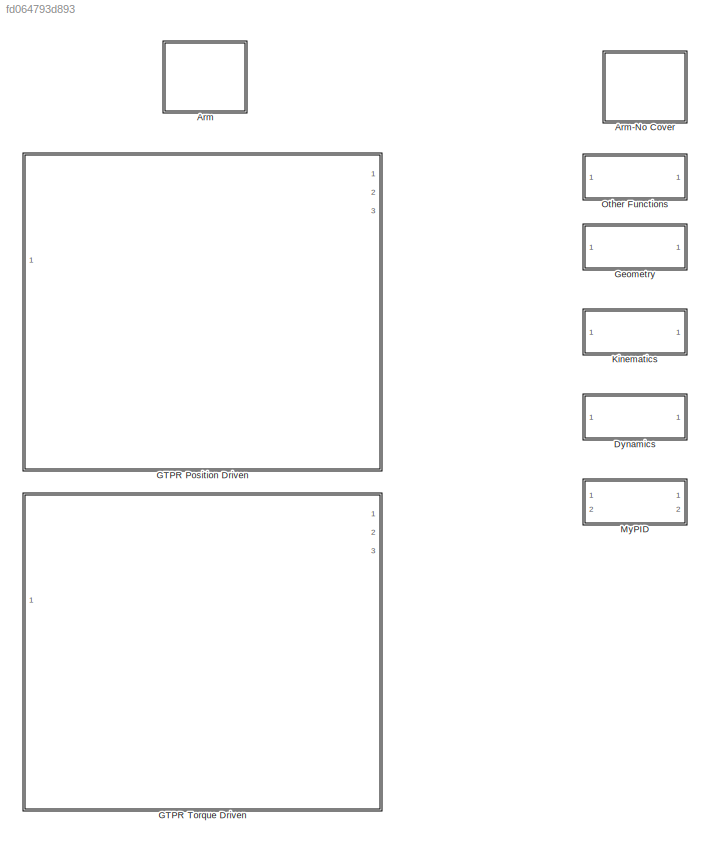
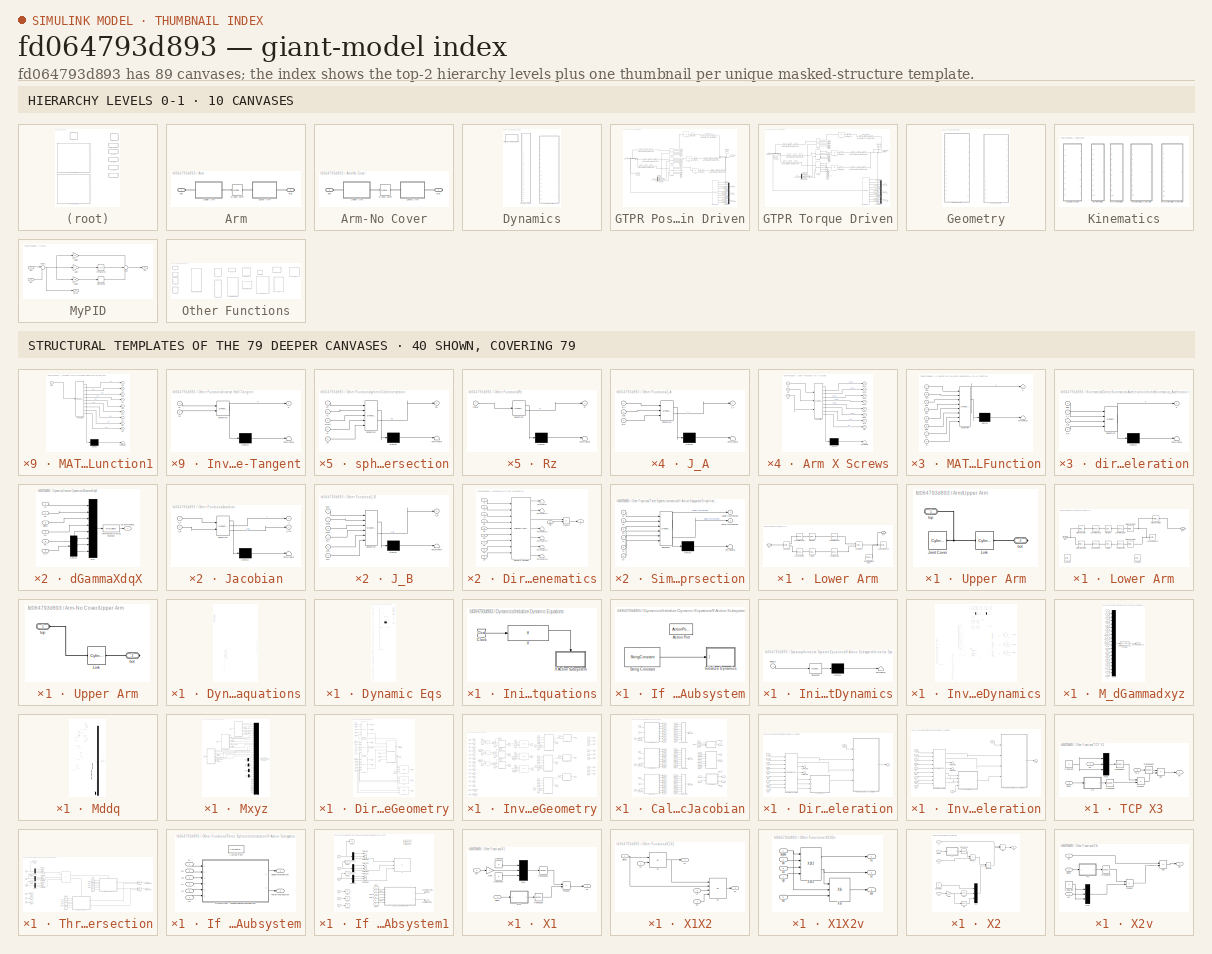
[diagram: thumbnail index - top-2 hierarchy levels (10 canvases) + 40 structural-template representatives of the remaining 79 canvases]
MODEL slx_fd064793d893
KIND library
CONFIG AbsTol = auto
CONFIG EnableMultiTasking = off
CONFIG FixedStep = auto
CONFIG MaxStep = auto
CONFIG MinStep = auto
CONFIG RelTol = 1e-3
CONFIG SampleTimeConstraint = Unconstrained
CONFIG SolverName = VariableStepAuto
CONFIG StartTime = 0.0
CONFIG StopTime = 10.0
BLOCK [SubSystem] Arm
  Ports = [0, 0, 0, 0, 0, 1, 1]
  RequestExecContextInheritance = off
BLOCK [SubSystem] Arm-No Cover
  Commented = on
  Ports = [0, 0, 0, 0, 0, 1, 1]
  RequestExecContextInheritance = off
BLOCK [PMIOPort] Arm-No Cover/Bot
  Port = 2
  Side = Right
BLOCK [Reference] Arm-No Cover/Elbow Joint  REF=sm_lib/Joints/Revolute Joint
  Ports = [0, 0, 0, 0, 0, 1, 1]
  SourceBlock = sm_lib/Joints/Revolute Joint
  SourceProductBaseCode = MS
  SourceType = Revolute Joint
BLOCK [SubSystem] Arm-No Cover/Lower Arm
  Ports = [0, 0, 0, 0, 0, 1, 1]
  RequestExecContextInheritance = off
BLOCK [Reference] Arm-No Cover/Lower Arm/Four Bar Joint 4  REF=sm_lib/Joints/Revolute Joint
  Ports = [0, 0, 0, 0, 0, 1, 1]
  SourceBlock = sm_lib/Joints/Revolute Joint
  SourceProductBaseCode = MS
  SourceType = Revolute Joint
BLOCK [Reference] Arm-No Cover/Lower Arm/Left Link  REF=sm_lib/Body Elements/Cylindrical Solid
  Ports = [0, 0, 0, 0, 0, 1, 1]
  SourceBlock = sm_lib/Body Elements/Cylindrical Solid
  SourceProductBaseCode = MS
  SourceType = Cylindrical Solid
BLOCK [Reference] Arm-No Cover/Lower Arm/Lower Joint Cover  REF=sm_lib/Body Elements/Cylindrical Solid
  Commented = on
  Ports = [0, 0, 0, 0, 0, 0, 1]
  SourceBlock = sm_lib/Body Elements/Cylindrical Solid
  SourceProductBaseCode = MS
  SourceType = Cylindrical Solid
BLOCK [Reference] Arm-No Cover/Lower Arm/Lower Link  REF=sm_lib/Body Elements/Cylindrical Solid
  Commented = on
  Ports = [0, 0, 0, 0, 0, 2, 1]
  SourceBlock = sm_lib/Body Elements/Cylindrical Solid
  SourceProductBaseCode = MS
  SourceType = Cylindrical Solid
BLOCK [Reference] Arm-No Cover/Lower Arm/Lower Right Joint  REF=sm_lib/Joints/Revolute Joint
  Ports = [0, 0, 0, 0, 0, 1, 1]
  SourceBlock = sm_lib/Joints/Revolute Joint
  SourceProductBaseCode = MS
  SourceType = Revolute Joint
BLOCK [Reference] Arm-No Cover/Lower Arm/Right Link  REF=sm_lib/Body Elements/Cylindrical Solid
  Ports = [0, 0, 0, 0, 0, 1, 1]
  SourceBlock = sm_lib/Body Elements/Cylindrical Solid
  SourceProductBaseCode = MS
  SourceType = Cylindrical Solid
BLOCK [Reference] Arm-No Cover/Lower Arm/Rigid Transform  REF=sm_lib/Frames and
Transforms/Rigid
Transform
  Ports = [0, 0, 0, 0, 0, 1, 1]
  SourceBlock = sm_lib/Frames and\nTransforms/Rigid\nTransform
  SourceProductBaseCode = MS
  SourceType = Rigid\nTransform
BLOCK [Reference] Arm-No Cover/Lower Arm/Rigid Transform1  REF=sm_lib/Frames and
Transforms/Rigid
Transform
  Ports = [0, 0, 0, 0, 0, 1, 1]
  SourceBlock = sm_lib/Frames and\nTransforms/Rigid\nTransform
  SourceProductBaseCode = MS
  SourceType = Rigid\nTransform
BLOCK [Reference] Arm-No Cover/Lower Arm/Rigid Transform2  REF=sm_lib/Frames and
Transforms/Rigid
Transform
  Ports = [0, 0, 0, 0, 0, 1, 1]
  SourceBlock = sm_lib/Frames and\nTransforms/Rigid\nTransform
  SourceProductBaseCode = MS
  SourceType = Rigid\nTransform
BLOCK [Reference] Arm-No Cover/Lower Arm/Rigid Transform3  REF=sm_lib/Frames and
Transforms/Rigid
Transform
  Ports = [0, 0, 0, 0, 0, 1, 1]
  SourceBlock = sm_lib/Frames and\nTransforms/Rigid\nTransform
  SourceProductBaseCode = MS
  SourceType = Rigid\nTransform
BLOCK [Reference] Arm-No Cover/Lower Arm/Rigid Transform4  REF=sm_lib/Frames and
Transforms/Rigid
Transform
  Ports = [0, 0, 0, 0, 0, 1, 1]
  SourceBlock = sm_lib/Frames and\nTransforms/Rigid\nTransform
  SourceProductBaseCode = MS
  SourceType = Rigid\nTransform
BLOCK [Reference] Arm-No Cover/Lower Arm/Upper Left Joint  REF=sm_lib/Joints/Revolute Joint
  Ports = [0, 0, 0, 0, 0, 1, 1]
  SourceBlock = sm_lib/Joints/Revolute Joint
  SourceProductBaseCode = MS
  SourceType = Revolute Joint
BLOCK [Reference] Arm-No Cover/Lower Arm/Upper Link  REF=sm_lib/Body Elements/Cylindrical Solid
  Commented = on
  Ports = [0, 0, 0, 0, 0, 2, 1]
  SourceBlock = sm_lib/Body Elements/Cylindrical Solid
  SourceProductBaseCode = MS
  SourceType = Cylindrical Solid
BLOCK [Reference] Arm-No Cover/Lower Arm/Upper Right Joint  REF=sm_lib/Joints/Revolute Joint
  Ports = [0, 0, 0, 0, 0, 1, 1]
  SourceBlock = sm_lib/Joints/Revolute Joint
  SourceProductBaseCode = MS
  SourceType = Revolute Joint
BLOCK [PMIOPort] Arm-No Cover/Lower Arm/bot
  Side = Right
BLOCK [PMIOPort] Arm-No Cover/Lower Arm/top
  Port = 2
  Side = Left
BLOCK [PMIOPort] Arm-No Cover/Top
  Side = Left
BLOCK [SubSystem] Arm-No Cover/Upper Arm
  Ports = [0, 0, 0, 0, 0, 1, 1]
  RequestExecContextInheritance = off
BLOCK [Reference] Arm-No Cover/Upper Arm/ Link  REF=sm_lib/Body Elements/Cylindrical Solid
  Ports = [0, 0, 0, 0, 0, 1, 1]
  SourceBlock = sm_lib/Body Elements/Cylindrical Solid
  SourceProductBaseCode = MS
  SourceType = Cylindrical Solid
BLOCK [PMIOPort] Arm-No Cover/Upper Arm/bot
  Port = 2
  Side = Right
BLOCK [PMIOPort] Arm-No Cover/Upper Arm/top
  Side = Left
BLOCK [PMIOPort] Arm/Bot
  Port = 2
  Side = Right
BLOCK [Reference] Arm/Elbow Joint  REF=sm_lib/Joints/Revolute Joint
  Ports = [0, 0, 0, 0, 0, 1, 1]
  SourceBlock = sm_lib/Joints/Revolute Joint
  SourceProductBaseCode = MS
  SourceType = Revolute Joint
BLOCK [SubSystem] Arm/Lower Arm
  Ports = [0, 0, 0, 0, 0, 1, 1]
  RequestExecContextInheritance = off
BLOCK [Reference] Arm/Lower Arm/Four Bar Joint 4  REF=sm_lib/Joints/Revolute Joint
  Ports = [0, 0, 0, 0, 0, 1, 1]
  SourceBlock = sm_lib/Joints/Revolute Joint
  SourceProductBaseCode = MS
  SourceType = Revolute Joint
BLOCK [Reference] Arm/Lower Arm/General Variable Mass  REF=sm_lib/Body Elements/Variable Mass/General
Variable Mass
  Ports = [0, 0, 0, 0, 0, 0, 1]
  SourceBlock = sm_lib/Body Elements/Variable Mass/General\nVariable Mass
  SourceProductBaseCode = MS
  SourceType = General\nVariable Mass
BLOCK [Reference] Arm/Lower Arm/Left Link  REF=sm_lib/Body Elements/Cylindrical Solid
  Ports = [0, 0, 0, 0, 0, 1, 1]
  SourceBlock = sm_lib/Body Elements/Cylindrical Solid
  SourceProductBaseCode = MS
  SourceType = Cylindrical Solid
BLOCK [Reference] Arm/Lower Arm/Lower Joint Cover  REF=sm_lib/Body Elements/Cylindrical Solid
  Ports = [0, 0, 0, 0, 0, 0, 1]
  SourceBlock = sm_lib/Body Elements/Cylindrical Solid
  SourceProductBaseCode = MS
  SourceType = Cylindrical Solid
BLOCK [Reference] Arm/Lower Arm/Lower Link  REF=sm_lib/Body Elements/Cylindrical Solid
  Ports = [0, 0, 0, 0, 0, 2, 1]
  SourceBlock = sm_lib/Body Elements/Cylindrical Solid
  SourceProductBaseCode = MS
  SourceType = Cylindrical Solid
BLOCK [Reference] Arm/Lower Arm/Lower Right Joint  REF=sm_lib/Joints/Revolute Joint
  Ports = [0, 0, 0, 0, 0, 1, 1]
  SourceBlock = sm_lib/Joints/Revolute Joint
  SourceProductBaseCode = MS
  SourceType = Revolute Joint
BLOCK [Reference] Arm/Lower Arm/Right Link  REF=sm_lib/Body Elements/Cylindrical Solid
  Ports = [0, 0, 0, 0, 0, 1, 1]
  SourceBlock = sm_lib/Body Elements/Cylindrical Solid
  SourceProductBaseCode = MS
  SourceType = Cylindrical Solid
BLOCK [Reference] Arm/Lower Arm/Upper Left Joint  REF=sm_lib/Joints/Revolute Joint
  Ports = [0, 0, 0, 0, 0, 1, 1]
  SourceBlock = sm_lib/Joints/Revolute Joint
  SourceProductBaseCode = MS
  SourceType = Revolute Joint
BLOCK [Reference] Arm/Lower Arm/Upper Link  REF=sm_lib/Body Elements/Cylindrical Solid
  Ports = [0, 0, 0, 0, 0, 2, 1]
  SourceBlock = sm_lib/Body Elements/Cylindrical Solid
  SourceProductBaseCode = MS
  SourceType = Cylindrical Solid
BLOCK [Reference] Arm/Lower Arm/Upper Right Joint  REF=sm_lib/Joints/Revolute Joint
  Ports = [0, 0, 0, 0, 0, 1, 1]
  SourceBlock = sm_lib/Joints/Revolute Joint
  SourceProductBaseCode = MS
  SourceType = Revolute Joint
BLOCK [PMIOPort] Arm/Lower Arm/bot
  Side = Right
BLOCK [PMIOPort] Arm/Lower Arm/top
  Port = 2
  Side = Left
BLOCK [PMIOPort] Arm/Top
  Side = Left
BLOCK [SubSystem] Arm/Upper Arm
  Ports = [0, 0, 0, 0, 0, 1, 1]
  RequestExecContextInheritance = off
BLOCK [Reference] Arm/Upper Arm/ Link  REF=sm_lib/Body Elements/Cylindrical Solid
  Ports = [0, 0, 0, 0, 0, 1, 1]
  SourceBlock = sm_lib/Body Elements/Cylindrical Solid
  SourceProductBaseCode = MS
  SourceType = Cylindrical Solid
BLOCK [Reference] Arm/Upper Arm/Joint Cover  REF=sm_lib/Body Elements/Cylindrical Solid
  Ports = [0, 0, 0, 0, 0, 0, 1]
  SourceBlock = sm_lib/Body Elements/Cylindrical Solid
  SourceProductBaseCode = MS
  SourceType = Cylindrical Solid
BLOCK [PMIOPort] Arm/Upper Arm/bot
  Port = 2
  Side = Right
BLOCK [PMIOPort] Arm/Upper Arm/top
  Side = Left
BLOCK [SubSystem] Dynamics
  Ports = []
  RequestExecContextInheritance = off
BLOCK [SubSystem] Dynamics/DynamicEquations
  Ports = [16, 8]
  RequestExecContextInheritance = off
BLOCK [Constant] Dynamics/DynamicEquations/Constant
  SampleTime = -1
  Value = aA
BLOCK [Constant] Dynamics/DynamicEquations/Constant1
  SampleTime = -1
  Value = aB
BLOCK [Constant] Dynamics/DynamicEquations/Constant10
  SampleTime = -1
  Value = lC
BLOCK [Constant] Dynamics/DynamicEquations/Constant11
  SampleTime = -1
  Value = eA
BLOCK [Constant] Dynamics/DynamicEquations/Constant12
  SampleTime = -1
  Value = eB
BLOCK [Constant] Dynamics/DynamicEquations/Constant13
  SampleTime = -1
  Value = eC
BLOCK [Constant] Dynamics/DynamicEquations/Constant14
  SampleTime = -1
  Value = ILAu
BLOCK [Constant] Dynamics/DynamicEquations/Constant15
  SampleTime = -1
  Value = ILBu
BLOCK [Constant] Dynamics/DynamicEquations/Constant16
  SampleTime = -1
  Value = ILCu
BLOCK [Constant] Dynamics/DynamicEquations/Constant17
  SampleTime = -1
  Value = IlA
BLOCK [Constant] Dynamics/DynamicEquations/Constant18
  SampleTime = -1
  Value = IlB
BLOCK [Constant] Dynamics/DynamicEquations/Constant19
  SampleTime = -1
  Value = IlC
BLOCK [Constant] Dynamics/DynamicEquations/Constant2
  SampleTime = -1
  Value = aC
BLOCK [Constant] Dynamics/DynamicEquations/Constant20
  SampleTime = -1
  Value = mLAu
BLOCK [Constant] Dynamics/DynamicEquations/Constant21
  SampleTime = -1
  Value = mLBu
BLOCK [Constant] Dynamics/DynamicEquations/Constant22
  SampleTime = -1
  Value = mLCu
BLOCK [Constant] Dynamics/DynamicEquations/Constant23
  SampleTime = -1
  Value = mlA
BLOCK [Constant] Dynamics/DynamicEquations/Constant24
  SampleTime = -1
  Value = mlB
BLOCK [Constant] Dynamics/DynamicEquations/Constant25
  SampleTime = -1
  Value = mlC
BLOCK [Constant] Dynamics/DynamicEquations/Constant26
  SampleTime = -1
  Value = mTCP
BLOCK [Constant] Dynamics/DynamicEquations/Constant27
  SampleTime = -1
  Value = g
BLOCK [Constant] Dynamics/DynamicEquations/Constant3
  SampleTime = -1
  Value = alphaAB
BLOCK [Constant] Dynamics/DynamicEquations/Constant4
  SampleTime = -1
  Value = alphaAC
BLOCK [Constant] Dynamics/DynamicEquations/Constant5
  SampleTime = -1
  Value = LAu
BLOCK [Constant] Dynamics/DynamicEquations/Constant6
  SampleTime = -1
  Value = LBu
BLOCK [Constant] Dynamics/DynamicEquations/Constant7
  SampleTime = -1
  Value = LCu
BLOCK [Constant] Dynamics/DynamicEquations/Constant8
  SampleTime = -1
  Value = lA
BLOCK [Constant] Dynamics/DynamicEquations/Constant9
  SampleTime = -1
  Value = lB
BLOCK [SubSystem] Dynamics/DynamicEquations/Dynamic Eqs
  ErrorFcn = Stateflow.Translate.translate
  PermitHierarchicalResolution = ExplicitOnly
  Ports = [44, 8]
  RequestExecContextInheritance = off
  SFBlockType = MATLAB Function
  TreatAsAtomicUnit = on
BLOCK [Demux] Dynamics/DynamicEquations/Dynamic Eqs/ Demux 
  Outputs = 1
  Ports = [1, 1]
BLOCK [S-Function] Dynamics/DynamicEquations/Dynamic Eqs/ SFunction 
  EnableBusSupport = off
  FunctionName = sf_sfun
  PortCounts = [44 9]
  Ports = [44, 9]
  SFcnIsStateOwnerBlock = off
  SFunctionDeploymentMode = off
  Tag = Stateflow S-Function 50
BLOCK [Terminator] Dynamics/DynamicEquations/Dynamic Eqs/ Terminator 
BLOCK [Inport] Dynamics/DynamicEquations/Dynamic Eqs/Fext
  Port = 34
BLOCK [Inport] Dynamics/DynamicEquations/Dynamic Eqs/ILA
  Port = 19
BLOCK [Inport] Dynamics/DynamicEquations/Dynamic Eqs/ILB
  Port = 20
BLOCK [Inport] Dynamics/DynamicEquations/Dynamic Eqs/ILC
  Port = 21
BLOCK [Inport] Dynamics/DynamicEquations/Dynamic Eqs/IlA
  Port = 22
BLOCK [Inport] Dynamics/DynamicEquations/Dynamic Eqs/IlB
  Port = 23
BLOCK [Inport] Dynamics/DynamicEquations/Dynamic Eqs/IlC
  Port = 24
BLOCK [Inport] Dynamics/DynamicEquations/Dynamic Eqs/J11
  Port = 36
BLOCK [Inport] Dynamics/DynamicEquations/Dynamic Eqs/J12
  Port = 37
BLOCK [Inport] Dynamics/DynamicEquations/Dynamic Eqs/J13
  Port = 38
BLOCK [Inport] Dynamics/DynamicEquations/Dynamic Eqs/J21
  Port = 39
BLOCK [Inport] Dynamics/DynamicEquations/Dynamic Eqs/J22
  Port = 40
BLOCK [Inport] Dynamics/DynamicEquations/Dynamic Eqs/J23
  Port = 41
BLOCK [Inport] Dynamics/DynamicEquations/Dynamic Eqs/J31
  Port = 42
BLOCK [Inport] Dynamics/DynamicEquations/Dynamic Eqs/J32
  Port = 43
BLOCK [Inport] Dynamics/DynamicEquations/Dynamic Eqs/J33
  Port = 44
BLOCK [Inport] Dynamics/DynamicEquations/Dynamic Eqs/LA
  Port = 6
BLOCK [Inport] Dynamics/DynamicEquations/Dynamic Eqs/LB
  Port = 7
BLOCK [Inport] Dynamics/DynamicEquations/Dynamic Eqs/LC
  Port = 8
BLOCK [Outport] Dynamics/DynamicEquations/Dynamic Eqs/M
  Port = 6
BLOCK [Outport] Dynamics/DynamicEquations/Dynamic Eqs/Mddq
  Port = 2
BLOCK [Outport] Dynamics/DynamicEquations/Dynamic Eqs/Mtimesddq
  Port = 5
BLOCK [Outport] Dynamics/DynamicEquations/Dynamic Eqs/Mxyz
BLOCK [Inport] Dynamics/DynamicEquations/Dynamic Eqs/TCP
  Port = 18
BLOCK [Inport] Dynamics/DynamicEquations/Dynamic Eqs/a
  Port = 25
BLOCK [Inport] Dynamics/DynamicEquations/Dynamic Eqs/aA
BLOCK [Inport] Dynamics/DynamicEquations/Dynamic Eqs/aB
  Port = 2
BLOCK [Inport] Dynamics/DynamicEquations/Dynamic Eqs/aC
  Port = 3
BLOCK [Inport] Dynamics/DynamicEquations/Dynamic Eqs/alphaAB
  Port = 4
BLOCK [Inport] Dynamics/DynamicEquations/Dynamic Eqs/alphaAC
  Port = 5
BLOCK [Outport] Dynamics/DynamicEquations/Dynamic Eqs/dGammasdq
  Port = 3
BLOCK [Inport] Dynamics/DynamicEquations/Dynamic Eqs/ddq
  Port = 17
BLOCK [Inport] Dynamics/DynamicEquations/Dynamic Eqs/dq
  Port = 16
BLOCK [Inport] Dynamics/DynamicEquations/Dynamic Eqs/eA
  Port = 12
BLOCK [Inport] Dynamics/DynamicEquations/Dynamic Eqs/eB
  Port = 13
BLOCK [Inport] Dynamics/DynamicEquations/Dynamic Eqs/eC
  Port = 14
BLOCK [Outport] Dynamics/DynamicEquations/Dynamic Eqs/f
  Port = 7
BLOCK [Inport] Dynamics/DynamicEquations/Dynamic Eqs/g
  Port = 26
BLOCK [Inport] Dynamics/DynamicEquations/Dynamic Eqs/lA
  Port = 9
BLOCK [Inport] Dynamics/DynamicEquations/Dynamic Eqs/lB
  Port = 10
BLOCK [Inport] Dynamics/DynamicEquations/Dynamic Eqs/lC
  Port = 11
BLOCK [Outport] Dynamics/DynamicEquations/Dynamic Eqs/lambda
  Port = 4
BLOCK [Inport] Dynamics/DynamicEquations/Dynamic Eqs/mLA
  Port = 27
BLOCK [Inport] Dynamics/DynamicEquations/Dynamic Eqs/mLB
  Port = 28
BLOCK [Inport] Dynamics/DynamicEquations/Dynamic Eqs/mLC
  Port = 29
BLOCK [Inport] Dynamics/DynamicEquations/Dynamic Eqs/mTCP
  Port = 33
BLOCK [Inport] Dynamics/DynamicEquations/Dynamic Eqs/mlA
  Port = 30
BLOCK [Inport] Dynamics/DynamicEquations/Dynamic Eqs/mlB
  Port = 31
BLOCK [Inport] Dynamics/DynamicEquations/Dynamic Eqs/mlC
  Port = 32
BLOCK [Inport] Dynamics/DynamicEquations/Dynamic Eqs/q
  Port = 15
BLOCK [Outport] Dynamics/DynamicEquations/Dynamic Eqs/tau
  Port = 8
BLOCK [Inport] Dynamics/DynamicEquations/Dynamic Eqs/v
  Port = 35
BLOCK [Inport] Dynamics/DynamicEquations/Fext
  Port = 6
BLOCK [Inport] Dynamics/DynamicEquations/J11
  Port = 8
BLOCK [Inport] Dynamics/DynamicEquations/J12
  Port = 9
BLOCK [Inport] Dynamics/DynamicEquations/J13
  Port = 10
BLOCK [Inport] Dynamics/DynamicEquations/J21
  Port = 11
BLOCK [Inport] Dynamics/DynamicEquations/J22
  Port = 12
BLOCK [Inport] Dynamics/DynamicEquations/J23
  Port = 13
BLOCK [Inport] Dynamics/DynamicEquations/J31
  Port = 14
BLOCK [Inport] Dynamics/DynamicEquations/J32
  Port = 15
BLOCK [Inport] Dynamics/DynamicEquations/J33
  Port = 16
BLOCK [Outport] Dynamics/DynamicEquations/M
  Port = 6
BLOCK [Outport] Dynamics/DynamicEquations/M_dGammadxyz
BLOCK [Outport] Dynamics/DynamicEquations/M_ddq
  Port = 3
BLOCK [Outport] Dynamics/DynamicEquations/Mtimesddq
  Port = 5
BLOCK [Outport] Dynamics/DynamicEquations/Mxyz
  Port = 2
BLOCK [Inport] Dynamics/DynamicEquations/TCP
  Port = 4
BLOCK [Inport] Dynamics/DynamicEquations/a
  Port = 5
BLOCK [Inport] Dynamics/DynamicEquations/ddq
  Port = 3
BLOCK [Inport] Dynamics/DynamicEquations/dq
  Port = 2
BLOCK [Outport] Dynamics/DynamicEquations/f
  Port = 7
BLOCK [Outport] Dynamics/DynamicEquations/lambda
  Port = 4
BLOCK [Inport] Dynamics/DynamicEquations/q
BLOCK [Outport] Dynamics/DynamicEquations/tau
  Port = 8
BLOCK [Inport] Dynamics/DynamicEquations/v
  Port = 7
BLOCK [SubSystem] Dynamics/Initialize Dynamic Equations
  Commented = on
  Ports = []
  RequestExecContextInheritance = off
BLOCK [Clock] Dynamics/Initialize Dynamic Equations/Clock
  Decimation = 1
BLOCK [If] Dynamics/Initialize Dynamic Equations/If
  IfExpression = u1 == 0
  Ports = [1, 2]
BLOCK [SubSystem] Dynamics/Initialize Dynamic Equations/If Action Subsystem
  Ports = [0, 0, 0, 0, 0, 0, 0, 1]
  RequestExecContextInheritance = off
  TreatAsAtomicUnit = on
BLOCK [ActionPort] Dynamics/Initialize Dynamic Equations/If Action Subsystem/Action Port
  ActionPortLabel = if(u1 == 0)
BLOCK [SubSystem] Dynamics/Initialize Dynamic Equations/If Action Subsystem/Initialize Dynamics
  ErrorFcn = Stateflow.Translate.translate
  PermitHierarchicalResolution = ExplicitOnly
  Ports = [1]
  RequestExecContextInheritance = off
  SFBlockType = MATLAB Function
  TreatAsAtomicUnit = on
BLOCK [Demux] Dynamics/Initialize Dynamic Equations/If Action Subsystem/Initialize Dynamics/ Demux 
  Outputs = 1
  Ports = [1, 1]
BLOCK [S-Function] Dynamics/Initialize Dynamic Equations/If Action Subsystem/Initialize Dynamics/ SFunction 
  EnableBusSupport = off
  FunctionName = sf_sfun
  PortCounts = [1 1]
  Ports = [1, 1]
  SFcnIsStateOwnerBlock = off
  SFunctionDeploymentMode = off
  Tag = Stateflow S-Function 35
BLOCK [Terminator] Dynamics/Initialize Dynamic Equations/If Action Subsystem/Initialize Dynamics/ Terminator 
BLOCK [Inport] Dynamics/Initialize Dynamic Equations/If Action Subsystem/Initialize Dynamics/filepath
BLOCK [StringConstant] Dynamics/Initialize Dynamic Equations/If Action Subsystem/String Constant
  String = filepath
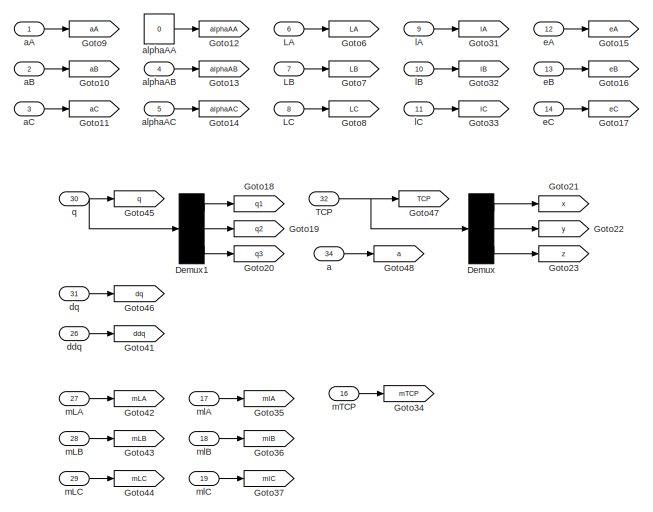
[diagram: Dynamics/Inverse Dynamics - part 1/5, top center region]
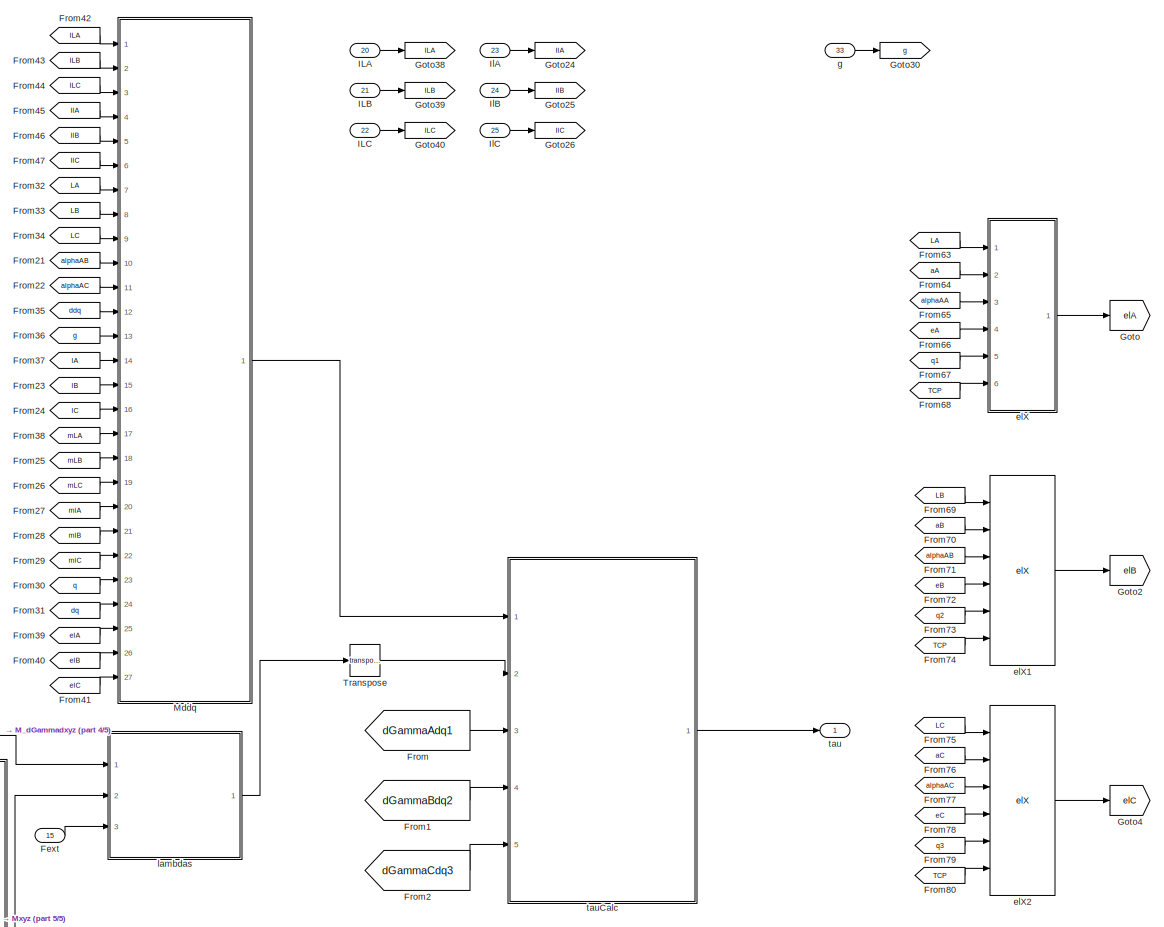
[diagram: Dynamics/Inverse Dynamics - part 2/5, central region]
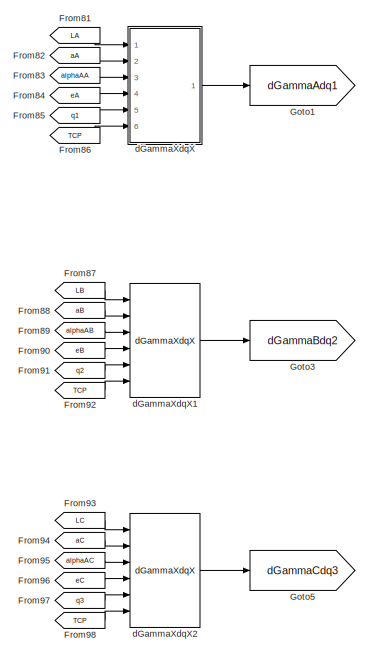
[diagram: Dynamics/Inverse Dynamics - part 3/5, middle right region]
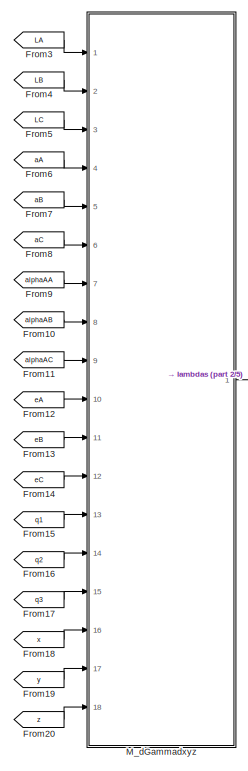
[diagram: Dynamics/Inverse Dynamics - part 4/5, middle left region]
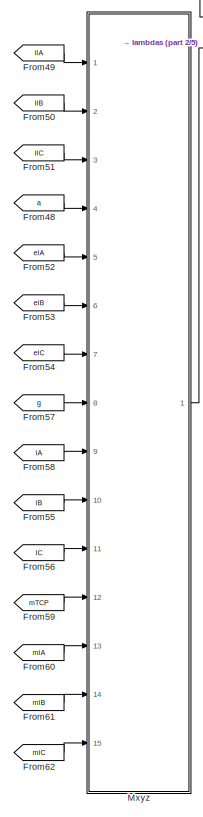
[diagram: Dynamics/Inverse Dynamics - part 5/5, bottom left region]
BLOCK [SubSystem] Dynamics/Inverse Dynamics
  Commented = on
  Ports = [34, 1]
  RequestExecContextInheritance = off
BLOCK [Demux] Dynamics/Inverse Dynamics/Demux
  Outputs = 3
  Ports = [1, 3]
BLOCK [Demux] Dynamics/Inverse Dynamics/Demux1
  Outputs = 3
  Ports = [1, 3]
BLOCK [Inport] Dynamics/Inverse Dynamics/Fext
  Port = 15
BLOCK [From] Dynamics/Inverse Dynamics/From
  GotoTag = dGammaAdq1
BLOCK [From] Dynamics/Inverse Dynamics/From1
  GotoTag = dGammaBdq2
BLOCK [From] Dynamics/Inverse Dynamics/From10
  GotoTag = alphaAB
BLOCK [From] Dynamics/Inverse Dynamics/From11
  GotoTag = alphaAC
BLOCK [From] Dynamics/Inverse Dynamics/From12
  GotoTag = eA
BLOCK [From] Dynamics/Inverse Dynamics/From13
  GotoTag = eB
BLOCK [From] Dynamics/Inverse Dynamics/From14
  GotoTag = eC
BLOCK [From] Dynamics/Inverse Dynamics/From15
  GotoTag = q1
BLOCK [From] Dynamics/Inverse Dynamics/From16
  GotoTag = q2
BLOCK [From] Dynamics/Inverse Dynamics/From17
  GotoTag = q3
BLOCK [From] Dynamics/Inverse Dynamics/From18
  GotoTag = x
BLOCK [From] Dynamics/Inverse Dynamics/From19
  GotoTag = y
BLOCK [From] Dynamics/Inverse Dynamics/From2
  GotoTag = dGammaCdq3
BLOCK [From] Dynamics/Inverse Dynamics/From20
  GotoTag = z
BLOCK [From] Dynamics/Inverse Dynamics/From21
  GotoTag = alphaAB
BLOCK [From] Dynamics/Inverse Dynamics/From22
  GotoTag = alphaAC
BLOCK [From] Dynamics/Inverse Dynamics/From23
  GotoTag = lB
BLOCK [From] Dynamics/Inverse Dynamics/From24
  GotoTag = lC
BLOCK [From] Dynamics/Inverse Dynamics/From25
  GotoTag = mLB
BLOCK [From] Dynamics/Inverse Dynamics/From26
  GotoTag = mLC
BLOCK [From] Dynamics/Inverse Dynamics/From27
  GotoTag = mlA
BLOCK [From] Dynamics/Inverse Dynamics/From28
  GotoTag = mlB
BLOCK [From] Dynamics/Inverse Dynamics/From29
  GotoTag = mlC
BLOCK [From] Dynamics/Inverse Dynamics/From3
  GotoTag = LA
BLOCK [From] Dynamics/Inverse Dynamics/From30
  GotoTag = q
BLOCK [From] Dynamics/Inverse Dynamics/From31
  GotoTag = dq
BLOCK [From] Dynamics/Inverse Dynamics/From32
  GotoTag = LA
BLOCK [From] Dynamics/Inverse Dynamics/From33
  GotoTag = LB
BLOCK [From] Dynamics/Inverse Dynamics/From34
  GotoTag = LC
BLOCK [From] Dynamics/Inverse Dynamics/From35
  GotoTag = ddq
BLOCK [From] Dynamics/Inverse Dynamics/From36
  GotoTag = g
BLOCK [From] Dynamics/Inverse Dynamics/From37
  GotoTag = lA
BLOCK [From] Dynamics/Inverse Dynamics/From38
  GotoTag = mLA
BLOCK [From] Dynamics/Inverse Dynamics/From39
  GotoTag = elA
BLOCK [From] Dynamics/Inverse Dynamics/From4
  GotoTag = LB
BLOCK [From] Dynamics/Inverse Dynamics/From40
  GotoTag = elB
BLOCK [From] Dynamics/Inverse Dynamics/From41
  GotoTag = elC
BLOCK [From] Dynamics/Inverse Dynamics/From42
  GotoTag = ILA
BLOCK [From] Dynamics/Inverse Dynamics/From43
  GotoTag = ILB
BLOCK [From] Dynamics/Inverse Dynamics/From44
  GotoTag = ILC
BLOCK [From] Dynamics/Inverse Dynamics/From45
  GotoTag = IlA
BLOCK [From] Dynamics/Inverse Dynamics/From46
  GotoTag = IlB
BLOCK [From] Dynamics/Inverse Dynamics/From47
  GotoTag = IlC
BLOCK [From] Dynamics/Inverse Dynamics/From48
  GotoTag = a
BLOCK [From] Dynamics/Inverse Dynamics/From49
  GotoTag = IlA
BLOCK [From] Dynamics/Inverse Dynamics/From5
  GotoTag = LC
BLOCK [From] Dynamics/Inverse Dynamics/From50
  GotoTag = IlB
BLOCK [From] Dynamics/Inverse Dynamics/From51
  GotoTag = IlC
BLOCK [From] Dynamics/Inverse Dynamics/From52
  GotoTag = elA
BLOCK [From] Dynamics/Inverse Dynamics/From53
  GotoTag = elB
BLOCK [From] Dynamics/Inverse Dynamics/From54
  GotoTag = elC
BLOCK [From] Dynamics/Inverse Dynamics/From55
  GotoTag = lB
BLOCK [From] Dynamics/Inverse Dynamics/From56
  GotoTag = lC
BLOCK [From] Dynamics/Inverse Dynamics/From57
  GotoTag = g
BLOCK [From] Dynamics/Inverse Dynamics/From58
  GotoTag = lA
BLOCK [From] Dynamics/Inverse Dynamics/From59
  GotoTag = mTCP
BLOCK [From] Dynamics/Inverse Dynamics/From6
  GotoTag = aA
BLOCK [From] Dynamics/Inverse Dynamics/From60
  GotoTag = mlA
BLOCK [From] Dynamics/Inverse Dynamics/From61
  GotoTag = mlB
BLOCK [From] Dynamics/Inverse Dynamics/From62
  GotoTag = mlC
BLOCK [From] Dynamics/Inverse Dynamics/From63
  GotoTag = LA
BLOCK [From] Dynamics/Inverse Dynamics/From64
  GotoTag = aA
BLOCK [From] Dynamics/Inverse Dynamics/From65
  GotoTag = alphaAA
BLOCK [From] Dynamics/Inverse Dynamics/From66
  GotoTag = eA
BLOCK [From] Dynamics/Inverse Dynamics/From67
  GotoTag = q1
BLOCK [From] Dynamics/Inverse Dynamics/From68
  GotoTag = TCP
BLOCK [From] Dynamics/Inverse Dynamics/From69
  GotoTag = LB
BLOCK [From] Dynamics/Inverse Dynamics/From7
  GotoTag = aB
BLOCK [From] Dynamics/Inverse Dynamics/From70
  GotoTag = aB
BLOCK [From] Dynamics/Inverse Dynamics/From71
  GotoTag = alphaAB
BLOCK [From] Dynamics/Inverse Dynamics/From72
  GotoTag = eB
BLOCK [From] Dynamics/Inverse Dynamics/From73
  GotoTag = q2
BLOCK [From] Dynamics/Inverse Dynamics/From74
  GotoTag = TCP
BLOCK [From] Dynamics/Inverse Dynamics/From75
  GotoTag = LC
BLOCK [From] Dynamics/Inverse Dynamics/From76
  GotoTag = aC
BLOCK [From] Dynamics/Inverse Dynamics/From77
  GotoTag = alphaAC
BLOCK [From] Dynamics/Inverse Dynamics/From78
  GotoTag = eC
BLOCK [From] Dynamics/Inverse Dynamics/From79
  GotoTag = q3
BLOCK [From] Dynamics/Inverse Dynamics/From8
  GotoTag = aC
BLOCK [From] Dynamics/Inverse Dynamics/From80
  GotoTag = TCP
BLOCK [From] Dynamics/Inverse Dynamics/From81
  GotoTag = LA
BLOCK [From] Dynamics/Inverse Dynamics/From82
  GotoTag = aA
BLOCK [From] Dynamics/Inverse Dynamics/From83
  GotoTag = alphaAA
BLOCK [From] Dynamics/Inverse Dynamics/From84
  GotoTag = eA
BLOCK [From] Dynamics/Inverse Dynamics/From85
  GotoTag = q1
BLOCK [From] Dynamics/Inverse Dynamics/From86
  GotoTag = TCP
BLOCK [From] Dynamics/Inverse Dynamics/From87
  GotoTag = LB
BLOCK [From] Dynamics/Inverse Dynamics/From88
  GotoTag = aB
BLOCK [From] Dynamics/Inverse Dynamics/From89
  GotoTag = alphaAB
BLOCK [From] Dynamics/Inverse Dynamics/From9
  GotoTag = alphaAA
BLOCK [From] Dynamics/Inverse Dynamics/From90
  GotoTag = eB
BLOCK [From] Dynamics/Inverse Dynamics/From91
  GotoTag = q2
BLOCK [From] Dynamics/Inverse Dynamics/From92
  GotoTag = TCP
BLOCK [From] Dynamics/Inverse Dynamics/From93
  GotoTag = LC
BLOCK [From] Dynamics/Inverse Dynamics/From94
  GotoTag = aC
BLOCK [From] Dynamics/Inverse Dynamics/From95
  GotoTag = alphaAC
BLOCK [From] Dynamics/Inverse Dynamics/From96
  GotoTag = eC
BLOCK [From] Dynamics/Inverse Dynamics/From97
  GotoTag = q3
BLOCK [From] Dynamics/Inverse Dynamics/From98
  GotoTag = TCP
BLOCK [Goto] Dynamics/Inverse Dynamics/Goto
  GotoTag = elA
BLOCK [Goto] Dynamics/Inverse Dynamics/Goto1
  GotoTag = dGammaAdq1
BLOCK [Goto] Dynamics/Inverse Dynamics/Goto10
  GotoTag = aB
BLOCK [Goto] Dynamics/Inverse Dynamics/Goto11
  GotoTag = aC
BLOCK [Goto] Dynamics/Inverse Dynamics/Goto12
  GotoTag = alphaAA
BLOCK [Goto] Dynamics/Inverse Dynamics/Goto13
  GotoTag = alphaAB
BLOCK [Goto] Dynamics/Inverse Dynamics/Goto14
  GotoTag = alphaAC
BLOCK [Goto] Dynamics/Inverse Dynamics/Goto15
  GotoTag = eA
BLOCK [Goto] Dynamics/Inverse Dynamics/Goto16
  GotoTag = eB
BLOCK [Goto] Dynamics/Inverse Dynamics/Goto17
  GotoTag = eC
BLOCK [Goto] Dynamics/Inverse Dynamics/Goto18
  GotoTag = q1
BLOCK [Goto] Dynamics/Inverse Dynamics/Goto19
  GotoTag = q2
BLOCK [Goto] Dynamics/Inverse Dynamics/Goto2
  GotoTag = elB
BLOCK [Goto] Dynamics/Inverse Dynamics/Goto20
  GotoTag = q3
BLOCK [Goto] Dynamics/Inverse Dynamics/Goto21
  GotoTag = x
BLOCK [Goto] Dynamics/Inverse Dynamics/Goto22
  GotoTag = y
BLOCK [Goto] Dynamics/Inverse Dynamics/Goto23
  GotoTag = z
BLOCK [Goto] Dynamics/Inverse Dynamics/Goto24
  GotoTag = IlA
BLOCK [Goto] Dynamics/Inverse Dynamics/Goto25
  GotoTag = IlB
BLOCK [Goto] Dynamics/Inverse Dynamics/Goto26
  GotoTag = IlC
BLOCK [Goto] Dynamics/Inverse Dynamics/Goto3
  GotoTag = dGammaBdq2
BLOCK [Goto] Dynamics/Inverse Dynamics/Goto30
  GotoTag = g
BLOCK [Goto] Dynamics/Inverse Dynamics/Goto31
  GotoTag = lA
BLOCK [Goto] Dynamics/Inverse Dynamics/Goto32
  GotoTag = lB
BLOCK [Goto] Dynamics/Inverse Dynamics/Goto33
  GotoTag = lC
BLOCK [Goto] Dynamics/Inverse Dynamics/Goto34
  GotoTag = mTCP
BLOCK [Goto] Dynamics/Inverse Dynamics/Goto35
  GotoTag = mlA
BLOCK [Goto] Dynamics/Inverse Dynamics/Goto36
  GotoTag = mlB
BLOCK [Goto] Dynamics/Inverse Dynamics/Goto37
  GotoTag = mlC
BLOCK [Goto] Dynamics/Inverse Dynamics/Goto38
  GotoTag = ILA
BLOCK [Goto] Dynamics/Inverse Dynamics/Goto39
  GotoTag = ILB
BLOCK [Goto] Dynamics/Inverse Dynamics/Goto4
  GotoTag = elC
BLOCK [Goto] Dynamics/Inverse Dynamics/Goto40
  GotoTag = ILC
BLOCK [Goto] Dynamics/Inverse Dynamics/Goto41
  GotoTag = ddq
BLOCK [Goto] Dynamics/Inverse Dynamics/Goto42
  GotoTag = mLA
BLOCK [Goto] Dynamics/Inverse Dynamics/Goto43
  GotoTag = mLB
BLOCK [Goto] Dynamics/Inverse Dynamics/Goto44
  GotoTag = mLC
BLOCK [Goto] Dynamics/Inverse Dynamics/Goto45
  GotoTag = q
BLOCK [Goto] Dynamics/Inverse Dynamics/Goto46
  GotoTag = dq
BLOCK [Goto] Dynamics/Inverse Dynamics/Goto47
  GotoTag = TCP
BLOCK [Goto] Dynamics/Inverse Dynamics/Goto48
  GotoTag = a
BLOCK [Goto] Dynamics/Inverse Dynamics/Goto5
  GotoTag = dGammaCdq3
BLOCK [Goto] Dynamics/Inverse Dynamics/Goto6
  GotoTag = LA
BLOCK [Goto] Dynamics/Inverse Dynamics/Goto7
  GotoTag = LB
BLOCK [Goto] Dynamics/Inverse Dynamics/Goto8
  GotoTag = LC
BLOCK [Goto] Dynamics/Inverse Dynamics/Goto9
  GotoTag = aA
BLOCK [Inport] Dynamics/Inverse Dynamics/ILA
  Port = 20
BLOCK [Inport] Dynamics/Inverse Dynamics/ILB
  Port = 21
BLOCK [Inport] Dynamics/Inverse Dynamics/ILC
  Port = 22
BLOCK [Inport] Dynamics/Inverse Dynamics/IlA
  Port = 23
BLOCK [Inport] Dynamics/Inverse Dynamics/IlB
  Port = 24
BLOCK [Inport] Dynamics/Inverse Dynamics/IlC
  Port = 25
BLOCK [Inport] Dynamics/Inverse Dynamics/LA
  Port = 6
BLOCK [Inport] Dynamics/Inverse Dynamics/LB
  Port = 7
BLOCK [Inport] Dynamics/Inverse Dynamics/LC
  Port = 8
BLOCK [SubSystem] Dynamics/Inverse Dynamics/M_dGammadxyz
  Ports = [18, 1]
  RequestExecContextInheritance = off
BLOCK [MATLABFcn] Dynamics/Inverse Dynamics/M_dGammadxyz/Interpreted MATLAB Function
  MATLABFcn = obj.M_dGammadxyzf
  Ports = [1, 1]
BLOCK [Inport] Dynamics/Inverse Dynamics/M_dGammadxyz/LA
BLOCK [Inport] Dynamics/Inverse Dynamics/M_dGammadxyz/LB
  Port = 2
BLOCK [Inport] Dynamics/Inverse Dynamics/M_dGammadxyz/LC
  Port = 3
BLOCK [Outport] Dynamics/Inverse Dynamics/M_dGammadxyz/M_dGammadxyz
BLOCK [Mux] Dynamics/Inverse Dynamics/M_dGammadxyz/Mux
  DisplayOption = bar
  Inputs = 18
  Ports = [18, 1]
BLOCK [Inport] Dynamics/Inverse Dynamics/M_dGammadxyz/aA
  Port = 4
BLOCK [Inport] Dynamics/Inverse Dynamics/M_dGammadxyz/aB
  Port = 5
BLOCK [Inport] Dynamics/Inverse Dynamics/M_dGammadxyz/aC
  Port = 6
BLOCK [Inport] Dynamics/Inverse Dynamics/M_dGammadxyz/alphaAA
  Port = 7
BLOCK [Inport] Dynamics/Inverse Dynamics/M_dGammadxyz/alphaAB
  Port = 8
BLOCK [Inport] Dynamics/Inverse Dynamics/M_dGammadxyz/alphaAC
  Port = 9
BLOCK [Inport] Dynamics/Inverse Dynamics/M_dGammadxyz/eA
  Port = 10
BLOCK [Inport] Dynamics/Inverse Dynamics/M_dGammadxyz/eB
  Port = 11
BLOCK [Inport] Dynamics/Inverse Dynamics/M_dGammadxyz/eC
  Port = 12
BLOCK [Inport] Dynamics/Inverse Dynamics/M_dGammadxyz/q1
  Port = 13
BLOCK [Inport] Dynamics/Inverse Dynamics/M_dGammadxyz/q2
  Port = 14
BLOCK [Inport] Dynamics/Inverse Dynamics/M_dGammadxyz/q3
  Port = 15
BLOCK [Inport] Dynamics/Inverse Dynamics/M_dGammadxyz/x
  Port = 16
BLOCK [Inport] Dynamics/Inverse Dynamics/M_dGammadxyz/y
  Port = 17
BLOCK [Inport] Dynamics/Inverse Dynamics/M_dGammadxyz/z
  Port = 18
BLOCK [SubSystem] Dynamics/Inverse Dynamics/Mddq
  Ports = [27, 1]
  RequestExecContextInheritance = off
BLOCK [Constant] Dynamics/Inverse Dynamics/Mddq/Constant
  Value = 0
BLOCK [Constant] Dynamics/Inverse Dynamics/Mddq/Constant1
  Value = pi
BLOCK [Demux] Dynamics/Inverse Dynamics/Mddq/Demux10
  Outputs = 3
  Ports = [1, 3]
BLOCK [Demux] Dynamics/Inverse Dynamics/Mddq/Demux11
  Outputs = 3
  Ports = [1, 3]
BLOCK [Demux] Dynamics/Inverse Dynamics/Mddq/Demux6
  Outputs = 3
  Ports = [1, 3]
BLOCK [Demux] Dynamics/Inverse Dynamics/Mddq/Demux7
  Outputs = 3
  Ports = [1, 3]
BLOCK [Demux] Dynamics/Inverse Dynamics/Mddq/Demux8
  Outputs = 3
  Ports = [1, 3]
BLOCK [Demux] Dynamics/Inverse Dynamics/Mddq/Demux9
  Outputs = 3
  Ports = [1, 3]
BLOCK [Inport] Dynamics/Inverse Dynamics/Mddq/ILA
BLOCK [Inport] Dynamics/Inverse Dynamics/Mddq/ILB
  Port = 2
BLOCK [Inport] Dynamics/Inverse Dynamics/Mddq/ILC
  Port = 3
BLOCK [Inport] Dynamics/Inverse Dynamics/Mddq/IlA
  Port = 4
BLOCK [Inport] Dynamics/Inverse Dynamics/Mddq/IlB
  Port = 5
BLOCK [Inport] Dynamics/Inverse Dynamics/Mddq/IlC
  Port = 6
BLOCK [MATLABFcn] Dynamics/Inverse Dynamics/Mddq/Interpreted MATLAB Function
  MATLABFcn = obj.Mddqf
  Ports = [1, 1]
BLOCK [Inport] Dynamics/Inverse Dynamics/Mddq/LA
  Port = 7
BLOCK [Inport] Dynamics/Inverse Dynamics/Mddq/LB
  Port = 8
BLOCK [Inport] Dynamics/Inverse Dynamics/Mddq/LC
  Port = 9
BLOCK [SubSystem] Dynamics/Inverse Dynamics/Mddq/MATLAB Function1
  ErrorFcn = Stateflow.Translate.translate
  PermitHierarchicalResolution = ExplicitOnly
  Ports = [1, 9]
  RequestExecContextInheritance = off
  SFBlockType = MATLAB Function
  TreatAsAtomicUnit = on
BLOCK [Demux] Dynamics/Inverse Dynamics/Mddq/MATLAB Function1/ Demux 
  Outputs = 1
  Ports = [1, 1]
BLOCK [S-Function] Dynamics/Inverse Dynamics/Mddq/MATLAB Function1/ SFunction 
  EnableBusSupport = off
  FunctionName = sf_sfun
  PortCounts = [1 10]
  Ports = [1, 10]
  SFcnIsStateOwnerBlock = off
  SFunctionDeploymentMode = off
  Tag = Stateflow S-Function 39
BLOCK [Terminator] Dynamics/Inverse Dynamics/Mddq/MATLAB Function1/ Terminator 
BLOCK [Outport] Dynamics/Inverse Dynamics/Mddq/MATLAB Function1/I11
BLOCK [Outport] Dynamics/Inverse Dynamics/Mddq/MATLAB Function1/I12
  Port = 2
BLOCK [Outport] Dynamics/Inverse Dynamics/Mddq/MATLAB Function1/I13
  Port = 3
BLOCK [Outport] Dynamics/Inverse Dynamics/Mddq/MATLAB Function1/I21
  Port = 4
BLOCK [Outport] Dynamics/Inverse Dynamics/Mddq/MATLAB Function1/I22
  Port = 5
BLOCK [Outport] Dynamics/Inverse Dynamics/Mddq/MATLAB Function1/I23
  Port = 6
BLOCK [Outport] Dynamics/Inverse Dynamics/Mddq/MATLAB Function1/I31
  Port = 7
BLOCK [Outport] Dynamics/Inverse Dynamics/Mddq/MATLAB Function1/I32
  Port = 8
BLOCK [Outport] Dynamics/Inverse Dynamics/Mddq/MATLAB Function1/I33
  Port = 9
BLOCK [Inport] Dynamics/Inverse Dynamics/Mddq/MATLAB Function1/Mat
BLOCK [SubSystem] Dynamics/Inverse Dynamics/Mddq/MATLAB Function2
  ErrorFcn = Stateflow.Translate.translate
  PermitHierarchicalResolution = ExplicitOnly
  Ports = [1, 9]
  RequestExecContextInheritance = off
  SFBlockType = MATLAB Function
  TreatAsAtomicUnit = on
BLOCK [Demux] Dynamics/Inverse Dynamics/Mddq/MATLAB Function2/ Demux 
  Outputs = 1
  Ports = [1, 1]
BLOCK [S-Function] Dynamics/Inverse Dynamics/Mddq/MATLAB Function2/ SFunction 
  EnableBusSupport = off
  FunctionName = sf_sfun
  PortCounts = [1 10]
  Ports = [1, 10]
  SFcnIsStateOwnerBlock = off
  SFunctionDeploymentMode = off
  Tag = Stateflow S-Function 40
BLOCK [Terminator] Dynamics/Inverse Dynamics/Mddq/MATLAB Function2/ Terminator 
BLOCK [Outport] Dynamics/Inverse Dynamics/Mddq/MATLAB Function2/I11
BLOCK [Outport] Dynamics/Inverse Dynamics/Mddq/MATLAB Function2/I12
  Port = 2
BLOCK [Outport] Dynamics/Inverse Dynamics/Mddq/MATLAB Function2/I13
  Port = 3
BLOCK [Outport] Dynamics/Inverse Dynamics/Mddq/MATLAB Function2/I21
  Port = 4
BLOCK [Outport] Dynamics/Inverse Dynamics/Mddq/MATLAB Function2/I22
  Port = 5
BLOCK [Outport] Dynamics/Inverse Dynamics/Mddq/MATLAB Function2/I23
  Port = 6
BLOCK [Outport] Dynamics/Inverse Dynamics/Mddq/MATLAB Function2/I31
  Port = 7
BLOCK [Outport] Dynamics/Inverse Dynamics/Mddq/MATLAB Function2/I32
  Port = 8
BLOCK [Outport] Dynamics/Inverse Dynamics/Mddq/MATLAB Function2/I33
  Port = 9
BLOCK [Inport] Dynamics/Inverse Dynamics/Mddq/MATLAB Function2/Mat
BLOCK [SubSystem] Dynamics/Inverse Dynamics/Mddq/MATLAB Function3
  ErrorFcn = Stateflow.Translate.translate
  PermitHierarchicalResolution = ExplicitOnly
  Ports = [1, 9]
  RequestExecContextInheritance = off
  SFBlockType = MATLAB Function
  TreatAsAtomicUnit = on
BLOCK [Demux] Dynamics/Inverse Dynamics/Mddq/MATLAB Function3/ Demux 
  Outputs = 1
  Ports = [1, 1]
BLOCK [S-Function] Dynamics/Inverse Dynamics/Mddq/MATLAB Function3/ SFunction 
  EnableBusSupport = off
  FunctionName = sf_sfun
  PortCounts = [1 10]
  Ports = [1, 10]
  SFcnIsStateOwnerBlock = off
  SFunctionDeploymentMode = off
  Tag = Stateflow S-Function 41
BLOCK [Terminator] Dynamics/Inverse Dynamics/Mddq/MATLAB Function3/ Terminator 
BLOCK [Outport] Dynamics/Inverse Dynamics/Mddq/MATLAB Function3/I11
BLOCK [Outport] Dynamics/Inverse Dynamics/Mddq/MATLAB Function3/I12
  Port = 2
BLOCK [Outport] Dynamics/Inverse Dynamics/Mddq/MATLAB Function3/I13
  Port = 3
BLOCK [Outport] Dynamics/Inverse Dynamics/Mddq/MATLAB Function3/I21
  Port = 4
BLOCK [Outport] Dynamics/Inverse Dynamics/Mddq/MATLAB Function3/I22
  Port = 5
BLOCK [Outport] Dynamics/Inverse Dynamics/Mddq/MATLAB Function3/I23
  Port = 6
BLOCK [Outport] Dynamics/Inverse Dynamics/Mddq/MATLAB Function3/I31
  Port = 7
BLOCK [Outport] Dynamics/Inverse Dynamics/Mddq/MATLAB Function3/I32
  Port = 8
BLOCK [Outport] Dynamics/Inverse Dynamics/Mddq/MATLAB Function3/I33
  Port = 9
BLOCK [Inport] Dynamics/Inverse Dynamics/Mddq/MATLAB Function3/Mat
BLOCK [SubSystem] Dynamics/Inverse Dynamics/Mddq/MATLAB Function4
  ErrorFcn = Stateflow.Translate.translate
  PermitHierarchicalResolution = ExplicitOnly
  Ports = [1, 9]
  RequestExecContextInheritance = off
  SFBlockType = MATLAB Function
  TreatAsAtomicUnit = on
BLOCK [Demux] Dynamics/Inverse Dynamics/Mddq/MATLAB Function4/ Demux 
  Outputs = 1
  Ports = [1, 1]
BLOCK [S-Function] Dynamics/Inverse Dynamics/Mddq/MATLAB Function4/ SFunction 
  EnableBusSupport = off
  FunctionName = sf_sfun
  PortCounts = [1 10]
  Ports = [1, 10]
  SFcnIsStateOwnerBlock = off
  SFunctionDeploymentMode = off
  Tag = Stateflow S-Function 42
BLOCK [Terminator] Dynamics/Inverse Dynamics/Mddq/MATLAB Function4/ Terminator 
BLOCK [Outport] Dynamics/Inverse Dynamics/Mddq/MATLAB Function4/I11
BLOCK [Outport] Dynamics/Inverse Dynamics/Mddq/MATLAB Function4/I12
  Port = 2
BLOCK [Outport] Dynamics/Inverse Dynamics/Mddq/MATLAB Function4/I13
  Port = 3
BLOCK [Outport] Dynamics/Inverse Dynamics/Mddq/MATLAB Function4/I21
  Port = 4
BLOCK [Outport] Dynamics/Inverse Dynamics/Mddq/MATLAB Function4/I22
  Port = 5
BLOCK [Outport] Dynamics/Inverse Dynamics/Mddq/MATLAB Function4/I23
  Port = 6
BLOCK [Outport] Dynamics/Inverse Dynamics/Mddq/MATLAB Function4/I31
  Port = 7
BLOCK [Outport] Dynamics/Inverse Dynamics/Mddq/MATLAB Function4/I32
  Port = 8
BLOCK [Outport] Dynamics/Inverse Dynamics/Mddq/MATLAB Function4/I33
  Port = 9
BLOCK [Inport] Dynamics/Inverse Dynamics/Mddq/MATLAB Function4/Mat
BLOCK [SubSystem] Dynamics/Inverse Dynamics/Mddq/MATLAB Function5
  ErrorFcn = Stateflow.Translate.translate
  PermitHierarchicalResolution = ExplicitOnly
  Ports = [1, 9]
  RequestExecContextInheritance = off
  SFBlockType = MATLAB Function
  TreatAsAtomicUnit = on
BLOCK [Demux] Dynamics/Inverse Dynamics/Mddq/MATLAB Function5/ Demux 
  Outputs = 1
  Ports = [1, 1]
BLOCK [S-Function] Dynamics/Inverse Dynamics/Mddq/MATLAB Function5/ SFunction 
  EnableBusSupport = off
  FunctionName = sf_sfun
  PortCounts = [1 10]
  Ports = [1, 10]
  SFcnIsStateOwnerBlock = off
  SFunctionDeploymentMode = off
  Tag = Stateflow S-Function 43
BLOCK [Terminator] Dynamics/Inverse Dynamics/Mddq/MATLAB Function5/ Terminator 
BLOCK [Outport] Dynamics/Inverse Dynamics/Mddq/MATLAB Function5/I11
BLOCK [Outport] Dynamics/Inverse Dynamics/Mddq/MATLAB Function5/I12
  Port = 2
BLOCK [Outport] Dynamics/Inverse Dynamics/Mddq/MATLAB Function5/I13
  Port = 3
BLOCK [Outport] Dynamics/Inverse Dynamics/Mddq/MATLAB Function5/I21
  Port = 4
BLOCK [Outport] Dynamics/Inverse Dynamics/Mddq/MATLAB Function5/I22
  Port = 5
BLOCK [Outport] Dynamics/Inverse Dynamics/Mddq/MATLAB Function5/I23
  Port = 6
BLOCK [Outport] Dynamics/Inverse Dynamics/Mddq/MATLAB Function5/I31
  Port = 7
BLOCK [Outport] Dynamics/Inverse Dynamics/Mddq/MATLAB Function5/I32
  Port = 8
BLOCK [Outport] Dynamics/Inverse Dynamics/Mddq/MATLAB Function5/I33
  Port = 9
BLOCK [Inport] Dynamics/Inverse Dynamics/Mddq/MATLAB Function5/Mat
BLOCK [SubSystem] Dynamics/Inverse Dynamics/Mddq/MATLAB Function6
  ErrorFcn = Stateflow.Translate.translate
  PermitHierarchicalResolution = ExplicitOnly
  Ports = [1, 9]
  RequestExecContextInheritance = off
  SFBlockType = MATLAB Function
  TreatAsAtomicUnit = on
BLOCK [Demux] Dynamics/Inverse Dynamics/Mddq/MATLAB Function6/ Demux 
  Outputs = 1
  Ports = [1, 1]
BLOCK [S-Function] Dynamics/Inverse Dynamics/Mddq/MATLAB Function6/ SFunction 
  EnableBusSupport = off
  FunctionName = sf_sfun
  PortCounts = [1 10]
  Ports = [1, 10]
  SFcnIsStateOwnerBlock = off
  SFunctionDeploymentMode = off
  Tag = Stateflow S-Function 44
BLOCK [Terminator] Dynamics/Inverse Dynamics/Mddq/MATLAB Function6/ Terminator 
BLOCK [Outport] Dynamics/Inverse Dynamics/Mddq/MATLAB Function6/I11
BLOCK [Outport] Dynamics/Inverse Dynamics/Mddq/MATLAB Function6/I12
  Port = 2
BLOCK [Outport] Dynamics/Inverse Dynamics/Mddq/MATLAB Function6/I13
  Port = 3
BLOCK [Outport] Dynamics/Inverse Dynamics/Mddq/MATLAB Function6/I21
  Port = 4
BLOCK [Outport] Dynamics/Inverse Dynamics/Mddq/MATLAB Function6/I22
  Port = 5
BLOCK [Outport] Dynamics/Inverse Dynamics/Mddq/MATLAB Function6/I23
  Port = 6
BLOCK [Outport] Dynamics/Inverse Dynamics/Mddq/MATLAB Function6/I31
  Port = 7
BLOCK [Outport] Dynamics/Inverse Dynamics/Mddq/MATLAB Function6/I32
  Port = 8
BLOCK [Outport] Dynamics/Inverse Dynamics/Mddq/MATLAB Function6/I33
  Port = 9
BLOCK [Inport] Dynamics/Inverse Dynamics/Mddq/MATLAB Function6/Mat
BLOCK [Outport] Dynamics/Inverse Dynamics/Mddq/Mddq
BLOCK [Mux] Dynamics/Inverse Dynamics/Mddq/Mux
  DisplayOption = bar
  Inputs = 62
  Ports = [62, 1]
BLOCK [Terminator] Dynamics/Inverse Dynamics/Mddq/Terminator
BLOCK [Terminator] Dynamics/Inverse Dynamics/Mddq/Terminator1
BLOCK [Terminator] Dynamics/Inverse Dynamics/Mddq/Terminator10
BLOCK [Terminator] Dynamics/Inverse Dynamics/Mddq/Terminator11
BLOCK [Terminator] Dynamics/Inverse Dynamics/Mddq/Terminator12
BLOCK [Terminator] Dynamics/Inverse Dynamics/Mddq/Terminator13
BLOCK [Terminator] Dynamics/Inverse Dynamics/Mddq/Terminator14
BLOCK [Terminator] Dynamics/Inverse Dynamics/Mddq/Terminator15
BLOCK [Terminator] Dynamics/Inverse Dynamics/Mddq/Terminator16
BLOCK [Terminator] Dynamics/Inverse Dynamics/Mddq/Terminator17
BLOCK [Terminator] Dynamics/Inverse Dynamics/Mddq/Terminator18
BLOCK [Terminator] Dynamics/Inverse Dynamics/Mddq/Terminator19
BLOCK [Terminator] Dynamics/Inverse Dynamics/Mddq/Terminator2
BLOCK [Terminator] Dynamics/Inverse Dynamics/Mddq/Terminator20
BLOCK [Terminator] Dynamics/Inverse Dynamics/Mddq/Terminator21
BLOCK [Terminator] Dynamics/Inverse Dynamics/Mddq/Terminator22
BLOCK [Terminator] Dynamics/Inverse Dynamics/Mddq/Terminator23
BLOCK [Terminator] Dynamics/Inverse Dynamics/Mddq/Terminator24
BLOCK [Terminator] Dynamics/Inverse Dynamics/Mddq/Terminator25
BLOCK [Terminator] Dynamics/Inverse Dynamics/Mddq/Terminator26
BLOCK [Terminator] Dynamics/Inverse Dynamics/Mddq/Terminator3
BLOCK [Terminator] Dynamics/Inverse Dynamics/Mddq/Terminator4
BLOCK [Terminator] Dynamics/Inverse Dynamics/Mddq/Terminator5
BLOCK [Terminator] Dynamics/Inverse Dynamics/Mddq/Terminator6
BLOCK [Terminator] Dynamics/Inverse Dynamics/Mddq/Terminator7
BLOCK [Terminator] Dynamics/Inverse Dynamics/Mddq/Terminator8
BLOCK [Terminator] Dynamics/Inverse Dynamics/Mddq/Terminator9
BLOCK [Inport] Dynamics/Inverse Dynamics/Mddq/alphaAB
  Port = 10
BLOCK [Inport] Dynamics/Inverse Dynamics/Mddq/alphaAC
  Port = 11
BLOCK [Inport] Dynamics/Inverse Dynamics/Mddq/ddq
  Port = 12
BLOCK [Inport] Dynamics/Inverse Dynamics/Mddq/dq
  Port = 24
BLOCK [Inport] Dynamics/Inverse Dynamics/Mddq/elA
  Port = 25
BLOCK [Inport] Dynamics/Inverse Dynamics/Mddq/elB
  Port = 26
BLOCK [Inport] Dynamics/Inverse Dynamics/Mddq/elC
  Port = 27
BLOCK [Inport] Dynamics/Inverse Dynamics/Mddq/g
  Port = 13
BLOCK [Inport] Dynamics/Inverse Dynamics/Mddq/lA
  Port = 14
BLOCK [Inport] Dynamics/Inverse Dynamics/Mddq/lB
  Port = 15
BLOCK [Inport] Dynamics/Inverse Dynamics/Mddq/lC
  Port = 16
BLOCK [Inport] Dynamics/Inverse Dynamics/Mddq/mLA
  Port = 17
BLOCK [Inport] Dynamics/Inverse Dynamics/Mddq/mLB
  Port = 18
BLOCK [Inport] Dynamics/Inverse Dynamics/Mddq/mLC
  Port = 19
BLOCK [Inport] Dynamics/Inverse Dynamics/Mddq/mlA
  Port = 20
BLOCK [Inport] Dynamics/Inverse Dynamics/Mddq/mlB
  Port = 21
BLOCK [Inport] Dynamics/Inverse Dynamics/Mddq/mlC
  Port = 22
BLOCK [Inport] Dynamics/Inverse Dynamics/Mddq/q
  Port = 23
BLOCK [SubSystem] Dynamics/Inverse Dynamics/Mxyz
  Ports = [15, 1]
  RequestExecContextInheritance = off
BLOCK [Demux] Dynamics/Inverse Dynamics/Mxyz/Demux3
  Outputs = 3
  Ports = [1, 3]
BLOCK [Demux] Dynamics/Inverse Dynamics/Mxyz/Demux4
  Outputs = 3
  Ports = [1, 3]
BLOCK [Demux] Dynamics/Inverse Dynamics/Mxyz/Demux5
  Outputs = 3
  Ports = [1, 3]
BLOCK [Demux] Dynamics/Inverse Dynamics/Mxyz/Demux6
  Outputs = 3
  Ports = [1, 3]
BLOCK [Inport] Dynamics/Inverse Dynamics/Mxyz/IlA
BLOCK [Inport] Dynamics/Inverse Dynamics/Mxyz/IlB
  Port = 2
BLOCK [Inport] Dynamics/Inverse Dynamics/Mxyz/IlC
  Port = 3
BLOCK [MATLABFcn] Dynamics/Inverse Dynamics/Mxyz/Interpreted MATLAB Function
  MATLABFcn = obj.Mxyzf
  Ports = [1, 1]
BLOCK [SubSystem] Dynamics/Inverse Dynamics/Mxyz/MATLAB Function
  ErrorFcn = Stateflow.Translate.translate
  PermitHierarchicalResolution = ExplicitOnly
  Ports = [1, 9]
  RequestExecContextInheritance = off
  SFBlockType = MATLAB Function
  TreatAsAtomicUnit = on
BLOCK [Demux] Dynamics/Inverse Dynamics/Mxyz/MATLAB Function/ Demux 
  Outputs = 1
  Ports = [1, 1]
BLOCK [S-Function] Dynamics/Inverse Dynamics/Mxyz/MATLAB Function/ SFunction 
  EnableBusSupport = off
  FunctionName = sf_sfun
  PortCounts = [1 10]
  Ports = [1, 10]
  SFcnIsStateOwnerBlock = off
  SFunctionDeploymentMode = off
  Tag = Stateflow S-Function 38
BLOCK [Terminator] Dynamics/Inverse Dynamics/Mxyz/MATLAB Function/ Terminator 
BLOCK [Outport] Dynamics/Inverse Dynamics/Mxyz/MATLAB Function/I11
BLOCK [Outport] Dynamics/Inverse Dynamics/Mxyz/MATLAB Function/I12
  Port = 2
BLOCK [Outport] Dynamics/Inverse Dynamics/Mxyz/MATLAB Function/I13
  Port = 3
BLOCK [Outport] Dynamics/Inverse Dynamics/Mxyz/MATLAB Function/I21
  Port = 4
BLOCK [Outport] Dynamics/Inverse Dynamics/Mxyz/MATLAB Function/I22
  Port = 5
BLOCK [Outport] Dynamics/Inverse Dynamics/Mxyz/MATLAB Function/I23
  Port = 6
BLOCK [Outport] Dynamics/Inverse Dynamics/Mxyz/MATLAB Function/I31
  Port = 7
BLOCK [Outport] Dynamics/Inverse Dynamics/Mxyz/MATLAB Function/I32
  Port = 8
BLOCK [Outport] Dynamics/Inverse Dynamics/Mxyz/MATLAB Function/I33
  Port = 9
BLOCK [Inport] Dynamics/Inverse Dynamics/Mxyz/MATLAB Function/Mat
BLOCK [SubSystem] Dynamics/Inverse Dynamics/Mxyz/MATLAB Function1
  ErrorFcn = Stateflow.Translate.translate
  PermitHierarchicalResolution = ExplicitOnly
  Ports = [1, 9]
  RequestExecContextInheritance = off
  SFBlockType = MATLAB Function
  TreatAsAtomicUnit = on
BLOCK [Demux] Dynamics/Inverse Dynamics/Mxyz/MATLAB Function1/ Demux 
  Outputs = 1
  Ports = [1, 1]
BLOCK [S-Function] Dynamics/Inverse Dynamics/Mxyz/MATLAB Function1/ SFunction 
  EnableBusSupport = off
  FunctionName = sf_sfun
  PortCounts = [1 10]
  Ports = [1, 10]
  SFcnIsStateOwnerBlock = off
  SFunctionDeploymentMode = off
  Tag = Stateflow S-Function 45
BLOCK [Terminator] Dynamics/Inverse Dynamics/Mxyz/MATLAB Function1/ Terminator 
BLOCK [Outport] Dynamics/Inverse Dynamics/Mxyz/MATLAB Function1/I11
BLOCK [Outport] Dynamics/Inverse Dynamics/Mxyz/MATLAB Function1/I12
  Port = 2
BLOCK [Outport] Dynamics/Inverse Dynamics/Mxyz/MATLAB Function1/I13
  Port = 3
BLOCK [Outport] Dynamics/Inverse Dynamics/Mxyz/MATLAB Function1/I21
  Port = 4
BLOCK [Outport] Dynamics/Inverse Dynamics/Mxyz/MATLAB Function1/I22
  Port = 5
BLOCK [Outport] Dynamics/Inverse Dynamics/Mxyz/MATLAB Function1/I23
  Port = 6
BLOCK [Outport] Dynamics/Inverse Dynamics/Mxyz/MATLAB Function1/I31
  Port = 7
BLOCK [Outport] Dynamics/Inverse Dynamics/Mxyz/MATLAB Function1/I32
  Port = 8
BLOCK [Outport] Dynamics/Inverse Dynamics/Mxyz/MATLAB Function1/I33
  Port = 9
BLOCK [Inport] Dynamics/Inverse Dynamics/Mxyz/MATLAB Function1/Mat
BLOCK [SubSystem] Dynamics/Inverse Dynamics/Mxyz/MATLAB Function2
  ErrorFcn = Stateflow.Translate.translate
  PermitHierarchicalResolution = ExplicitOnly
  Ports = [1, 9]
  RequestExecContextInheritance = off
  SFBlockType = MATLAB Function
  TreatAsAtomicUnit = on
BLOCK [Demux] Dynamics/Inverse Dynamics/Mxyz/MATLAB Function2/ Demux 
  Outputs = 1
  Ports = [1, 1]
BLOCK [S-Function] Dynamics/Inverse Dynamics/Mxyz/MATLAB Function2/ SFunction 
  EnableBusSupport = off
  FunctionName = sf_sfun
  PortCounts = [1 10]
  Ports = [1, 10]
  SFcnIsStateOwnerBlock = off
  SFunctionDeploymentMode = off
  Tag = Stateflow S-Function 46
BLOCK [Terminator] Dynamics/Inverse Dynamics/Mxyz/MATLAB Function2/ Terminator 
BLOCK [Outport] Dynamics/Inverse Dynamics/Mxyz/MATLAB Function2/I11
BLOCK [Outport] Dynamics/Inverse Dynamics/Mxyz/MATLAB Function2/I12
  Port = 2
BLOCK [Outport] Dynamics/Inverse Dynamics/Mxyz/MATLAB Function2/I13
  Port = 3
BLOCK [Outport] Dynamics/Inverse Dynamics/Mxyz/MATLAB Function2/I21
  Port = 4
BLOCK [Outport] Dynamics/Inverse Dynamics/Mxyz/MATLAB Function2/I22
  Port = 5
BLOCK [Outport] Dynamics/Inverse Dynamics/Mxyz/MATLAB Function2/I23
  Port = 6
BLOCK [Outport] Dynamics/Inverse Dynamics/Mxyz/MATLAB Function2/I31
  Port = 7
BLOCK [Outport] Dynamics/Inverse Dynamics/Mxyz/MATLAB Function2/I32
  Port = 8
BLOCK [Outport] Dynamics/Inverse Dynamics/Mxyz/MATLAB Function2/I33
  Port = 9
BLOCK [Inport] Dynamics/Inverse Dynamics/Mxyz/MATLAB Function2/Mat
BLOCK [Mux] Dynamics/Inverse Dynamics/Mxyz/Mux
  DisplayOption = bar
  Inputs = 38
  Ports = [38, 1]
BLOCK [Outport] Dynamics/Inverse Dynamics/Mxyz/Mxyz
BLOCK [Terminator] Dynamics/Inverse Dynamics/Mxyz/Terminator
BLOCK [Terminator] Dynamics/Inverse Dynamics/Mxyz/Terminator1
BLOCK [Terminator] Dynamics/Inverse Dynamics/Mxyz/Terminator2
BLOCK [Terminator] Dynamics/Inverse Dynamics/Mxyz/Terminator3
BLOCK [Terminator] Dynamics/Inverse Dynamics/Mxyz/Terminator4
BLOCK [Terminator] Dynamics/Inverse Dynamics/Mxyz/Terminator5
BLOCK [Terminator] Dynamics/Inverse Dynamics/Mxyz/Terminator6
BLOCK [Terminator] Dynamics/Inverse Dynamics/Mxyz/Terminator7
BLOCK [Terminator] Dynamics/Inverse Dynamics/Mxyz/Terminator8
BLOCK [Inport] Dynamics/Inverse Dynamics/Mxyz/a
  Port = 4
BLOCK [Inport] Dynamics/Inverse Dynamics/Mxyz/elA
  Port = 5
BLOCK [Inport] Dynamics/Inverse Dynamics/Mxyz/elB
  Port = 6
BLOCK [Inport] Dynamics/Inverse Dynamics/Mxyz/elC
  Port = 7
BLOCK [Inport] Dynamics/Inverse Dynamics/Mxyz/g
  Port = 8
BLOCK [Inport] Dynamics/Inverse Dynamics/Mxyz/lA
  Port = 9
BLOCK [Inport] Dynamics/Inverse Dynamics/Mxyz/lB
  Port = 10
BLOCK [Inport] Dynamics/Inverse Dynamics/Mxyz/lC
  Port = 11
BLOCK [Inport] Dynamics/Inverse Dynamics/Mxyz/mTCP
  Port = 12
BLOCK [Inport] Dynamics/Inverse Dynamics/Mxyz/mlA
  Port = 13
BLOCK [Inport] Dynamics/Inverse Dynamics/Mxyz/mlB
  Port = 14
BLOCK [Inport] Dynamics/Inverse Dynamics/Mxyz/mlC
  Port = 15
BLOCK [Inport] Dynamics/Inverse Dynamics/TCP
  Port = 32
BLOCK [Math] Dynamics/Inverse Dynamics/Transpose
  Operator = transpose
  Ports = [1, 1]
BLOCK [Inport] Dynamics/Inverse Dynamics/a
  Port = 34
BLOCK [Inport] Dynamics/Inverse Dynamics/aA
BLOCK [Inport] Dynamics/Inverse Dynamics/aB
  Port = 2
BLOCK [Inport] Dynamics/Inverse Dynamics/aC
  Port = 3
BLOCK [Constant] Dynamics/Inverse Dynamics/alphaAA
  Value = 0
BLOCK [Inport] Dynamics/Inverse Dynamics/alphaAB
  Port = 4
BLOCK [Inport] Dynamics/Inverse Dynamics/alphaAC
  Port = 5
BLOCK [SubSystem] Dynamics/Inverse Dynamics/dGammaXdqX
  Ports = [6, 1]
  RequestExecContextInheritance = off
BLOCK [Demux] Dynamics/Inverse Dynamics/dGammaXdqX/Demux
  Outputs = 3
  Ports = [1, 3]
BLOCK [MATLABFcn] Dynamics/Inverse Dynamics/dGammaXdqX/Interpreted MATLAB Function
  MATLABFcn = obj.dGammaAdq1f
  Ports = [1, 1]
BLOCK [Inport] Dynamics/Inverse Dynamics/dGammaXdqX/LX
BLOCK [Mux] Dynamics/Inverse Dynamics/dGammaXdqX/Mux
  DisplayOption = bar
  Inputs = 8
  Ports = [8, 1]
BLOCK [Inport] Dynamics/Inverse Dynamics/dGammaXdqX/TCP
  Port = 6
BLOCK [Inport] Dynamics/Inverse Dynamics/dGammaXdqX/aX
  Port = 2
BLOCK [Inport] Dynamics/Inverse Dynamics/dGammaXdqX/alpha
  Port = 3
BLOCK [Outport] Dynamics/Inverse Dynamics/dGammaXdqX/dGammaXdqX
BLOCK [Inport] Dynamics/Inverse Dynamics/dGammaXdqX/eX
  Port = 4
BLOCK [Inport] Dynamics/Inverse Dynamics/dGammaXdqX/qX
  Port = 5
BLOCK [Reference] Dynamics/Inverse Dynamics/dGammaXdqX1  REF=$bdroot/Dynamics/Inverse Dynamics/dGammaXdqX
  Ports = [6, 1]
  SourceBlock = $bdroot/Dynamics/Inverse Dynamics/dGammaXdqX
  SourceType = SubSystem
BLOCK [Reference] Dynamics/Inverse Dynamics/dGammaXdqX2  REF=$bdroot/Dynamics/Inverse Dynamics/dGammaXdqX
  Ports = [6, 1]
  SourceBlock = $bdroot/Dynamics/Inverse Dynamics/dGammaXdqX
  SourceType = SubSystem
BLOCK [Inport] Dynamics/Inverse Dynamics/ddq
  Port = 26
BLOCK [Inport] Dynamics/Inverse Dynamics/dq
  Port = 31
BLOCK [Inport] Dynamics/Inverse Dynamics/eA
  Port = 12
BLOCK [Inport] Dynamics/Inverse Dynamics/eB
  Port = 13
BLOCK [Inport] Dynamics/Inverse Dynamics/eC
  Port = 14
BLOCK [SubSystem] Dynamics/Inverse Dynamics/elX
  Ports = [6, 1]
  RequestExecContextInheritance = off
BLOCK [Demux] Dynamics/Inverse Dynamics/elX/Demux
  Outputs = 3
  Ports = [1, 3]
BLOCK [MATLABFcn] Dynamics/Inverse Dynamics/elX/Interpreted MATLAB Function
  MATLABFcn = obj.elAf(u(1),u(2),u(3),u(4),u(5),u(6:end))
  OutputDimensions = 3
  Ports = [1, 1]
BLOCK [Inport] Dynamics/Inverse Dynamics/elX/LX
BLOCK [Mux] Dynamics/Inverse Dynamics/elX/Mux
  DisplayOption = bar
  Inputs = 8
  Ports = [8, 1]
BLOCK [Inport] Dynamics/Inverse Dynamics/elX/TCP
  Port = 6
BLOCK [Inport] Dynamics/Inverse Dynamics/elX/aX
  Port = 2
BLOCK [Inport] Dynamics/Inverse Dynamics/elX/alpha
  Port = 3
BLOCK [Inport] Dynamics/Inverse Dynamics/elX/eX
  Port = 4
BLOCK [Outport] Dynamics/Inverse Dynamics/elX/elX
BLOCK [Inport] Dynamics/Inverse Dynamics/elX/qX
  Port = 5
BLOCK [Reference] Dynamics/Inverse Dynamics/elX1  REF=$bdroot/Dynamics/Inverse Dynamics/elX
  Ports = [6, 1]
  SourceBlock = $bdroot/Dynamics/Inverse Dynamics/elX
  SourceType = SubSystem
BLOCK [Reference] Dynamics/Inverse Dynamics/elX2  REF=$bdroot/Dynamics/Inverse Dynamics/elX
  Ports = [6, 1]
  SourceBlock = $bdroot/Dynamics/Inverse Dynamics/elX
  SourceType = SubSystem
BLOCK [Inport] Dynamics/Inverse Dynamics/g
  Port = 33
BLOCK [Inport] Dynamics/Inverse Dynamics/lA
  Port = 9
BLOCK [Inport] Dynamics/Inverse Dynamics/lB
  Port = 10
BLOCK [Inport] Dynamics/Inverse Dynamics/lC
  Port = 11
BLOCK [SubSystem] Dynamics/Inverse Dynamics/lambdas
  ErrorFcn = Stateflow.Translate.translate
  PermitHierarchicalResolution = ExplicitOnly
  Ports = [3, 1]
  RequestExecContextInheritance = off
  SFBlockType = MATLAB Function
  TreatAsAtomicUnit = on
BLOCK [Demux] Dynamics/Inverse Dynamics/lambdas/ Demux 
  Outputs = 1
  Ports = [1, 1]
BLOCK [S-Function] Dynamics/Inverse Dynamics/lambdas/ SFunction 
  EnableBusSupport = off
  FunctionName = sf_sfun
  PortCounts = [3 2]
  Ports = [3, 2]
  SFcnIsStateOwnerBlock = off
  SFunctionDeploymentMode = off
  Tag = Stateflow S-Function 36
BLOCK [Terminator] Dynamics/Inverse Dynamics/lambdas/ Terminator 
BLOCK [Inport] Dynamics/Inverse Dynamics/lambdas/Fext
  Port = 3
BLOCK [Inport] Dynamics/Inverse Dynamics/lambdas/M_dGammadxyz
BLOCK [Inport] Dynamics/Inverse Dynamics/lambdas/Mxyz
  Port = 2
BLOCK [Outport] Dynamics/Inverse Dynamics/lambdas/lambda
BLOCK [Inport] Dynamics/Inverse Dynamics/mLA
  Port = 27
BLOCK [Inport] Dynamics/Inverse Dynamics/mLB
  Port = 28
BLOCK [Inport] Dynamics/Inverse Dynamics/mLC
  Port = 29
BLOCK [Inport] Dynamics/Inverse Dynamics/mTCP
  Port = 16
BLOCK [Inport] Dynamics/Inverse Dynamics/mlA
  Port = 17
BLOCK [Inport] Dynamics/Inverse Dynamics/mlB
  Port = 18
BLOCK [Inport] Dynamics/Inverse Dynamics/mlC
  Port = 19
BLOCK [Inport] Dynamics/Inverse Dynamics/q
  Port = 30
BLOCK [Outport] Dynamics/Inverse Dynamics/tau
BLOCK [SubSystem] Dynamics/Inverse Dynamics/tauCalc
  ErrorFcn = Stateflow.Translate.translate
  PermitHierarchicalResolution = ExplicitOnly
  Ports = [5, 1]
  RequestExecContextInheritance = off
  SFBlockType = MATLAB Function
  TreatAsAtomicUnit = on
BLOCK [Demux] Dynamics/Inverse Dynamics/tauCalc/ Demux 
  Outputs = 1
  Ports = [1, 1]
BLOCK [S-Function] Dynamics/Inverse Dynamics/tauCalc/ SFunction 
  EnableBusSupport = off
  FunctionName = sf_sfun
  PortCounts = [5 2]
  Ports = [5, 2]
  SFcnIsStateOwnerBlock = off
  SFunctionDeploymentMode = off
  Tag = Stateflow S-Function 37
BLOCK [Terminator] Dynamics/Inverse Dynamics/tauCalc/ Terminator 
BLOCK [Inport] Dynamics/Inverse Dynamics/tauCalc/Mddq
BLOCK [Inport] Dynamics/Inverse Dynamics/tauCalc/dGammaAdq1
  Port = 3
BLOCK [Inport] Dynamics/Inverse Dynamics/tauCalc/dGammaBdq2
  Port = 4
BLOCK [Inport] Dynamics/Inverse Dynamics/tauCalc/dGammaCdq3
  Port = 5
BLOCK [Inport] Dynamics/Inverse Dynamics/tauCalc/lambda
  Port = 2
BLOCK [Outport] Dynamics/Inverse Dynamics/tauCalc/tau
BLOCK [SubSystem] GTPR Position Driven
  Ports = [1, 3, 0, 0, 0, 1, 13]
  RequestExecContextInheritance = off
BLOCK [Reference] GTPR Position Driven/Actuator 1  REF=sm_lib/Joints/Revolute Joint
  Ports = [0, 0, 0, 0, 0, 2, 5]
  SourceBlock = sm_lib/Joints/Revolute Joint
  SourceProductBaseCode = MS
  SourceType = Revolute Joint
BLOCK [Reference] GTPR Position Driven/Actuator 2  REF=sm_lib/Joints/Revolute Joint
  Ports = [0, 0, 0, 0, 0, 2, 5]
  SourceBlock = sm_lib/Joints/Revolute Joint
  SourceProductBaseCode = MS
  SourceType = Revolute Joint
BLOCK [Reference] GTPR Position Driven/Actuator 3  REF=sm_lib/Joints/Revolute Joint
  Ports = [0, 0, 0, 0, 0, 2, 5]
  SourceBlock = sm_lib/Joints/Revolute Joint
  SourceProductBaseCode = MS
  SourceType = Revolute Joint
BLOCK [Inport] GTPR Position Driven/Actuator Position
BLOCK [Reference] GTPR Position Driven/Arm A  REF=$bdroot/Arm
  Ports = [0, 0, 0, 0, 0, 1, 1]
  SourceBlock = $bdroot/Arm
  SourceType = Delta Robot Arm
BLOCK [Reference] GTPR Position Driven/Arm B  REF=$bdroot/Arm
  Ports = [0, 0, 0, 0, 0, 1, 1]
  SourceBlock = $bdroot/Arm
  SourceType = Delta Robot Arm
BLOCK [Reference] GTPR Position Driven/Arm C  REF=$bdroot/Arm
  Ports = [0, 0, 0, 0, 0, 1, 1]
  SourceBlock = $bdroot/Arm
  SourceType = Delta Robot Arm
BLOCK [PMIOPort] GTPR Position Driven/Base Frame
  Port = 2
  Side = Left
BLOCK [Reference] GTPR Position Driven/Base Plate  REF=sm_lib/Body Elements/Extruded Solid
  Ports = [0, 0, 0, 0, 0, 0, 1]
  SourceBlock = sm_lib/Body Elements/Extruded Solid
  SourceProductBaseCode = MS
  SourceType = Extruded Solid
BLOCK [Reference] GTPR Position Driven/Bottom Plate  REF=sm_lib/Body Elements/Extruded Solid
  NameLocation = left
  Ports = [0, 0, 0, 0, 0, 0, 1]
  SourceBlock = sm_lib/Body Elements/Extruded Solid
  SourceProductBaseCode = MS
  SourceType = Extruded Solid
BLOCK [Reference] GTPR Position Driven/Bottom Plate Joint 1  REF=sm_lib/Joints/Revolute Joint
  Ports = [0, 0, 0, 0, 0, 1, 1]
  SourceBlock = sm_lib/Joints/Revolute Joint
  SourceProductBaseCode = MS
  SourceType = Revolute Joint
BLOCK [Reference] GTPR Position Driven/Bottom Plate Joint 2  REF=sm_lib/Joints/Revolute Joint
  Ports = [0, 0, 0, 0, 0, 1, 1]
  SourceBlock = sm_lib/Joints/Revolute Joint
  SourceProductBaseCode = MS
  SourceType = Revolute Joint
BLOCK [Reference] GTPR Position Driven/Bottom Plate Joint 3  REF=sm_lib/Joints/Revolute Joint
  Ports = [0, 0, 0, 0, 0, 1, 1]
  SourceBlock = sm_lib/Joints/Revolute Joint
  SourceProductBaseCode = MS
  SourceType = Revolute Joint
BLOCK [Demux] GTPR Position Driven/Demux
  Outputs = 3
  Ports = [1, 3]
BLOCK [PMIOPort] GTPR Position Driven/End Effector Frame
  Side = Right
BLOCK [Mux] GTPR Position Driven/Mux
  DisplayOption = bar
  Inputs = 3
  Ports = [3, 1]
BLOCK [Mux] GTPR Position Driven/Mux3
  DisplayOption = bar
  Inputs = 3
  Ports = [3, 1]
BLOCK [Mux] GTPR Position Driven/Mux4
  DisplayOption = bar
  Inputs = 3
  Ports = [3, 1]
BLOCK [Reference] GTPR Position Driven/PS-Simulink Converter10  REF=nesl_utility/PS-Simulink
Converter
  Ports = [0, 1, 0, 0, 0, 1]
  SourceBlock = nesl_utility/PS-Simulink\nConverter
  SourceProductBaseCode = PW,SS
  SourceType = PS-Simulink\nConverter
BLOCK [Reference] GTPR Position Driven/PS-Simulink Converter11  REF=nesl_utility/PS-Simulink
Converter
  Ports = [0, 1, 0, 0, 0, 1]
  SourceBlock = nesl_utility/PS-Simulink\nConverter
  SourceProductBaseCode = PW,SS
  SourceType = PS-Simulink\nConverter
BLOCK [Reference] GTPR Position Driven/PS-Simulink Converter12  REF=nesl_utility/PS-Simulink
Converter
  Ports = [0, 1, 0, 0, 0, 1]
  SourceBlock = nesl_utility/PS-Simulink\nConverter
  SourceProductBaseCode = PW,SS
  SourceType = PS-Simulink\nConverter
BLOCK [Reference] GTPR Position Driven/PS-Simulink Converter13  REF=nesl_utility/PS-Simulink
Converter
  Ports = [0, 1, 0, 0, 0, 1]
  SourceBlock = nesl_utility/PS-Simulink\nConverter
  SourceProductBaseCode = PW,SS
  SourceType = PS-Simulink\nConverter
BLOCK [Reference] GTPR Position Driven/PS-Simulink Converter14  REF=nesl_utility/PS-Simulink
Converter
  Ports = [0, 1, 0, 0, 0, 1]
  SourceBlock = nesl_utility/PS-Simulink\nConverter
  SourceProductBaseCode = PW,SS
  SourceType = PS-Simulink\nConverter
BLOCK [Reference] GTPR Position Driven/PS-Simulink Converter6  REF=nesl_utility/PS-Simulink
Converter
  Ports = [0, 1, 0, 0, 0, 1]
  SourceBlock = nesl_utility/PS-Simulink\nConverter
  SourceProductBaseCode = PW,SS
  SourceType = PS-Simulink\nConverter
BLOCK [Reference] GTPR Position Driven/PS-Simulink Converter7  REF=nesl_utility/PS-Simulink
Converter
  Ports = [0, 1, 0, 0, 0, 1]
  SourceBlock = nesl_utility/PS-Simulink\nConverter
  SourceProductBaseCode = PW,SS
  SourceType = PS-Simulink\nConverter
BLOCK [Reference] GTPR Position Driven/PS-Simulink Converter8  REF=nesl_utility/PS-Simulink
Converter
  Ports = [0, 1, 0, 0, 0, 1]
  SourceBlock = nesl_utility/PS-Simulink\nConverter
  SourceProductBaseCode = PW,SS
  SourceType = PS-Simulink\nConverter
BLOCK [Reference] GTPR Position Driven/PS-Simulink Converter9  REF=nesl_utility/PS-Simulink
Converter
  Ports = [0, 1, 0, 0, 0, 1]
  SourceBlock = nesl_utility/PS-Simulink\nConverter
  SourceProductBaseCode = PW,SS
  SourceType = PS-Simulink\nConverter
BLOCK [Reference] GTPR Position Driven/Rigid Transform  REF=sm_lib/Frames and
Transforms/Rigid
Transform
  Ports = [0, 0, 0, 0, 0, 1, 1]
  SourceBlock = sm_lib/Frames and\nTransforms/Rigid\nTransform
  SourceProductBaseCode = MS
  SourceType = Rigid\nTransform
BLOCK [Reference] GTPR Position Driven/Rigid Transform1  REF=sm_lib/Frames and
Transforms/Rigid
Transform
  Ports = [0, 0, 0, 0, 0, 1, 1]
  SourceBlock = sm_lib/Frames and\nTransforms/Rigid\nTransform
  SourceProductBaseCode = MS
  SourceType = Rigid\nTransform
BLOCK [Reference] GTPR Position Driven/Rigid Transform10  REF=sm_lib/Frames and
Transforms/Rigid
Transform
  Ports = [0, 0, 0, 0, 0, 1, 1]
  SourceBlock = sm_lib/Frames and\nTransforms/Rigid\nTransform
  SourceProductBaseCode = MS
  SourceType = Rigid\nTransform
BLOCK [Reference] GTPR Position Driven/Rigid Transform11  REF=sm_lib/Frames and
Transforms/Rigid
Transform
  Ports = [0, 0, 0, 0, 0, 1, 1]
  SourceBlock = sm_lib/Frames and\nTransforms/Rigid\nTransform
  SourceProductBaseCode = MS
  SourceType = Rigid\nTransform
BLOCK [Reference] GTPR Position Driven/Rigid Transform12  REF=sm_lib/Frames and
Transforms/Rigid
Transform
  Ports = [0, 0, 0, 0, 0, 1, 1]
  SourceBlock = sm_lib/Frames and\nTransforms/Rigid\nTransform
  SourceProductBaseCode = MS
  SourceType = Rigid\nTransform
BLOCK [Reference] GTPR Position Driven/Rigid Transform13  REF=sm_lib/Frames and
Transforms/Rigid
Transform
  Ports = [0, 0, 0, 0, 0, 1, 1]
  SourceBlock = sm_lib/Frames and\nTransforms/Rigid\nTransform
  SourceProductBaseCode = MS
  SourceType = Rigid\nTransform
BLOCK [Reference] GTPR Position Driven/Rigid Transform14  REF=sm_lib/Frames and
Transforms/Rigid
Transform
  Ports = [0, 0, 0, 0, 0, 1, 1]
  SourceBlock = sm_lib/Frames and\nTransforms/Rigid\nTransform
  SourceProductBaseCode = MS
  SourceType = Rigid\nTransform
BLOCK [Reference] GTPR Position Driven/Rigid Transform15  REF=sm_lib/Frames and
Transforms/Rigid
Transform
  Ports = [0, 0, 0, 0, 0, 1, 1]
  SourceBlock = sm_lib/Frames and\nTransforms/Rigid\nTransform
  SourceProductBaseCode = MS
  SourceType = Rigid\nTransform
BLOCK [Reference] GTPR Position Driven/Rigid Transform16  REF=sm_lib/Frames and
Transforms/Rigid
Transform
  Ports = [0, 0, 0, 0, 0, 1, 1]
  SourceBlock = sm_lib/Frames and\nTransforms/Rigid\nTransform
  SourceProductBaseCode = MS
  SourceType = Rigid\nTransform
BLOCK [Reference] GTPR Position Driven/Rigid Transform17  REF=sm_lib/Frames and
Transforms/Rigid
Transform
  Ports = [0, 0, 0, 0, 0, 1, 1]
  SourceBlock = sm_lib/Frames and\nTransforms/Rigid\nTransform
  SourceProductBaseCode = MS
  SourceType = Rigid\nTransform
BLOCK [Reference] GTPR Position Driven/Rigid Transform2  REF=sm_lib/Frames and
Transforms/Rigid
Transform
  Ports = [0, 0, 0, 0, 0, 1, 1]
  SourceBlock = sm_lib/Frames and\nTransforms/Rigid\nTransform
  SourceProductBaseCode = MS
  SourceType = Rigid\nTransform
BLOCK [Reference] GTPR Position Driven/Rigid Transform3  REF=sm_lib/Frames and
Transforms/Rigid
Transform
  Ports = [0, 0, 0, 0, 0, 1, 1]
  SourceBlock = sm_lib/Frames and\nTransforms/Rigid\nTransform
  SourceProductBaseCode = MS
  SourceType = Rigid\nTransform
BLOCK [Reference] GTPR Position Driven/Rigid Transform4  REF=sm_lib/Frames and
Transforms/Rigid
Transform
  Ports = [0, 0, 0, 0, 0, 1, 1]
  SourceBlock = sm_lib/Frames and\nTransforms/Rigid\nTransform
  SourceProductBaseCode = MS
  SourceType = Rigid\nTransform
BLOCK [Reference] GTPR Position Driven/Rigid Transform5  REF=sm_lib/Frames and
Transforms/Rigid
Transform
  Ports = [0, 0, 0, 0, 0, 1, 1]
  SourceBlock = sm_lib/Frames and\nTransforms/Rigid\nTransform
  SourceProductBaseCode = MS
  SourceType = Rigid\nTransform
BLOCK [Reference] GTPR Position Driven/Rigid Transform6  REF=sm_lib/Frames and
Transforms/Rigid
Transform
  Ports = [0, 0, 0, 0, 0, 1, 1]
  SourceBlock = sm_lib/Frames and\nTransforms/Rigid\nTransform
  SourceProductBaseCode = MS
  SourceType = Rigid\nTransform
BLOCK [Reference] GTPR Position Driven/Rigid Transform7  REF=sm_lib/Frames and
Transforms/Rigid
Transform
  Ports = [0, 0, 0, 0, 0, 1, 1]
  SourceBlock = sm_lib/Frames and\nTransforms/Rigid\nTransform
  SourceProductBaseCode = MS
  SourceType = Rigid\nTransform
BLOCK [Reference] GTPR Position Driven/Rigid Transform8  REF=sm_lib/Frames and
Transforms/Rigid
Transform
  Ports = [0, 0, 0, 0, 0, 1, 1]
  SourceBlock = sm_lib/Frames and\nTransforms/Rigid\nTransform
  SourceProductBaseCode = MS
  SourceType = Rigid\nTransform
BLOCK [Reference] GTPR Position Driven/Rigid Transform9  REF=sm_lib/Frames and
Transforms/Rigid
Transform
  Ports = [0, 0, 0, 0, 0, 1, 1]
  SourceBlock = sm_lib/Frames and\nTransforms/Rigid\nTransform
  SourceProductBaseCode = MS
  SourceType = Rigid\nTransform
BLOCK [Reference] GTPR Position Driven/Simulink-PS Converter  REF=nesl_utility/Simulink-PS
Converter
  Ports = [1, 0, 0, 0, 0, 0, 1]
  SourceBlock = nesl_utility/Simulink-PS\nConverter
  SourceProductBaseCode = PW,SS
  SourceType = Simulink-PS\nConverter
BLOCK [Reference] GTPR Position Driven/Simulink-PS Converter1  REF=nesl_utility/Simulink-PS
Converter
  Ports = [1, 0, 0, 0, 0, 0, 1]
  SourceBlock = nesl_utility/Simulink-PS\nConverter
  SourceProductBaseCode = PW,SS
  SourceType = Simulink-PS\nConverter
BLOCK [Reference] GTPR Position Driven/Simulink-PS Converter3  REF=nesl_utility/Simulink-PS
Converter
  Ports = [1, 0, 0, 0, 0, 0, 1]
  SourceBlock = nesl_utility/Simulink-PS\nConverter
  SourceProductBaseCode = PW,SS
  SourceType = Simulink-PS\nConverter
BLOCK [Outport] GTPR Position Driven/TCP Acceleration
  Port = 3
BLOCK [Outport] GTPR Position Driven/TCP Position
BLOCK [Outport] GTPR Position Driven/TCP Velocity
  Port = 2
BLOCK [Reference] GTPR Position Driven/Transform Sensor  REF=sm_lib/Frames and
Transforms/Transform
Sensor
  Ports = [0, 0, 0, 0, 0, 1, 10]
  SourceBlock = sm_lib/Frames and\nTransforms/Transform\nSensor
  SourceProductBaseCode = MS
  SourceType = Transform\nSensor
BLOCK [PMIOPort] GTPR Position Driven/ddq1
  Port = 5
  Side = Right
BLOCK [PMIOPort] GTPR Position Driven/ddq2
  Port = 9
  Side = Right
BLOCK [PMIOPort] GTPR Position Driven/ddq3
  Port = 13
  Side = Right
BLOCK [PMIOPort] GTPR Position Driven/dq1
  Port = 4
  Side = Right
BLOCK [PMIOPort] GTPR Position Driven/dq2
  Port = 8
  Side = Right
BLOCK [PMIOPort] GTPR Position Driven/dq3
  Port = 12
  Side = Right
BLOCK [PMIOPort] GTPR Position Driven/q1
  Port = 3
  Side = Right
BLOCK [PMIOPort] GTPR Position Driven/q2
  Port = 7
  Side = Right
BLOCK [PMIOPort] GTPR Position Driven/q3
  Port = 11
  Side = Right
BLOCK [PMIOPort] GTPR Position Driven/tau1
  Port = 6
  Side = Right
BLOCK [PMIOPort] GTPR Position Driven/tau2
  Port = 10
  Side = Right
BLOCK [PMIOPort] GTPR Position Driven/tau3
  Port = 14
  Side = Right
BLOCK [SubSystem] GTPR Torque Driven
  Ports = [1, 3, 0, 0, 0, 1, 13]
  RequestExecContextInheritance = off
BLOCK [Reference] GTPR Torque Driven/Actuator 1  REF=sm_lib/Joints/Revolute Joint
  Ports = [0, 0, 0, 0, 0, 2, 5]
  SourceBlock = sm_lib/Joints/Revolute Joint
  SourceProductBaseCode = MS
  SourceType = Revolute Joint
BLOCK [Reference] GTPR Torque Driven/Actuator 2  REF=sm_lib/Joints/Revolute Joint
  Ports = [0, 0, 0, 0, 0, 2, 5]
  SourceBlock = sm_lib/Joints/Revolute Joint
  SourceProductBaseCode = MS
  SourceType = Revolute Joint
BLOCK [Reference] GTPR Torque Driven/Actuator 3  REF=sm_lib/Joints/Revolute Joint
  Ports = [0, 0, 0, 0, 0, 2, 5]
  SourceBlock = sm_lib/Joints/Revolute Joint
  SourceProductBaseCode = MS
  SourceType = Revolute Joint
BLOCK [Inport] GTPR Torque Driven/Actuator Torque In
BLOCK [Reference] GTPR Torque Driven/Arm A  REF=$bdroot/Arm
  Ports = [0, 0, 0, 0, 0, 1, 1]
  SourceBlock = $bdroot/Arm
  SourceType = Delta Robot Arm
BLOCK [Reference] GTPR Torque Driven/Arm B  REF=$bdroot/Arm
  Ports = [0, 0, 0, 0, 0, 1, 1]
  SourceBlock = $bdroot/Arm
  SourceType = Delta Robot Arm
BLOCK [Reference] GTPR Torque Driven/Arm C  REF=$bdroot/Arm
  Ports = [0, 0, 0, 0, 0, 1, 1]
  SourceBlock = $bdroot/Arm
  SourceType = Delta Robot Arm
BLOCK [PMIOPort] GTPR Torque Driven/Base Frame
  Port = 2
  Side = Left
BLOCK [Reference] GTPR Torque Driven/Base Plate  REF=sm_lib/Body Elements/Extruded Solid
  Ports = [0, 0, 0, 0, 0, 0, 1]
  SourceBlock = sm_lib/Body Elements/Extruded Solid
  SourceProductBaseCode = MS
  SourceType = Extruded Solid
BLOCK [Reference] GTPR Torque Driven/Bottom Plate  REF=sm_lib/Body Elements/Extruded Solid
  NameLocation = left
  Ports = [0, 0, 0, 0, 0, 0, 1]
  SourceBlock = sm_lib/Body Elements/Extruded Solid
  SourceProductBaseCode = MS
  SourceType = Extruded Solid
BLOCK [Reference] GTPR Torque Driven/Bottom Plate Joint 1  REF=sm_lib/Joints/Revolute Joint
  Ports = [0, 0, 0, 0, 0, 1, 1]
  SourceBlock = sm_lib/Joints/Revolute Joint
  SourceProductBaseCode = MS
  SourceType = Revolute Joint
BLOCK [Reference] GTPR Torque Driven/Bottom Plate Joint 2  REF=sm_lib/Joints/Revolute Joint
  Ports = [0, 0, 0, 0, 0, 1, 1]
  SourceBlock = sm_lib/Joints/Revolute Joint
  SourceProductBaseCode = MS
  SourceType = Revolute Joint
BLOCK [Reference] GTPR Torque Driven/Bottom Plate Joint 3  REF=sm_lib/Joints/Revolute Joint
  Ports = [0, 0, 0, 0, 0, 1, 1]
  SourceBlock = sm_lib/Joints/Revolute Joint
  SourceProductBaseCode = MS
  SourceType = Revolute Joint
BLOCK [Demux] GTPR Torque Driven/Demux
  Outputs = 3
  Ports = [1, 3]
BLOCK [PMIOPort] GTPR Torque Driven/End Effector Frame
  Side = Right
BLOCK [Mux] GTPR Torque Driven/Mux
  DisplayOption = bar
  Inputs = 3
  Ports = [3, 1]
BLOCK [Mux] GTPR Torque Driven/Mux3
  DisplayOption = bar
  Inputs = 3
  Ports = [3, 1]
BLOCK [Mux] GTPR Torque Driven/Mux4
  DisplayOption = bar
  Inputs = 3
  Ports = [3, 1]
BLOCK [Reference] GTPR Torque Driven/PS-Simulink Converter10  REF=nesl_utility/PS-Simulink
Converter
  Ports = [0, 1, 0, 0, 0, 1]
  SourceBlock = nesl_utility/PS-Simulink\nConverter
  SourceProductBaseCode = PW,SS
  SourceType = PS-Simulink\nConverter
BLOCK [Reference] GTPR Torque Driven/PS-Simulink Converter11  REF=nesl_utility/PS-Simulink
Converter
  Ports = [0, 1, 0, 0, 0, 1]
  SourceBlock = nesl_utility/PS-Simulink\nConverter
  SourceProductBaseCode = PW,SS
  SourceType = PS-Simulink\nConverter
BLOCK [Reference] GTPR Torque Driven/PS-Simulink Converter12  REF=nesl_utility/PS-Simulink
Converter
  Ports = [0, 1, 0, 0, 0, 1]
  SourceBlock = nesl_utility/PS-Simulink\nConverter
  SourceProductBaseCode = PW,SS
  SourceType = PS-Simulink\nConverter
BLOCK [Reference] GTPR Torque Driven/PS-Simulink Converter13  REF=nesl_utility/PS-Simulink
Converter
  Ports = [0, 1, 0, 0, 0, 1]
  SourceBlock = nesl_utility/PS-Simulink\nConverter
  SourceProductBaseCode = PW,SS
  SourceType = PS-Simulink\nConverter
BLOCK [Reference] GTPR Torque Driven/PS-Simulink Converter14  REF=nesl_utility/PS-Simulink
Converter
  Ports = [0, 1, 0, 0, 0, 1]
  SourceBlock = nesl_utility/PS-Simulink\nConverter
  SourceProductBaseCode = PW,SS
  SourceType = PS-Simulink\nConverter
BLOCK [Reference] GTPR Torque Driven/PS-Simulink Converter6  REF=nesl_utility/PS-Simulink
Converter
  Ports = [0, 1, 0, 0, 0, 1]
  SourceBlock = nesl_utility/PS-Simulink\nConverter
  SourceProductBaseCode = PW,SS
  SourceType = PS-Simulink\nConverter
BLOCK [Reference] GTPR Torque Driven/PS-Simulink Converter7  REF=nesl_utility/PS-Simulink
Converter
  Ports = [0, 1, 0, 0, 0, 1]
  SourceBlock = nesl_utility/PS-Simulink\nConverter
  SourceProductBaseCode = PW,SS
  SourceType = PS-Simulink\nConverter
BLOCK [Reference] GTPR Torque Driven/PS-Simulink Converter8  REF=nesl_utility/PS-Simulink
Converter
  Ports = [0, 1, 0, 0, 0, 1]
  SourceBlock = nesl_utility/PS-Simulink\nConverter
  SourceProductBaseCode = PW,SS
  SourceType = PS-Simulink\nConverter
BLOCK [Reference] GTPR Torque Driven/PS-Simulink Converter9  REF=nesl_utility/PS-Simulink
Converter
  Ports = [0, 1, 0, 0, 0, 1]
  SourceBlock = nesl_utility/PS-Simulink\nConverter
  SourceProductBaseCode = PW,SS
  SourceType = PS-Simulink\nConverter
BLOCK [Reference] GTPR Torque Driven/Rigid Transform  REF=sm_lib/Frames and
Transforms/Rigid
Transform
  Ports = [0, 0, 0, 0, 0, 1, 1]
  SourceBlock = sm_lib/Frames and\nTransforms/Rigid\nTransform
  SourceProductBaseCode = MS
  SourceType = Rigid\nTransform
BLOCK [Reference] GTPR Torque Driven/Rigid Transform1  REF=sm_lib/Frames and
Transforms/Rigid
Transform
  Ports = [0, 0, 0, 0, 0, 1, 1]
  SourceBlock = sm_lib/Frames and\nTransforms/Rigid\nTransform
  SourceProductBaseCode = MS
  SourceType = Rigid\nTransform
BLOCK [Reference] GTPR Torque Driven/Rigid Transform10  REF=sm_lib/Frames and
Transforms/Rigid
Transform
  Ports = [0, 0, 0, 0, 0, 1, 1]
  SourceBlock = sm_lib/Frames and\nTransforms/Rigid\nTransform
  SourceProductBaseCode = MS
  SourceType = Rigid\nTransform
BLOCK [Reference] GTPR Torque Driven/Rigid Transform11  REF=sm_lib/Frames and
Transforms/Rigid
Transform
  Ports = [0, 0, 0, 0, 0, 1, 1]
  SourceBlock = sm_lib/Frames and\nTransforms/Rigid\nTransform
  SourceProductBaseCode = MS
  SourceType = Rigid\nTransform
BLOCK [Reference] GTPR Torque Driven/Rigid Transform12  REF=sm_lib/Frames and
Transforms/Rigid
Transform
  Ports = [0, 0, 0, 0, 0, 1, 1]
  SourceBlock = sm_lib/Frames and\nTransforms/Rigid\nTransform
  SourceProductBaseCode = MS
  SourceType = Rigid\nTransform
BLOCK [Reference] GTPR Torque Driven/Rigid Transform13  REF=sm_lib/Frames and
Transforms/Rigid
Transform
  Ports = [0, 0, 0, 0, 0, 1, 1]
  SourceBlock = sm_lib/Frames and\nTransforms/Rigid\nTransform
  SourceProductBaseCode = MS
  SourceType = Rigid\nTransform
BLOCK [Reference] GTPR Torque Driven/Rigid Transform14  REF=sm_lib/Frames and
Transforms/Rigid
Transform
  Ports = [0, 0, 0, 0, 0, 1, 1]
  SourceBlock = sm_lib/Frames and\nTransforms/Rigid\nTransform
  SourceProductBaseCode = MS
  SourceType = Rigid\nTransform
BLOCK [Reference] GTPR Torque Driven/Rigid Transform15  REF=sm_lib/Frames and
Transforms/Rigid
Transform
  Ports = [0, 0, 0, 0, 0, 1, 1]
  SourceBlock = sm_lib/Frames and\nTransforms/Rigid\nTransform
  SourceProductBaseCode = MS
  SourceType = Rigid\nTransform
BLOCK [Reference] GTPR Torque Driven/Rigid Transform16  REF=sm_lib/Frames and
Transforms/Rigid
Transform
  Ports = [0, 0, 0, 0, 0, 1, 1]
  SourceBlock = sm_lib/Frames and\nTransforms/Rigid\nTransform
  SourceProductBaseCode = MS
  SourceType = Rigid\nTransform
BLOCK [Reference] GTPR Torque Driven/Rigid Transform17  REF=sm_lib/Frames and
Transforms/Rigid
Transform
  Ports = [0, 0, 0, 0, 0, 1, 1]
  SourceBlock = sm_lib/Frames and\nTransforms/Rigid\nTransform
  SourceProductBaseCode = MS
  SourceType = Rigid\nTransform
BLOCK [Reference] GTPR Torque Driven/Rigid Transform2  REF=sm_lib/Frames and
Transforms/Rigid
Transform
  Ports = [0, 0, 0, 0, 0, 1, 1]
  SourceBlock = sm_lib/Frames and\nTransforms/Rigid\nTransform
  SourceProductBaseCode = MS
  SourceType = Rigid\nTransform
BLOCK [Reference] GTPR Torque Driven/Rigid Transform3  REF=sm_lib/Frames and
Transforms/Rigid
Transform
  Ports = [0, 0, 0, 0, 0, 1, 1]
  SourceBlock = sm_lib/Frames and\nTransforms/Rigid\nTransform
  SourceProductBaseCode = MS
  SourceType = Rigid\nTransform
BLOCK [Reference] GTPR Torque Driven/Rigid Transform4  REF=sm_lib/Frames and
Transforms/Rigid
Transform
  Ports = [0, 0, 0, 0, 0, 1, 1]
  SourceBlock = sm_lib/Frames and\nTransforms/Rigid\nTransform
  SourceProductBaseCode = MS
  SourceType = Rigid\nTransform
BLOCK [Reference] GTPR Torque Driven/Rigid Transform5  REF=sm_lib/Frames and
Transforms/Rigid
Transform
  Ports = [0, 0, 0, 0, 0, 1, 1]
  SourceBlock = sm_lib/Frames and\nTransforms/Rigid\nTransform
  SourceProductBaseCode = MS
  SourceType = Rigid\nTransform
BLOCK [Reference] GTPR Torque Driven/Rigid Transform6  REF=sm_lib/Frames and
Transforms/Rigid
Transform
  Ports = [0, 0, 0, 0, 0, 1, 1]
  SourceBlock = sm_lib/Frames and\nTransforms/Rigid\nTransform
  SourceProductBaseCode = MS
  SourceType = Rigid\nTransform
BLOCK [Reference] GTPR Torque Driven/Rigid Transform7  REF=sm_lib/Frames and
Transforms/Rigid
Transform
  Ports = [0, 0, 0, 0, 0, 1, 1]
  SourceBlock = sm_lib/Frames and\nTransforms/Rigid\nTransform
  SourceProductBaseCode = MS
  SourceType = Rigid\nTransform
BLOCK [Reference] GTPR Torque Driven/Rigid Transform8  REF=sm_lib/Frames and
Transforms/Rigid
Transform
  Ports = [0, 0, 0, 0, 0, 1, 1]
  SourceBlock = sm_lib/Frames and\nTransforms/Rigid\nTransform
  SourceProductBaseCode = MS
  SourceType = Rigid\nTransform
BLOCK [Reference] GTPR Torque Driven/Rigid Transform9  REF=sm_lib/Frames and
Transforms/Rigid
Transform
  Ports = [0, 0, 0, 0, 0, 1, 1]
  SourceBlock = sm_lib/Frames and\nTransforms/Rigid\nTransform
  SourceProductBaseCode = MS
  SourceType = Rigid\nTransform
BLOCK [Reference] GTPR Torque Driven/Simulink-PS Converter  REF=nesl_utility/Simulink-PS
Converter
  Ports = [1, 0, 0, 0, 0, 0, 1]
  SourceBlock = nesl_utility/Simulink-PS\nConverter
  SourceProductBaseCode = PW,SS
  SourceType = Simulink-PS\nConverter
BLOCK [Reference] GTPR Torque Driven/Simulink-PS Converter1  REF=nesl_utility/Simulink-PS
Converter
  Ports = [1, 0, 0, 0, 0, 0, 1]
  SourceBlock = nesl_utility/Simulink-PS\nConverter
  SourceProductBaseCode = PW,SS
  SourceType = Simulink-PS\nConverter
BLOCK [Reference] GTPR Torque Driven/Simulink-PS Converter3  REF=nesl_utility/Simulink-PS
Converter
  Ports = [1, 0, 0, 0, 0, 0, 1]
  SourceBlock = nesl_utility/Simulink-PS\nConverter
  SourceProductBaseCode = PW,SS
  SourceType = Simulink-PS\nConverter
BLOCK [Outport] GTPR Torque Driven/TCP Acceleration
  Port = 3
BLOCK [Outport] GTPR Torque Driven/TCP Position
BLOCK [Outport] GTPR Torque Driven/TCP Velocity
  Port = 2
BLOCK [Reference] GTPR Torque Driven/Transform Sensor  REF=sm_lib/Frames and
Transforms/Transform
Sensor
  Ports = [0, 0, 0, 0, 0, 1, 10]
  SourceBlock = sm_lib/Frames and\nTransforms/Transform\nSensor
  SourceProductBaseCode = MS
  SourceType = Transform\nSensor
BLOCK [PMIOPort] GTPR Torque Driven/ddq1
  Port = 5
  Side = Right
BLOCK [PMIOPort] GTPR Torque Driven/ddq2
  Port = 9
  Side = Right
BLOCK [PMIOPort] GTPR Torque Driven/ddq3
  Port = 13
  Side = Right
BLOCK [PMIOPort] GTPR Torque Driven/dq1
  Port = 4
  Side = Right
BLOCK [PMIOPort] GTPR Torque Driven/dq2
  Port = 8
  Side = Right
BLOCK [PMIOPort] GTPR Torque Driven/dq3
  Port = 12
  Side = Right
BLOCK [PMIOPort] GTPR Torque Driven/q1
  Port = 3
  Side = Right
BLOCK [PMIOPort] GTPR Torque Driven/q2
  Port = 7
  Side = Right
BLOCK [PMIOPort] GTPR Torque Driven/q3
  Port = 11
  Side = Right
BLOCK [PMIOPort] GTPR Torque Driven/tau1
  Port = 6
  Side = Right
BLOCK [PMIOPort] GTPR Torque Driven/tau2
  Port = 10
  Side = Right
BLOCK [PMIOPort] GTPR Torque Driven/tau3
  Port = 14
  Side = Right
BLOCK [SubSystem] Geometry
  Ports = []
  RequestExecContextInheritance = off
BLOCK [SubSystem] Geometry/Direct Geometry
  Ports = [17, 10]
  RequestExecContextInheritance = off
BLOCK [Outport] Geometry/Direct Geometry/A1
  Port = 2
BLOCK [Outport] Geometry/Direct Geometry/A2
  Port = 3
BLOCK [Outport] Geometry/Direct Geometry/A3
  Port = 4
BLOCK [Reference] Geometry/Direct Geometry/Arm A  REF=$bdroot/Other Functions/X1X2v
  Ports = [5, 3]
  SourceBlock = $bdroot/Other Functions/X1X2v
BLOCK [Reference] Geometry/Direct Geometry/Arm B  REF=$bdroot/Other Functions/X1X2v
  Ports = [5, 3]
  SourceBlock = $bdroot/Other Functions/X1X2v
BLOCK [Reference] Geometry/Direct Geometry/Arm C  REF=$bdroot/Other Functions/X1X2v
  Ports = [5, 3]
  SourceBlock = $bdroot/Other Functions/X1X2v
BLOCK [Outport] Geometry/Direct Geometry/B1
  Port = 5
BLOCK [Outport] Geometry/Direct Geometry/B2
  Port = 6
BLOCK [Outport] Geometry/Direct Geometry/B3
  Port = 7
BLOCK [Outport] Geometry/Direct Geometry/C1
  Port = 8
BLOCK [Outport] Geometry/Direct Geometry/C2
  Port = 9
BLOCK [Outport] Geometry/Direct Geometry/C3
  Port = 10
BLOCK [Constant] Geometry/Direct Geometry/Constant
  Value = 0
BLOCK [Constant] Geometry/Direct Geometry/Constant1
  Value = 0
BLOCK [Inport] Geometry/Direct Geometry/LA
  Port = 2
BLOCK [Inport] Geometry/Direct Geometry/LB
  Port = 7
BLOCK [Inport] Geometry/Direct Geometry/LC
  Port = 12
BLOCK [Outport] Geometry/Direct Geometry/TCP
BLOCK [Terminator] Geometry/Direct Geometry/Terminator6
BLOCK [Reference] Geometry/Direct Geometry/Three Spheres Intersection  REF=$bdroot/Other Functions/Three Spheres Intersection
  Ports = [6, 2]
  SourceBlock = $bdroot/Other Functions/Three Spheres Intersection
BLOCK [Inport] Geometry/Direct Geometry/aA
BLOCK [Inport] Geometry/Direct Geometry/aB
  Port = 6
BLOCK [Inport] Geometry/Direct Geometry/aC
  Port = 11
BLOCK [Inport] Geometry/Direct Geometry/alphaAB
  Port = 5
BLOCK [Inport] Geometry/Direct Geometry/alphaAC
  Port = 10
BLOCK [Reference] Geometry/Direct Geometry/cA3  REF=$bdroot/Other Functions/TCP X3
  Ports = [3, 1]
  SourceBlock = $bdroot/Other Functions/TCP X3
BLOCK [Reference] Geometry/Direct Geometry/cB3  REF=$bdroot/Other Functions/TCP X3
  Ports = [3, 1]
  SourceBlock = $bdroot/Other Functions/TCP X3
BLOCK [Reference] Geometry/Direct Geometry/cC3  REF=$bdroot/Other Functions/TCP X3
  Ports = [3, 1]
  SourceBlock = $bdroot/Other Functions/TCP X3
BLOCK [Inport] Geometry/Direct Geometry/eA
  Port = 4
BLOCK [Inport] Geometry/Direct Geometry/eB
  Port = 9
BLOCK [Inport] Geometry/Direct Geometry/eC
  Port = 14
BLOCK [Inport] Geometry/Direct Geometry/lA
  Port = 15
BLOCK [Inport] Geometry/Direct Geometry/lB
  Port = 16
BLOCK [Inport] Geometry/Direct Geometry/lC
  Port = 17
BLOCK [Inport] Geometry/Direct Geometry/q1
  Port = 3
BLOCK [Inport] Geometry/Direct Geometry/q2
  Port = 8
BLOCK [Inport] Geometry/Direct Geometry/q3
  Port = 13
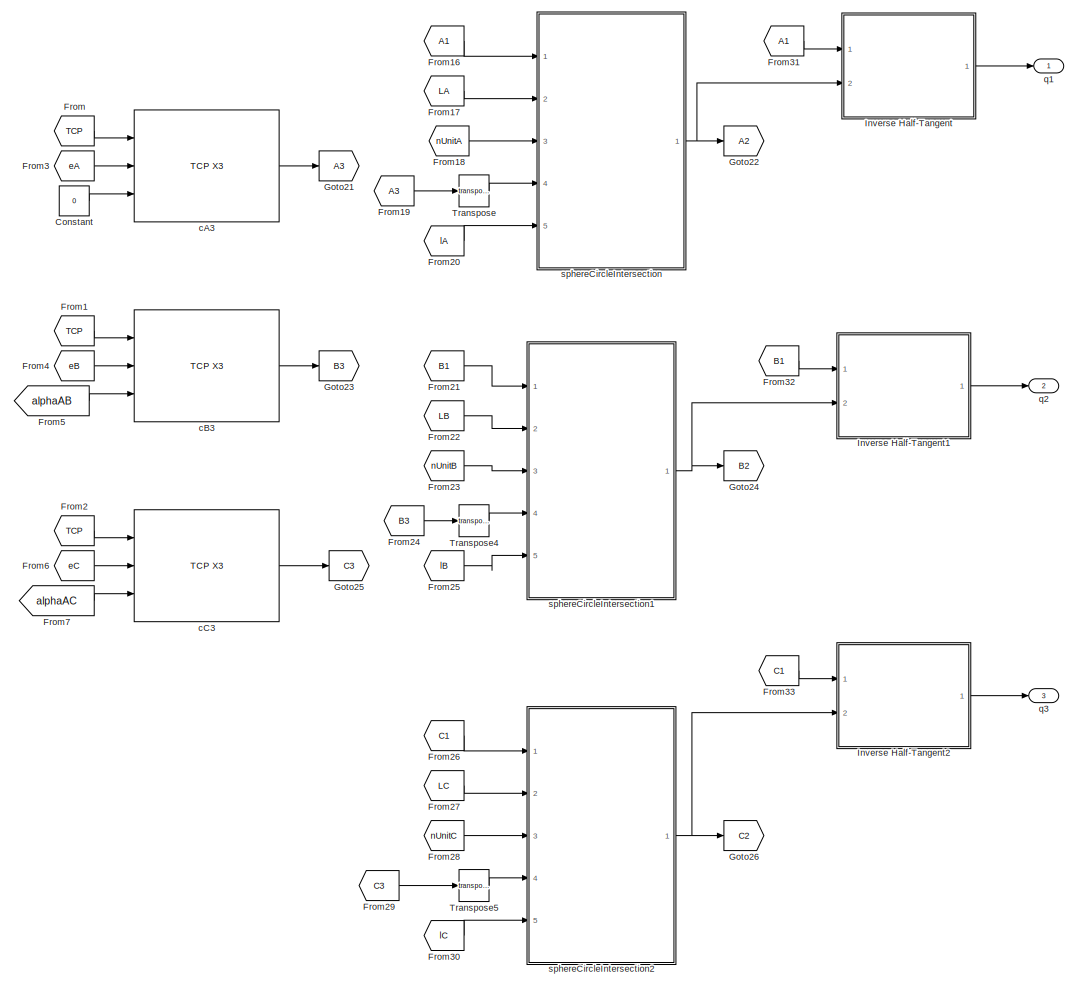
[diagram: Geometry/Inverse Geometry - part 1/3, center side, full height]
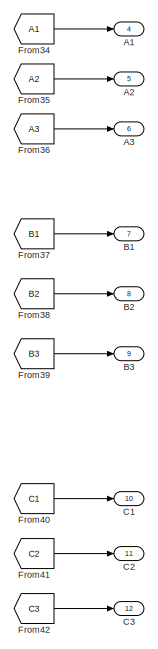
[diagram: Geometry/Inverse Geometry - part 2/3, middle right region]
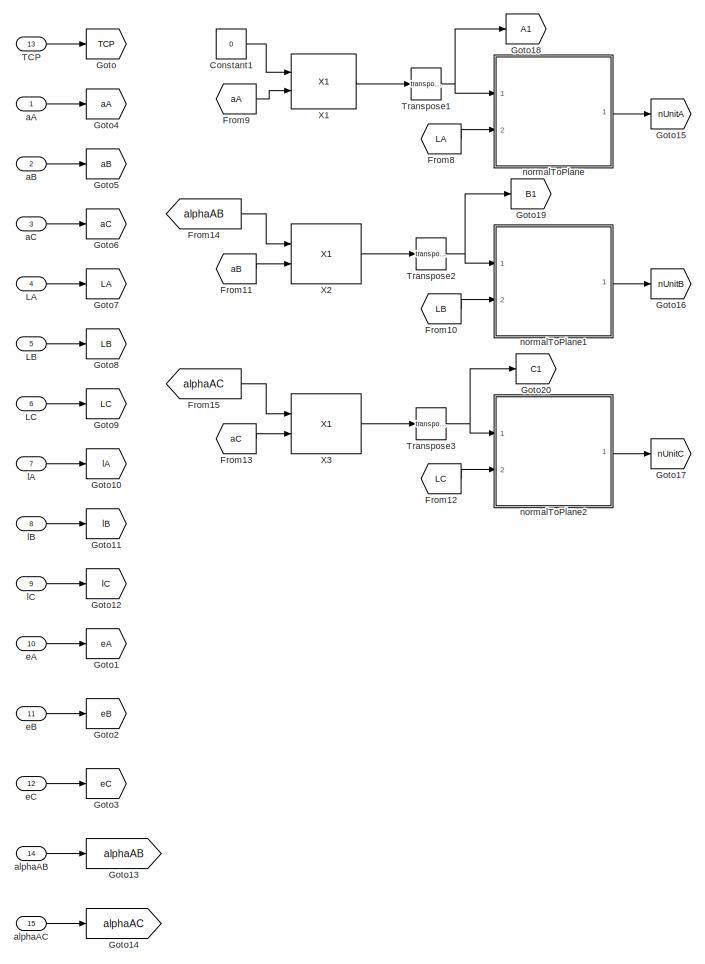
[diagram: Geometry/Inverse Geometry - part 3/3, left side, full height]
BLOCK [SubSystem] Geometry/Inverse Geometry
  Ports = [15, 12]
  RequestExecContextInheritance = off
BLOCK [Outport] Geometry/Inverse Geometry/A1
  Port = 4
BLOCK [Outport] Geometry/Inverse Geometry/A2
  Port = 5
BLOCK [Outport] Geometry/Inverse Geometry/A3
  Port = 6
BLOCK [Outport] Geometry/Inverse Geometry/B1
  Port = 7
BLOCK [Outport] Geometry/Inverse Geometry/B2
  Port = 8
BLOCK [Outport] Geometry/Inverse Geometry/B3
  Port = 9
BLOCK [Outport] Geometry/Inverse Geometry/C1
  Port = 10
BLOCK [Outport] Geometry/Inverse Geometry/C2
  Port = 11
BLOCK [Outport] Geometry/Inverse Geometry/C3
  Port = 12
BLOCK [Constant] Geometry/Inverse Geometry/Constant
  Value = 0
BLOCK [Constant] Geometry/Inverse Geometry/Constant1
  Value = 0
BLOCK [From] Geometry/Inverse Geometry/From
  GotoTag = TCP
BLOCK [From] Geometry/Inverse Geometry/From1
  GotoTag = TCP
BLOCK [From] Geometry/Inverse Geometry/From10
  GotoTag = LB
BLOCK [From] Geometry/Inverse Geometry/From11
  GotoTag = aB
BLOCK [From] Geometry/Inverse Geometry/From12
  GotoTag = LC
BLOCK [From] Geometry/Inverse Geometry/From13
  GotoTag = aC
BLOCK [From] Geometry/Inverse Geometry/From14
  GotoTag = alphaAB
BLOCK [From] Geometry/Inverse Geometry/From15
  GotoTag = alphaAC
BLOCK [From] Geometry/Inverse Geometry/From16
  GotoTag = A1
BLOCK [From] Geometry/Inverse Geometry/From17
  GotoTag = LA
BLOCK [From] Geometry/Inverse Geometry/From18
  GotoTag = nUnitA
BLOCK [From] Geometry/Inverse Geometry/From19
  GotoTag = A3
BLOCK [From] Geometry/Inverse Geometry/From2
  GotoTag = TCP
BLOCK [From] Geometry/Inverse Geometry/From20
  GotoTag = lA
BLOCK [From] Geometry/Inverse Geometry/From21
  GotoTag = B1
BLOCK [From] Geometry/Inverse Geometry/From22
  GotoTag = LB
BLOCK [From] Geometry/Inverse Geometry/From23
  GotoTag = nUnitB
BLOCK [From] Geometry/Inverse Geometry/From24
  GotoTag = B3
BLOCK [From] Geometry/Inverse Geometry/From25
  GotoTag = lB
BLOCK [From] Geometry/Inverse Geometry/From26
  GotoTag = C1
BLOCK [From] Geometry/Inverse Geometry/From27
  GotoTag = LC
BLOCK [From] Geometry/Inverse Geometry/From28
  GotoTag = nUnitC
BLOCK [From] Geometry/Inverse Geometry/From29
  GotoTag = C3
BLOCK [From] Geometry/Inverse Geometry/From3
  GotoTag = eA
BLOCK [From] Geometry/Inverse Geometry/From30
  GotoTag = lC
BLOCK [From] Geometry/Inverse Geometry/From31
  GotoTag = A1
BLOCK [From] Geometry/Inverse Geometry/From32
  GotoTag = B1
BLOCK [From] Geometry/Inverse Geometry/From33
  GotoTag = C1
BLOCK [From] Geometry/Inverse Geometry/From34
  GotoTag = A1
BLOCK [From] Geometry/Inverse Geometry/From35
  GotoTag = A2
BLOCK [From] Geometry/Inverse Geometry/From36
  GotoTag = A3
BLOCK [From] Geometry/Inverse Geometry/From37
  GotoTag = B1
BLOCK [From] Geometry/Inverse Geometry/From38
  GotoTag = B2
BLOCK [From] Geometry/Inverse Geometry/From39
  GotoTag = B3
BLOCK [From] Geometry/Inverse Geometry/From4
  GotoTag = eB
BLOCK [From] Geometry/Inverse Geometry/From40
  GotoTag = C1
BLOCK [From] Geometry/Inverse Geometry/From41
  GotoTag = C2
BLOCK [From] Geometry/Inverse Geometry/From42
  GotoTag = C3
BLOCK [From] Geometry/Inverse Geometry/From5
  GotoTag = alphaAB
BLOCK [From] Geometry/Inverse Geometry/From6
  GotoTag = eC
BLOCK [From] Geometry/Inverse Geometry/From7
  GotoTag = alphaAC
BLOCK [From] Geometry/Inverse Geometry/From8
  GotoTag = LA
BLOCK [From] Geometry/Inverse Geometry/From9
  GotoTag = aA
BLOCK [Goto] Geometry/Inverse Geometry/Goto
  GotoTag = TCP
BLOCK [Goto] Geometry/Inverse Geometry/Goto1
  GotoTag = eA
BLOCK [Goto] Geometry/Inverse Geometry/Goto10
  GotoTag = lA
BLOCK [Goto] Geometry/Inverse Geometry/Goto11
  GotoTag = lB
BLOCK [Goto] Geometry/Inverse Geometry/Goto12
  GotoTag = lC
BLOCK [Goto] Geometry/Inverse Geometry/Goto13
  GotoTag = alphaAB
BLOCK [Goto] Geometry/Inverse Geometry/Goto14
  GotoTag = alphaAC
BLOCK [Goto] Geometry/Inverse Geometry/Goto15
  GotoTag = nUnitA
BLOCK [Goto] Geometry/Inverse Geometry/Goto16
  GotoTag = nUnitB
BLOCK [Goto] Geometry/Inverse Geometry/Goto17
  GotoTag = nUnitC
BLOCK [Goto] Geometry/Inverse Geometry/Goto18
  GotoTag = A1
BLOCK [Goto] Geometry/Inverse Geometry/Goto19
  GotoTag = B1
BLOCK [Goto] Geometry/Inverse Geometry/Goto2
  GotoTag = eB
BLOCK [Goto] Geometry/Inverse Geometry/Goto20
  GotoTag = C1
BLOCK [Goto] Geometry/Inverse Geometry/Goto21
  GotoTag = A3
BLOCK [Goto] Geometry/Inverse Geometry/Goto22
  GotoTag = A2
BLOCK [Goto] Geometry/Inverse Geometry/Goto23
  GotoTag = B3
BLOCK [Goto] Geometry/Inverse Geometry/Goto24
  GotoTag = B2
BLOCK [Goto] Geometry/Inverse Geometry/Goto25
  GotoTag = C3
BLOCK [Goto] Geometry/Inverse Geometry/Goto26
  GotoTag = C2
BLOCK [Goto] Geometry/Inverse Geometry/Goto3
  GotoTag = eC
BLOCK [Goto] Geometry/Inverse Geometry/Goto4
  GotoTag = aA
BLOCK [Goto] Geometry/Inverse Geometry/Goto5
  GotoTag = aB
BLOCK [Goto] Geometry/Inverse Geometry/Goto6
  GotoTag = aC
BLOCK [Goto] Geometry/Inverse Geometry/Goto7
  GotoTag = LA
BLOCK [Goto] Geometry/Inverse Geometry/Goto8
  GotoTag = LB
BLOCK [Goto] Geometry/Inverse Geometry/Goto9
  GotoTag = LC
BLOCK [SubSystem] Geometry/Inverse Geometry/Inverse Half-Tangent
  ErrorFcn = Stateflow.Translate.translate
  PermitHierarchicalResolution = ExplicitOnly
  Ports = [2, 1]
  RequestExecContextInheritance = off
  SFBlockType = MATLAB Function
  TreatAsAtomicUnit = on
BLOCK [Demux] Geometry/Inverse Geometry/Inverse Half-Tangent/ Demux 
  Outputs = 1
  Ports = [1, 1]
BLOCK [S-Function] Geometry/Inverse Geometry/Inverse Half-Tangent/ SFunction 
  EnableBusSupport = off
  FunctionName = sf_sfun
  PortCounts = [2 2]
  Ports = [2, 2]
  SFcnIsStateOwnerBlock = off
  SFunctionDeploymentMode = off
  Tag = Stateflow S-Function 17
BLOCK [Terminator] Geometry/Inverse Geometry/Inverse Half-Tangent/ Terminator 
BLOCK [Inport] Geometry/Inverse Geometry/Inverse Half-Tangent/X1
BLOCK [Inport] Geometry/Inverse Geometry/Inverse Half-Tangent/X2
  Port = 2
BLOCK [Outport] Geometry/Inverse Geometry/Inverse Half-Tangent/q
BLOCK [SubSystem] Geometry/Inverse Geometry/Inverse Half-Tangent1
  ErrorFcn = Stateflow.Translate.translate
  PermitHierarchicalResolution = ExplicitOnly
  Ports = [2, 1]
  RequestExecContextInheritance = off
  SFBlockType = MATLAB Function
  TreatAsAtomicUnit = on
BLOCK [Demux] Geometry/Inverse Geometry/Inverse Half-Tangent1/ Demux 
  Outputs = 1
  Ports = [1, 1]
BLOCK [S-Function] Geometry/Inverse Geometry/Inverse Half-Tangent1/ SFunction 
  EnableBusSupport = off
  FunctionName = sf_sfun
  PortCounts = [2 2]
  Ports = [2, 2]
  SFcnIsStateOwnerBlock = off
  SFunctionDeploymentMode = off
  Tag = Stateflow S-Function 18
BLOCK [Terminator] Geometry/Inverse Geometry/Inverse Half-Tangent1/ Terminator 
BLOCK [Inport] Geometry/Inverse Geometry/Inverse Half-Tangent1/X1
BLOCK [Inport] Geometry/Inverse Geometry/Inverse Half-Tangent1/X2
  Port = 2
BLOCK [Outport] Geometry/Inverse Geometry/Inverse Half-Tangent1/q
BLOCK [SubSystem] Geometry/Inverse Geometry/Inverse Half-Tangent2
  ErrorFcn = Stateflow.Translate.translate
  PermitHierarchicalResolution = ExplicitOnly
  Ports = [2, 1]
  RequestExecContextInheritance = off
  SFBlockType = MATLAB Function
  TreatAsAtomicUnit = on
BLOCK [Demux] Geometry/Inverse Geometry/Inverse Half-Tangent2/ Demux 
  Outputs = 1
  Ports = [1, 1]
BLOCK [S-Function] Geometry/Inverse Geometry/Inverse Half-Tangent2/ SFunction 
  EnableBusSupport = off
  FunctionName = sf_sfun
  PortCounts = [2 2]
  Ports = [2, 2]
  SFcnIsStateOwnerBlock = off
  SFunctionDeploymentMode = off
  Tag = Stateflow S-Function 19
BLOCK [Terminator] Geometry/Inverse Geometry/Inverse Half-Tangent2/ Terminator 
BLOCK [Inport] Geometry/Inverse Geometry/Inverse Half-Tangent2/X1
BLOCK [Inport] Geometry/Inverse Geometry/Inverse Half-Tangent2/X2
  Port = 2
BLOCK [Outport] Geometry/Inverse Geometry/Inverse Half-Tangent2/q
BLOCK [Inport] Geometry/Inverse Geometry/LA
  Port = 4
BLOCK [Inport] Geometry/Inverse Geometry/LB
  Port = 5
BLOCK [Inport] Geometry/Inverse Geometry/LC
  Port = 6
BLOCK [Inport] Geometry/Inverse Geometry/TCP
  Port = 13
BLOCK [Math] Geometry/Inverse Geometry/Transpose
  Operator = transpose
  Ports = [1, 1]
BLOCK [Math] Geometry/Inverse Geometry/Transpose1
  Operator = transpose
  Ports = [1, 1]
BLOCK [Math] Geometry/Inverse Geometry/Transpose2
  Operator = transpose
  Ports = [1, 1]
BLOCK [Math] Geometry/Inverse Geometry/Transpose3
  Operator = transpose
  Ports = [1, 1]
BLOCK [Math] Geometry/Inverse Geometry/Transpose4
  Operator = transpose
  Ports = [1, 1]
BLOCK [Math] Geometry/Inverse Geometry/Transpose5
  Operator = transpose
  Ports = [1, 1]
BLOCK [Reference] Geometry/Inverse Geometry/X1  REF=$bdroot/Other Functions/X1
  Ports = [2, 1]
  SourceBlock = $bdroot/Other Functions/X1
BLOCK [Reference] Geometry/Inverse Geometry/X2  REF=$bdroot/Other Functions/X1
  Ports = [2, 1]
  SourceBlock = $bdroot/Other Functions/X1
BLOCK [Reference] Geometry/Inverse Geometry/X3  REF=$bdroot/Other Functions/X1
  Ports = [2, 1]
  SourceBlock = $bdroot/Other Functions/X1
BLOCK [Inport] Geometry/Inverse Geometry/aA
BLOCK [Inport] Geometry/Inverse Geometry/aB
  Port = 2
BLOCK [Inport] Geometry/Inverse Geometry/aC
  Port = 3
BLOCK [Inport] Geometry/Inverse Geometry/alphaAB
  Port = 14
BLOCK [Inport] Geometry/Inverse Geometry/alphaAC
  Port = 15
BLOCK [Reference] Geometry/Inverse Geometry/cA3  REF=$bdroot/Other Functions/TCP X3
  Ports = [3, 1]
  SourceBlock = $bdroot/Other Functions/TCP X3
BLOCK [Reference] Geometry/Inverse Geometry/cB3  REF=$bdroot/Other Functions/TCP X3
  Ports = [3, 1]
  SourceBlock = $bdroot/Other Functions/TCP X3
BLOCK [Reference] Geometry/Inverse Geometry/cC3  REF=$bdroot/Other Functions/TCP X3
  Ports = [3, 1]
  SourceBlock = $bdroot/Other Functions/TCP X3
BLOCK [Inport] Geometry/Inverse Geometry/eA
  Port = 10
BLOCK [Inport] Geometry/Inverse Geometry/eB
  Port = 11
BLOCK [Inport] Geometry/Inverse Geometry/eC
  Port = 12
BLOCK [Inport] Geometry/Inverse Geometry/lA
  Port = 7
BLOCK [Inport] Geometry/Inverse Geometry/lB
  Port = 8
BLOCK [Inport] Geometry/Inverse Geometry/lC
  Port = 9
BLOCK [SubSystem] Geometry/Inverse Geometry/normalToPlane
  ErrorFcn = Stateflow.Translate.translate
  PermitHierarchicalResolution = ExplicitOnly
  Ports = [2, 1]
  RequestExecContextInheritance = off
  SFBlockType = MATLAB Function
  TreatAsAtomicUnit = on
BLOCK [Demux] Geometry/Inverse Geometry/normalToPlane/ Demux 
  Outputs = 1
  Ports = [1, 1]
BLOCK [S-Function] Geometry/Inverse Geometry/normalToPlane/ SFunction 
  EnableBusSupport = off
  FunctionName = sf_sfun
  PortCounts = [2 2]
  Ports = [2, 2]
  SFcnIsStateOwnerBlock = off
  SFunctionDeploymentMode = off
  Tag = Stateflow S-Function 10
BLOCK [Terminator] Geometry/Inverse Geometry/normalToPlane/ Terminator 
BLOCK [Inport] Geometry/Inverse Geometry/normalToPlane/LX
  Port = 2
BLOCK [Inport] Geometry/Inverse Geometry/normalToPlane/X1
BLOCK [Outport] Geometry/Inverse Geometry/normalToPlane/nUnit
BLOCK [SubSystem] Geometry/Inverse Geometry/normalToPlane1
  ErrorFcn = Stateflow.Translate.translate
  PermitHierarchicalResolution = ExplicitOnly
  Ports = [2, 1]
  RequestExecContextInheritance = off
  SFBlockType = MATLAB Function
  TreatAsAtomicUnit = on
BLOCK [Demux] Geometry/Inverse Geometry/normalToPlane1/ Demux 
  Outputs = 1
  Ports = [1, 1]
BLOCK [S-Function] Geometry/Inverse Geometry/normalToPlane1/ SFunction 
  EnableBusSupport = off
  FunctionName = sf_sfun
  PortCounts = [2 2]
  Ports = [2, 2]
  SFcnIsStateOwnerBlock = off
  SFunctionDeploymentMode = off
  Tag = Stateflow S-Function 11
BLOCK [Terminator] Geometry/Inverse Geometry/normalToPlane1/ Terminator 
BLOCK [Inport] Geometry/Inverse Geometry/normalToPlane1/LX
  Port = 2
BLOCK [Inport] Geometry/Inverse Geometry/normalToPlane1/X1
BLOCK [Outport] Geometry/Inverse Geometry/normalToPlane1/nUnit
BLOCK [SubSystem] Geometry/Inverse Geometry/normalToPlane2
  ErrorFcn = Stateflow.Translate.translate
  PermitHierarchicalResolution = ExplicitOnly
  Ports = [2, 1]
  RequestExecContextInheritance = off
  SFBlockType = MATLAB Function
  TreatAsAtomicUnit = on
BLOCK [Demux] Geometry/Inverse Geometry/normalToPlane2/ Demux 
  Outputs = 1
  Ports = [1, 1]
BLOCK [S-Function] Geometry/Inverse Geometry/normalToPlane2/ SFunction 
  EnableBusSupport = off
  FunctionName = sf_sfun
  PortCounts = [2 2]
  Ports = [2, 2]
  SFcnIsStateOwnerBlock = off
  SFunctionDeploymentMode = off
  Tag = Stateflow S-Function 12
BLOCK [Terminator] Geometry/Inverse Geometry/normalToPlane2/ Terminator 
BLOCK [Inport] Geometry/Inverse Geometry/normalToPlane2/LX
  Port = 2
BLOCK [Inport] Geometry/Inverse Geometry/normalToPlane2/X1
BLOCK [Outport] Geometry/Inverse Geometry/normalToPlane2/nUnit
BLOCK [Outport] Geometry/Inverse Geometry/q1
BLOCK [Outport] Geometry/Inverse Geometry/q2
  Port = 2
BLOCK [Outport] Geometry/Inverse Geometry/q3
  Port = 3
BLOCK [SubSystem] Geometry/Inverse Geometry/sphereCircleIntersection
  ErrorFcn = Stateflow.Translate.translate
  PermitHierarchicalResolution = ExplicitOnly
  Ports = [5, 1]
  RequestExecContextInheritance = off
  SFBlockType = MATLAB Function
  TreatAsAtomicUnit = on
BLOCK [Demux] Geometry/Inverse Geometry/sphereCircleIntersection/ Demux 
  Outputs = 1
  Ports = [1, 1]
BLOCK [S-Function] Geometry/Inverse Geometry/sphereCircleIntersection/ SFunction 
  EnableBusSupport = off
  FunctionName = sf_sfun
  PortCounts = [5 2]
  Ports = [5, 2]
  SFcnIsStateOwnerBlock = off
  SFunctionDeploymentMode = off
  Tag = Stateflow S-Function 13
BLOCK [Terminator] Geometry/Inverse Geometry/sphereCircleIntersection/ Terminator 
BLOCK [Inport] Geometry/Inverse Geometry/sphereCircleIntersection/cc
BLOCK [Inport] Geometry/Inverse Geometry/sphereCircleIntersection/cs
  Port = 4
BLOCK [Inport] Geometry/Inverse Geometry/sphereCircleIntersection/nUnit
  Port = 3
BLOCK [Outport] Geometry/Inverse Geometry/sphereCircleIntersection/p0
BLOCK [Inport] Geometry/Inverse Geometry/sphereCircleIntersection/rc
  Port = 2
BLOCK [Inport] Geometry/Inverse Geometry/sphereCircleIntersection/rs
  Port = 5
BLOCK [SubSystem] Geometry/Inverse Geometry/sphereCircleIntersection1
  ErrorFcn = Stateflow.Translate.translate
  PermitHierarchicalResolution = ExplicitOnly
  Ports = [5, 1]
  RequestExecContextInheritance = off
  SFBlockType = MATLAB Function
  TreatAsAtomicUnit = on
BLOCK [Demux] Geometry/Inverse Geometry/sphereCircleIntersection1/ Demux 
  Outputs = 1
  Ports = [1, 1]
BLOCK [S-Function] Geometry/Inverse Geometry/sphereCircleIntersection1/ SFunction 
  EnableBusSupport = off
  FunctionName = sf_sfun
  PortCounts = [5 2]
  Ports = [5, 2]
  SFcnIsStateOwnerBlock = off
  SFunctionDeploymentMode = off
  Tag = Stateflow S-Function 14
BLOCK [Terminator] Geometry/Inverse Geometry/sphereCircleIntersection1/ Terminator 
BLOCK [Inport] Geometry/Inverse Geometry/sphereCircleIntersection1/cc
BLOCK [Inport] Geometry/Inverse Geometry/sphereCircleIntersection1/cs
  Port = 4
BLOCK [Inport] Geometry/Inverse Geometry/sphereCircleIntersection1/nUnit
  Port = 3
BLOCK [Outport] Geometry/Inverse Geometry/sphereCircleIntersection1/p0
BLOCK [Inport] Geometry/Inverse Geometry/sphereCircleIntersection1/rc
  Port = 2
BLOCK [Inport] Geometry/Inverse Geometry/sphereCircleIntersection1/rs
  Port = 5
BLOCK [SubSystem] Geometry/Inverse Geometry/sphereCircleIntersection2
  ErrorFcn = Stateflow.Translate.translate
  PermitHierarchicalResolution = ExplicitOnly
  Ports = [5, 1]
  RequestExecContextInheritance = off
  SFBlockType = MATLAB Function
  TreatAsAtomicUnit = on
BLOCK [Demux] Geometry/Inverse Geometry/sphereCircleIntersection2/ Demux 
  Outputs = 1
  Ports = [1, 1]
BLOCK [S-Function] Geometry/Inverse Geometry/sphereCircleIntersection2/ SFunction 
  EnableBusSupport = off
  FunctionName = sf_sfun
  PortCounts = [5 2]
  Ports = [5, 2]
  SFcnIsStateOwnerBlock = off
  SFunctionDeploymentMode = off
  Tag = Stateflow S-Function 15
BLOCK [Terminator] Geometry/Inverse Geometry/sphereCircleIntersection2/ Terminator 
BLOCK [Inport] Geometry/Inverse Geometry/sphereCircleIntersection2/cc
BLOCK [Inport] Geometry/Inverse Geometry/sphereCircleIntersection2/cs
  Port = 4
BLOCK [Inport] Geometry/Inverse Geometry/sphereCircleIntersection2/nUnit
  Port = 3
BLOCK [Outport] Geometry/Inverse Geometry/sphereCircleIntersection2/p0
BLOCK [Inport] Geometry/Inverse Geometry/sphereCircleIntersection2/rc
  Port = 2
BLOCK [Inport] Geometry/Inverse Geometry/sphereCircleIntersection2/rs
  Port = 5
BLOCK [SubSystem] Kinematics
  Ports = []
  RequestExecContextInheritance = off
BLOCK [SubSystem] Kinematics/Calculate Jacobian
  Ports = [9, 7]
  RequestExecContextInheritance = off
BLOCK [Inport] Kinematics/Calculate Jacobian/A1
BLOCK [Inport] Kinematics/Calculate Jacobian/A2
  Port = 2
BLOCK [Inport] Kinematics/Calculate Jacobian/A3
  Port = 3
BLOCK [Outport] Kinematics/Calculate Jacobian/Arm A Screws
  Port = 5
BLOCK [Outport] Kinematics/Calculate Jacobian/Arm B Screws
  Port = 6
BLOCK [Outport] Kinematics/Calculate Jacobian/Arm C Screws
  Port = 7
BLOCK [SubSystem] Kinematics/Calculate Jacobian/Arm X Screws
  ErrorFcn = Stateflow.Translate.translate
  PermitHierarchicalResolution = ExplicitOnly
  Ports = [3, 8]
  RequestExecContextInheritance = off
  SFBlockType = MATLAB Function
  TreatAsAtomicUnit = on
BLOCK [Demux] Kinematics/Calculate Jacobian/Arm X Screws/ Demux 
  Outputs = 1
  Ports = [1, 1]
BLOCK [S-Function] Kinematics/Calculate Jacobian/Arm X Screws/ SFunction 
  EnableBusSupport = off
  FunctionName = sf_sfun
  PortCounts = [3 9]
  Ports = [3, 9]
  SFcnIsStateOwnerBlock = off
  SFunctionDeploymentMode = off
  Tag = Stateflow S-Function 22
BLOCK [Terminator] Kinematics/Calculate Jacobian/Arm X Screws/ Terminator 
BLOCK [Outport] Kinematics/Calculate Jacobian/Arm X Screws/S01X
BLOCK [Outport] Kinematics/Calculate Jacobian/Arm X Screws/S12X
  Port = 2
BLOCK [Outport] Kinematics/Calculate Jacobian/Arm X Screws/S23X
  Port = 3
BLOCK [Outport] Kinematics/Calculate Jacobian/Arm X Screws/S34X
  Port = 4
BLOCK [Outport] Kinematics/Calculate Jacobian/Arm X Screws/S45X
  Port = 5
BLOCK [Outport] Kinematics/Calculate Jacobian/Arm X Screws/S56X
  Port = 6
BLOCK [Outport] Kinematics/Calculate Jacobian/Arm X Screws/SLX
  Port = 7
BLOCK [Outport] Kinematics/Calculate Jacobian/Arm X Screws/SlX
  Port = 8
BLOCK [Inport] Kinematics/Calculate Jacobian/Arm X Screws/X1
BLOCK [Inport] Kinematics/Calculate Jacobian/Arm X Screws/X2
  Port = 2
BLOCK [Inport] Kinematics/Calculate Jacobian/Arm X Screws/X3
  Port = 3
BLOCK [SubSystem] Kinematics/Calculate Jacobian/Arm X Screws1
  ErrorFcn = Stateflow.Translate.translate
  PermitHierarchicalResolution = ExplicitOnly
  Ports = [3, 8]
  RequestExecContextInheritance = off
  SFBlockType = MATLAB Function
  TreatAsAtomicUnit = on
BLOCK [Demux] Kinematics/Calculate Jacobian/Arm X Screws1/ Demux 
  Outputs = 1
  Ports = [1, 1]
BLOCK [S-Function] Kinematics/Calculate Jacobian/Arm X Screws1/ SFunction 
  EnableBusSupport = off
  FunctionName = sf_sfun
  PortCounts = [3 9]
  Ports = [3, 9]
  SFcnIsStateOwnerBlock = off
  SFunctionDeploymentMode = off
  Tag = Stateflow S-Function 23
BLOCK [Terminator] Kinematics/Calculate Jacobian/Arm X Screws1/ Terminator 
BLOCK [Outport] Kinematics/Calculate Jacobian/Arm X Screws1/S01X
BLOCK [Outport] Kinematics/Calculate Jacobian/Arm X Screws1/S12X
  Port = 2
BLOCK [Outport] Kinematics/Calculate Jacobian/Arm X Screws1/S23X
  Port = 3
BLOCK [Outport] Kinematics/Calculate Jacobian/Arm X Screws1/S34X
  Port = 4
BLOCK [Outport] Kinematics/Calculate Jacobian/Arm X Screws1/S45X
  Port = 5
BLOCK [Outport] Kinematics/Calculate Jacobian/Arm X Screws1/S56X
  Port = 6
BLOCK [Outport] Kinematics/Calculate Jacobian/Arm X Screws1/SLX
  Port = 7
BLOCK [Outport] Kinematics/Calculate Jacobian/Arm X Screws1/SlX
  Port = 8
BLOCK [Inport] Kinematics/Calculate Jacobian/Arm X Screws1/X1
BLOCK [Inport] Kinematics/Calculate Jacobian/Arm X Screws1/X2
  Port = 2
BLOCK [Inport] Kinematics/Calculate Jacobian/Arm X Screws1/X3
  Port = 3
BLOCK [SubSystem] Kinematics/Calculate Jacobian/Arm X Screws2
  ErrorFcn = Stateflow.Translate.translate
  PermitHierarchicalResolution = ExplicitOnly
  Ports = [3, 8]
  RequestExecContextInheritance = off
  SFBlockType = MATLAB Function
  TreatAsAtomicUnit = on
BLOCK [Demux] Kinematics/Calculate Jacobian/Arm X Screws2/ Demux 
  Outputs = 1
  Ports = [1, 1]
BLOCK [S-Function] Kinematics/Calculate Jacobian/Arm X Screws2/ SFunction 
  EnableBusSupport = off
  FunctionName = sf_sfun
  PortCounts = [3 9]
  Ports = [3, 9]
  SFcnIsStateOwnerBlock = off
  SFunctionDeploymentMode = off
  Tag = Stateflow S-Function 24
BLOCK [Terminator] Kinematics/Calculate Jacobian/Arm X Screws2/ Terminator 
BLOCK [Outport] Kinematics/Calculate Jacobian/Arm X Screws2/S01X
BLOCK [Outport] Kinematics/Calculate Jacobian/Arm X Screws2/S12X
  Port = 2
BLOCK [Outport] Kinematics/Calculate Jacobian/Arm X Screws2/S23X
  Port = 3
BLOCK [Outport] Kinematics/Calculate Jacobian/Arm X Screws2/S34X
  Port = 4
BLOCK [Outport] Kinematics/Calculate Jacobian/Arm X Screws2/S45X
  Port = 5
BLOCK [Outport] Kinematics/Calculate Jacobian/Arm X Screws2/S56X
  Port = 6
BLOCK [Outport] Kinematics/Calculate Jacobian/Arm X Screws2/SLX
  Port = 7
BLOCK [Outport] Kinematics/Calculate Jacobian/Arm X Screws2/SlX
  Port = 8
BLOCK [Inport] Kinematics/Calculate Jacobian/Arm X Screws2/X1
BLOCK [Inport] Kinematics/Calculate Jacobian/Arm X Screws2/X2
  Port = 2
BLOCK [Inport] Kinematics/Calculate Jacobian/Arm X Screws2/X3
  Port = 3
BLOCK [Inport] Kinematics/Calculate Jacobian/B1
  Port = 4
BLOCK [Inport] Kinematics/Calculate Jacobian/B2
  Port = 5
BLOCK [Inport] Kinematics/Calculate Jacobian/B3
  Port = 6
BLOCK [Inport] Kinematics/Calculate Jacobian/C1
  Port = 7
BLOCK [Inport] Kinematics/Calculate Jacobian/C2
  Port = 8
BLOCK [Inport] Kinematics/Calculate Jacobian/C3
  Port = 9
BLOCK [From] Kinematics/Calculate Jacobian/From
  GotoTag = S01A
BLOCK [From] Kinematics/Calculate Jacobian/From1
  GotoTag = S12A
BLOCK [From] Kinematics/Calculate Jacobian/From10
  GotoTag = S23B
BLOCK [From] Kinematics/Calculate Jacobian/From11
  GotoTag = S34B
BLOCK [From] Kinematics/Calculate Jacobian/From12
  GotoTag = S45B
BLOCK [From] Kinematics/Calculate Jacobian/From13
  GotoTag = S56B
BLOCK [From] Kinematics/Calculate Jacobian/From14
  GotoTag = SLB
BLOCK [From] Kinematics/Calculate Jacobian/From15
  GotoTag = SlB
BLOCK [From] Kinematics/Calculate Jacobian/From16
  GotoTag = S23C
BLOCK [From] Kinematics/Calculate Jacobian/From17
  GotoTag = S34C
BLOCK [From] Kinematics/Calculate Jacobian/From18
  GotoTag = S45C
BLOCK [From] Kinematics/Calculate Jacobian/From19
  GotoTag = S56C
BLOCK [From] Kinematics/Calculate Jacobian/From2
  GotoTag = S23A
BLOCK [From] Kinematics/Calculate Jacobian/From20
  GotoTag = SLC
BLOCK [From] Kinematics/Calculate Jacobian/From21
  GotoTag = SlC
BLOCK [From] Kinematics/Calculate Jacobian/From22
  GotoTag = S01C
BLOCK [From] Kinematics/Calculate Jacobian/From23
  GotoTag = S12C
BLOCK [From] Kinematics/Calculate Jacobian/From24
  GotoTag = SlA
BLOCK [From] Kinematics/Calculate Jacobian/From25
  GotoTag = SlB
BLOCK [From] Kinematics/Calculate Jacobian/From26
  GotoTag = SlC
BLOCK [From] Kinematics/Calculate Jacobian/From27
  GotoTag = SlA
BLOCK [From] Kinematics/Calculate Jacobian/From28
  GotoTag = SlB
BLOCK [From] Kinematics/Calculate Jacobian/From29
  GotoTag = SlC
BLOCK [From] Kinematics/Calculate Jacobian/From3
  GotoTag = S34A
BLOCK [From] Kinematics/Calculate Jacobian/From30
  GotoTag = S12A
BLOCK [From] Kinematics/Calculate Jacobian/From31
  GotoTag = S12B
BLOCK [From] Kinematics/Calculate Jacobian/From32
  GotoTag = S12C
BLOCK [From] Kinematics/Calculate Jacobian/From33
  GotoTag = J_A
BLOCK [From] Kinematics/Calculate Jacobian/From34
  GotoTag = J_B
BLOCK [From] Kinematics/Calculate Jacobian/From4
  GotoTag = S45A
BLOCK [From] Kinematics/Calculate Jacobian/From5
  GotoTag = S56A
BLOCK [From] Kinematics/Calculate Jacobian/From6
  GotoTag = SLA
BLOCK [From] Kinematics/Calculate Jacobian/From7
  GotoTag = SlA
BLOCK [From] Kinematics/Calculate Jacobian/From8
  GotoTag = S01B
BLOCK [From] Kinematics/Calculate Jacobian/From9
  GotoTag = S12B
BLOCK [Goto] Kinematics/Calculate Jacobian/Goto
  GotoTag = S01A
BLOCK [Goto] Kinematics/Calculate Jacobian/Goto1
  GotoTag = S12A
BLOCK [Goto] Kinematics/Calculate Jacobian/Goto10
  GotoTag = S23B
BLOCK [Goto] Kinematics/Calculate Jacobian/Goto11
  GotoTag = S34B
BLOCK [Goto] Kinematics/Calculate Jacobian/Goto12
  GotoTag = S45B
BLOCK [Goto] Kinematics/Calculate Jacobian/Goto13
  GotoTag = S56B
BLOCK [Goto] Kinematics/Calculate Jacobian/Goto14
  GotoTag = SLB
BLOCK [Goto] Kinematics/Calculate Jacobian/Goto15
  GotoTag = SlB
BLOCK [Goto] Kinematics/Calculate Jacobian/Goto16
  GotoTag = S01C
BLOCK [Goto] Kinematics/Calculate Jacobian/Goto17
  GotoTag = S12C
BLOCK [Goto] Kinematics/Calculate Jacobian/Goto18
  GotoTag = S23C
BLOCK [Goto] Kinematics/Calculate Jacobian/Goto19
  GotoTag = S34C
BLOCK [Goto] Kinematics/Calculate Jacobian/Goto2
  GotoTag = S23A
BLOCK [Goto] Kinematics/Calculate Jacobian/Goto20
  GotoTag = S45C
BLOCK [Goto] Kinematics/Calculate Jacobian/Goto21
  GotoTag = S56C
BLOCK [Goto] Kinematics/Calculate Jacobian/Goto22
  GotoTag = SLC
BLOCK [Goto] Kinematics/Calculate Jacobian/Goto23
  GotoTag = SlC
BLOCK [Goto] Kinematics/Calculate Jacobian/Goto24
  GotoTag = J_A
BLOCK [Goto] Kinematics/Calculate Jacobian/Goto25
  GotoTag = J_B
BLOCK [Goto] Kinematics/Calculate Jacobian/Goto26
  GotoTag = J
BLOCK [Goto] Kinematics/Calculate Jacobian/Goto27
  GotoTag = J_inv
BLOCK [Goto] Kinematics/Calculate Jacobian/Goto3
  GotoTag = S34A
BLOCK [Goto] Kinematics/Calculate Jacobian/Goto4
  GotoTag = S45A
BLOCK [Goto] Kinematics/Calculate Jacobian/Goto5
  GotoTag = S56A
BLOCK [Goto] Kinematics/Calculate Jacobian/Goto6
  GotoTag = SLA
BLOCK [Goto] Kinematics/Calculate Jacobian/Goto7
  GotoTag = SlA
BLOCK [Goto] Kinematics/Calculate Jacobian/Goto8
  GotoTag = S01B
BLOCK [Goto] Kinematics/Calculate Jacobian/Goto9
  GotoTag = S12B
BLOCK [Outport] Kinematics/Calculate Jacobian/J
  Port = 3
BLOCK [Outport] Kinematics/Calculate Jacobian/J_A
BLOCK [Outport] Kinematics/Calculate Jacobian/J_B
  Port = 2
BLOCK [Outport] Kinematics/Calculate Jacobian/J_inv
  Port = 4
BLOCK [SubSystem] Kinematics/Calculate Jacobian/Jacobian
  ErrorFcn = Stateflow.Translate.translate
  PermitHierarchicalResolution = ExplicitOnly
  Ports = [2, 2]
  RequestExecContextInheritance = off
  SFBlockType = MATLAB Function
  TreatAsAtomicUnit = on
BLOCK [Demux] Kinematics/Calculate Jacobian/Jacobian/ Demux 
  Outputs = 1
  Ports = [1, 1]
BLOCK [S-Function] Kinematics/Calculate Jacobian/Jacobian/ SFunction 
  EnableBusSupport = off
  FunctionName = sf_sfun
  PortCounts = [2 3]
  Ports = [2, 3]
  SFcnIsStateOwnerBlock = off
  SFunctionDeploymentMode = off
  Tag = Stateflow S-Function 30
BLOCK [Terminator] Kinematics/Calculate Jacobian/Jacobian/ Terminator 
BLOCK [Outport] Kinematics/Calculate Jacobian/Jacobian/J
BLOCK [Inport] Kinematics/Calculate Jacobian/Jacobian/J_A
BLOCK [Inport] Kinematics/Calculate Jacobian/Jacobian/J_B
  Port = 2
BLOCK [Outport] Kinematics/Calculate Jacobian/Jacobian/J_inv
  Port = 2
BLOCK [SubSystem] Kinematics/Calculate Jacobian/MATLAB Function
  ErrorFcn = Stateflow.Translate.translate
  PermitHierarchicalResolution = ExplicitOnly
  Ports = [8, 1]
  RequestExecContextInheritance = off
  SFBlockType = MATLAB Function
  TreatAsAtomicUnit = on
BLOCK [Demux] Kinematics/Calculate Jacobian/MATLAB Function/ Demux 
  Outputs = 1
  Ports = [1, 1]
BLOCK [S-Function] Kinematics/Calculate Jacobian/MATLAB Function/ SFunction 
  EnableBusSupport = off
  FunctionName = sf_sfun
  PortCounts = [8 2]
  Ports = [8, 2]
  SFcnIsStateOwnerBlock = off
  SFunctionDeploymentMode = off
  Tag = Stateflow S-Function 47
BLOCK [Terminator] Kinematics/Calculate Jacobian/MATLAB Function/ Terminator 
BLOCK [Outport] Kinematics/Calculate Jacobian/MATLAB Function/S
BLOCK [Inport] Kinematics/Calculate Jacobian/MATLAB Function/S01
BLOCK [Inport] Kinematics/Calculate Jacobian/MATLAB Function/S12
  Port = 2
BLOCK [Inport] Kinematics/Calculate Jacobian/MATLAB Function/S23
  Port = 3
BLOCK [Inport] Kinematics/Calculate Jacobian/MATLAB Function/S34
  Port = 4
BLOCK [Inport] Kinematics/Calculate Jacobian/MATLAB Function/S45
  Port = 5
BLOCK [Inport] Kinematics/Calculate Jacobian/MATLAB Function/S56
  Port = 6
BLOCK [Inport] Kinematics/Calculate Jacobian/MATLAB Function/SL
  Port = 7
BLOCK [Inport] Kinematics/Calculate Jacobian/MATLAB Function/Sl
  Port = 8
BLOCK [SubSystem] Kinematics/Calculate Jacobian/MATLAB Function1
  ErrorFcn = Stateflow.Translate.translate
  PermitHierarchicalResolution = ExplicitOnly
  Ports = [8, 1]
  RequestExecContextInheritance = off
  SFBlockType = MATLAB Function
  TreatAsAtomicUnit = on
BLOCK [Demux] Kinematics/Calculate Jacobian/MATLAB Function1/ Demux 
  Outputs = 1
  Ports = [1, 1]
BLOCK [S-Function] Kinematics/Calculate Jacobian/MATLAB Function1/ SFunction 
  EnableBusSupport = off
  FunctionName = sf_sfun
  PortCounts = [8 2]
  Ports = [8, 2]
  SFcnIsStateOwnerBlock = off
  SFunctionDeploymentMode = off
  Tag = Stateflow S-Function 48
BLOCK [Terminator] Kinematics/Calculate Jacobian/MATLAB Function1/ Terminator 
BLOCK [Outport] Kinematics/Calculate Jacobian/MATLAB Function1/S
BLOCK [Inport] Kinematics/Calculate Jacobian/MATLAB Function1/S01
BLOCK [Inport] Kinematics/Calculate Jacobian/MATLAB Function1/S12
  Port = 2
BLOCK [Inport] Kinematics/Calculate Jacobian/MATLAB Function1/S23
  Port = 3
BLOCK [Inport] Kinematics/Calculate Jacobian/MATLAB Function1/S34
  Port = 4
BLOCK [Inport] Kinematics/Calculate Jacobian/MATLAB Function1/S45
  Port = 5
BLOCK [Inport] Kinematics/Calculate Jacobian/MATLAB Function1/S56
  Port = 6
BLOCK [Inport] Kinematics/Calculate Jacobian/MATLAB Function1/SL
  Port = 7
BLOCK [Inport] Kinematics/Calculate Jacobian/MATLAB Function1/Sl
  Port = 8
BLOCK [SubSystem] Kinematics/Calculate Jacobian/MATLAB Function2
  ErrorFcn = Stateflow.Translate.translate
  PermitHierarchicalResolution = ExplicitOnly
  Ports = [8, 1]
  RequestExecContextInheritance = off
  SFBlockType = MATLAB Function
  TreatAsAtomicUnit = on
BLOCK [Demux] Kinematics/Calculate Jacobian/MATLAB Function2/ Demux 
  Outputs = 1
  Ports = [1, 1]
BLOCK [S-Function] Kinematics/Calculate Jacobian/MATLAB Function2/ SFunction 
  EnableBusSupport = off
  FunctionName = sf_sfun
  PortCounts = [8 2]
  Ports = [8, 2]
  SFcnIsStateOwnerBlock = off
  SFunctionDeploymentMode = off
  Tag = Stateflow S-Function 49
BLOCK [Terminator] Kinematics/Calculate Jacobian/MATLAB Function2/ Terminator 
BLOCK [Outport] Kinematics/Calculate Jacobian/MATLAB Function2/S
BLOCK [Inport] Kinematics/Calculate Jacobian/MATLAB Function2/S01
BLOCK [Inport] Kinematics/Calculate Jacobian/MATLAB Function2/S12
  Port = 2
BLOCK [Inport] Kinematics/Calculate Jacobian/MATLAB Function2/S23
  Port = 3
BLOCK [Inport] Kinematics/Calculate Jacobian/MATLAB Function2/S34
  Port = 4
BLOCK [Inport] Kinematics/Calculate Jacobian/MATLAB Function2/S45
  Port = 5
BLOCK [Inport] Kinematics/Calculate Jacobian/MATLAB Function2/S56
  Port = 6
BLOCK [Inport] Kinematics/Calculate Jacobian/MATLAB Function2/SL
  Port = 7
BLOCK [Inport] Kinematics/Calculate Jacobian/MATLAB Function2/Sl
  Port = 8
BLOCK [Math] Kinematics/Calculate Jacobian/Transpose
  Operator = transpose
  Ports = [1, 1]
BLOCK [Math] Kinematics/Calculate Jacobian/Transpose1
  Operator = transpose
  Ports = [1, 1]
BLOCK [Math] Kinematics/Calculate Jacobian/Transpose2
  Operator = transpose
  Ports = [1, 1]
BLOCK [SubSystem] Kinematics/Calculate Jacobian/cJ_A
  ErrorFcn = Stateflow.Translate.translate
  PermitHierarchicalResolution = ExplicitOnly
  Ports = [3, 1]
  RequestExecContextInheritance = off
  SFBlockType = MATLAB Function
  TreatAsAtomicUnit = on
BLOCK [Demux] Kinematics/Calculate Jacobian/cJ_A/ Demux 
  Outputs = 1
  Ports = [1, 1]
BLOCK [S-Function] Kinematics/Calculate Jacobian/cJ_A/ SFunction 
  EnableBusSupport = off
  FunctionName = sf_sfun
  PortCounts = [3 2]
  Ports = [3, 2]
  SFcnIsStateOwnerBlock = off
  SFunctionDeploymentMode = off
  Tag = Stateflow S-Function 28
BLOCK [Terminator] Kinematics/Calculate Jacobian/cJ_A/ Terminator 
BLOCK [Outport] Kinematics/Calculate Jacobian/cJ_A/J_A
BLOCK [Inport] Kinematics/Calculate Jacobian/cJ_A/SlA
BLOCK [Inport] Kinematics/Calculate Jacobian/cJ_A/SlB
  Port = 2
BLOCK [Inport] Kinematics/Calculate Jacobian/cJ_A/SlC
  Port = 3
BLOCK [SubSystem] Kinematics/Calculate Jacobian/cJ_B
  ErrorFcn = Stateflow.Translate.translate
  PermitHierarchicalResolution = ExplicitOnly
  Ports = [6, 1]
  RequestExecContextInheritance = off
  SFBlockType = MATLAB Function
  TreatAsAtomicUnit = on
BLOCK [Demux] Kinematics/Calculate Jacobian/cJ_B/ Demux 
  Outputs = 1
  Ports = [1, 1]
BLOCK [S-Function] Kinematics/Calculate Jacobian/cJ_B/ SFunction 
  EnableBusSupport = off
  FunctionName = sf_sfun
  PortCounts = [6 2]
  Ports = [6, 2]
  SFcnIsStateOwnerBlock = off
  SFunctionDeploymentMode = off
  Tag = Stateflow S-Function 29
BLOCK [Terminator] Kinematics/Calculate Jacobian/cJ_B/ Terminator 
BLOCK [Outport] Kinematics/Calculate Jacobian/cJ_B/J_B
BLOCK [Inport] Kinematics/Calculate Jacobian/cJ_B/S12A
BLOCK [Inport] Kinematics/Calculate Jacobian/cJ_B/S12B
  Port = 2
BLOCK [Inport] Kinematics/Calculate Jacobian/cJ_B/S12C
  Port = 3
BLOCK [Inport] Kinematics/Calculate Jacobian/cJ_B/SlA
  Port = 4
BLOCK [Inport] Kinematics/Calculate Jacobian/cJ_B/SlB
  Port = 5
BLOCK [Inport] Kinematics/Calculate Jacobian/cJ_B/SlC
  Port = 6
BLOCK [SubSystem] Kinematics/Direct Kinematics
  Ports = [10, 1]
  RequestExecContextInheritance = off
BLOCK [SubSystem] Kinematics/Direct Kinematics Acceleration
  Ports = [10, 1]
  RequestExecContextInheritance = off
BLOCK [Inport] Kinematics/Direct Kinematics Acceleration/A1
BLOCK [Inport] Kinematics/Direct Kinematics Acceleration/A2
  Port = 2
BLOCK [Inport] Kinematics/Direct Kinematics Acceleration/A3
  Port = 3
BLOCK [Inport] Kinematics/Direct Kinematics Acceleration/B1
  Port = 4
BLOCK [Inport] Kinematics/Direct Kinematics Acceleration/B2
  Port = 5
BLOCK [Inport] Kinematics/Direct Kinematics Acceleration/B3
  Port = 6
BLOCK [Inport] Kinematics/Direct Kinematics Acceleration/C1
  Port = 7
BLOCK [Inport] Kinematics/Direct Kinematics Acceleration/C2
  Port = 8
BLOCK [Inport] Kinematics/Direct Kinematics Acceleration/C3
  Port = 9
BLOCK [Reference] Kinematics/Direct Kinematics Acceleration/Calculate Jacobian  REF=$bdroot/Kinematics/Calculate Jacobian
  Ports = [9, 7]
  SourceBlock = $bdroot/Kinematics/Calculate Jacobian
BLOCK [SubSystem] Kinematics/Direct Kinematics Acceleration/Jacobian_C
  ErrorFcn = Stateflow.Translate.translate
  PermitHierarchicalResolution = ExplicitOnly
  Ports = [3, 1]
  RequestExecContextInheritance = off
  SFBlockType = MATLAB Function
  TreatAsAtomicUnit = on
BLOCK [Demux] Kinematics/Direct Kinematics Acceleration/Jacobian_C/ Demux 
  Outputs = 1
  Ports = [1, 1]
BLOCK [S-Function] Kinematics/Direct Kinematics Acceleration/Jacobian_C/ SFunction 
  EnableBusSupport = off
  FunctionName = sf_sfun
  PortCounts = [3 2]
  Ports = [3, 2]
  SFcnIsStateOwnerBlock = off
  SFunctionDeploymentMode = off
  Tag = Stateflow S-Function 32
BLOCK [Terminator] Kinematics/Direct Kinematics Acceleration/Jacobian_C/ Terminator 
BLOCK [Outport] Kinematics/Direct Kinematics Acceleration/Jacobian_C/J_C
BLOCK [Inport] Kinematics/Direct Kinematics Acceleration/Jacobian_C/ScrewsArm_A
BLOCK [Inport] Kinematics/Direct Kinematics Acceleration/Jacobian_C/ScrewsArm_B
  Port = 2
BLOCK [Inport] Kinematics/Direct Kinematics Acceleration/Jacobian_C/ScrewsArm_C
  Port = 3
BLOCK [Terminator] Kinematics/Direct Kinematics Acceleration/Terminator2
BLOCK [Terminator] Kinematics/Direct Kinematics Acceleration/Terminator3
BLOCK [Outport] Kinematics/Direct Kinematics Acceleration/a
BLOCK [Inport] Kinematics/Direct Kinematics Acceleration/ddq
  Port = 10
BLOCK [SubSystem] Kinematics/Direct Kinematics Acceleration/directKinematics_Acceleration
  ErrorFcn = Stateflow.Translate.translate
  PermitHierarchicalResolution = ExplicitOnly
  Ports = [4, 1]
  RequestExecContextInheritance = off
  SFBlockType = MATLAB Function
  TreatAsAtomicUnit = on
BLOCK [Demux] Kinematics/Direct Kinematics Acceleration/directKinematics_Acceleration/ Demux 
  Outputs = 1
  Ports = [1, 1]
BLOCK [S-Function] Kinematics/Direct Kinematics Acceleration/directKinematics_Acceleration/ SFunction 
  EnableBusSupport = off
  FunctionName = sf_sfun
  PortCounts = [4 2]
  Ports = [4, 2]
  SFcnIsStateOwnerBlock = off
  SFunctionDeploymentMode = off
  Tag = Stateflow S-Function 31
BLOCK [Terminator] Kinematics/Direct Kinematics Acceleration/directKinematics_Acceleration/ Terminator 
BLOCK [Inport] Kinematics/Direct Kinematics Acceleration/directKinematics_Acceleration/J_A
  Port = 2
BLOCK [Inport] Kinematics/Direct Kinematics Acceleration/directKinematics_Acceleration/J_B
  Port = 3
BLOCK [Inport] Kinematics/Direct Kinematics Acceleration/directKinematics_Acceleration/J_C
  Port = 4
BLOCK [Outport] Kinematics/Direct Kinematics Acceleration/directKinematics_Acceleration/a
BLOCK [Inport] Kinematics/Direct Kinematics Acceleration/directKinematics_Acceleration/ddq
BLOCK [Inport] Kinematics/Direct Kinematics/A1
BLOCK [Inport] Kinematics/Direct Kinematics/A2
  Port = 2
BLOCK [Inport] Kinematics/Direct Kinematics/A3
  Port = 3
BLOCK [Inport] Kinematics/Direct Kinematics/B1
  Port = 4
BLOCK [Inport] Kinematics/Direct Kinematics/B2
  Port = 5
BLOCK [Inport] Kinematics/Direct Kinematics/B3
  Port = 6
BLOCK [Inport] Kinematics/Direct Kinematics/C1
  Port = 7
BLOCK [Inport] Kinematics/Direct Kinematics/C2
  Port = 8
BLOCK [Inport] Kinematics/Direct Kinematics/C3
  Port = 9
BLOCK [Reference] Kinematics/Direct Kinematics/Calculate Jacobian  REF=$bdroot/Kinematics/Calculate Jacobian
  Ports = [9, 7]
  SourceBlock = $bdroot/Kinematics/Calculate Jacobian
BLOCK [Product] Kinematics/Direct Kinematics/Product
  Ports = [2, 1]
BLOCK [Terminator] Kinematics/Direct Kinematics/Terminator
BLOCK [Terminator] Kinematics/Direct Kinematics/Terminator1
BLOCK [Terminator] Kinematics/Direct Kinematics/Terminator2
BLOCK [Terminator] Kinematics/Direct Kinematics/Terminator3
BLOCK [Terminator] Kinematics/Direct Kinematics/Terminator4
BLOCK [Terminator] Kinematics/Direct Kinematics/Terminator5
BLOCK [Inport] Kinematics/Direct Kinematics/dq
  Port = 10
BLOCK [Outport] Kinematics/Direct Kinematics/v
BLOCK [SubSystem] Kinematics/Inverse Kinematics
  Ports = [10, 1]
  RequestExecContextInheritance = off
BLOCK [SubSystem] Kinematics/Inverse Kinematics Acceleration
  Ports = [11, 1]
  RequestExecContextInheritance = off
BLOCK [Inport] Kinematics/Inverse Kinematics Acceleration/A1
BLOCK [Inport] Kinematics/Inverse Kinematics Acceleration/A2
  Port = 2
BLOCK [Inport] Kinematics/Inverse Kinematics Acceleration/A3
  Port = 3
BLOCK [Inport] Kinematics/Inverse Kinematics Acceleration/B1
  Port = 4
BLOCK [Inport] Kinematics/Inverse Kinematics Acceleration/B2
  Port = 5
BLOCK [Inport] Kinematics/Inverse Kinematics Acceleration/B3
  Port = 6
BLOCK [Inport] Kinematics/Inverse Kinematics Acceleration/C1
  Port = 7
BLOCK [Inport] Kinematics/Inverse Kinematics Acceleration/C2
  Port = 8
BLOCK [Inport] Kinematics/Inverse Kinematics Acceleration/C3
  Port = 9
BLOCK [Reference] Kinematics/Inverse Kinematics Acceleration/Calculate Jacobian  REF=$bdroot/Kinematics/Calculate Jacobian
  Ports = [9, 7]
  SourceBlock = $bdroot/Kinematics/Calculate Jacobian
BLOCK [SubSystem] Kinematics/Inverse Kinematics Acceleration/Jacobian_C
  ErrorFcn = Stateflow.Translate.translate
  PermitHierarchicalResolution = ExplicitOnly
  Ports = [4, 1]
  RequestExecContextInheritance = off
  SFBlockType = MATLAB Function
  TreatAsAtomicUnit = on
BLOCK [Demux] Kinematics/Inverse Kinematics Acceleration/Jacobian_C/ Demux 
  Outputs = 1
  Ports = [1, 1]
BLOCK [S-Function] Kinematics/Inverse Kinematics Acceleration/Jacobian_C/ SFunction 
  EnableBusSupport = off
  FunctionName = sf_sfun
  PortCounts = [4 2]
  Ports = [4, 2]
  SFcnIsStateOwnerBlock = off
  SFunctionDeploymentMode = off
  Tag = Stateflow S-Function 33
BLOCK [Terminator] Kinematics/Inverse Kinematics Acceleration/Jacobian_C/ Terminator 
BLOCK [Outport] Kinematics/Inverse Kinematics Acceleration/Jacobian_C/J_C
BLOCK [Inport] Kinematics/Inverse Kinematics Acceleration/Jacobian_C/ScrewsArm_A
BLOCK [Inport] Kinematics/Inverse Kinematics Acceleration/Jacobian_C/ScrewsArm_B
  Port = 2
BLOCK [Inport] Kinematics/Inverse Kinematics Acceleration/Jacobian_C/ScrewsArm_C
  Port = 3
BLOCK [Inport] Kinematics/Inverse Kinematics Acceleration/Jacobian_C/v
  Port = 4
BLOCK [Terminator] Kinematics/Inverse Kinematics Acceleration/Terminator2
BLOCK [Terminator] Kinematics/Inverse Kinematics Acceleration/Terminator3
BLOCK [Inport] Kinematics/Inverse Kinematics Acceleration/a
  Port = 11
BLOCK [Outport] Kinematics/Inverse Kinematics Acceleration/ddq
BLOCK [SubSystem] Kinematics/Inverse Kinematics Acceleration/inverseKinematics_Acceleration
  ErrorFcn = Stateflow.Translate.translate
  PermitHierarchicalResolution = ExplicitOnly
  Ports = [4, 1]
  RequestExecContextInheritance = off
  SFBlockType = MATLAB Function
  TreatAsAtomicUnit = on
BLOCK [Demux] Kinematics/Inverse Kinematics Acceleration/inverseKinematics_Acceleration/ Demux 
  Outputs = 1
  Ports = [1, 1]
BLOCK [S-Function] Kinematics/Inverse Kinematics Acceleration/inverseKinematics_Acceleration/ SFunction 
  EnableBusSupport = off
  FunctionName = sf_sfun
  PortCounts = [4 2]
  Ports = [4, 2]
  SFcnIsStateOwnerBlock = off
  SFunctionDeploymentMode = off
  Tag = Stateflow S-Function 34
BLOCK [Terminator] Kinematics/Inverse Kinematics Acceleration/inverseKinematics_Acceleration/ Terminator 
BLOCK [Inport] Kinematics/Inverse Kinematics Acceleration/inverseKinematics_Acceleration/J_A
  Port = 2
BLOCK [Inport] Kinematics/Inverse Kinematics Acceleration/inverseKinematics_Acceleration/J_B
  Port = 3
BLOCK [Inport] Kinematics/Inverse Kinematics Acceleration/inverseKinematics_Acceleration/J_C
  Port = 4
BLOCK [Inport] Kinematics/Inverse Kinematics Acceleration/inverseKinematics_Acceleration/a
BLOCK [Outport] Kinematics/Inverse Kinematics Acceleration/inverseKinematics_Acceleration/ddq
BLOCK [Inport] Kinematics/Inverse Kinematics Acceleration/v
  Port = 10
BLOCK [Inport] Kinematics/Inverse Kinematics/A1
BLOCK [Inport] Kinematics/Inverse Kinematics/A2
  Port = 2
BLOCK [Inport] Kinematics/Inverse Kinematics/A3
  Port = 3
BLOCK [Inport] Kinematics/Inverse Kinematics/B1
  Port = 4
BLOCK [Inport] Kinematics/Inverse Kinematics/B2
  Port = 5
BLOCK [Inport] Kinematics/Inverse Kinematics/B3
  Port = 6
BLOCK [Inport] Kinematics/Inverse Kinematics/C1
  Port = 7
BLOCK [Inport] Kinematics/Inverse Kinematics/C2
  Port = 8
BLOCK [Inport] Kinematics/Inverse Kinematics/C3
  Port = 9
BLOCK [Reference] Kinematics/Inverse Kinematics/Calculate Jacobian  REF=$bdroot/Kinematics/Calculate Jacobian
  Ports = [9, 7]
  SourceBlock = $bdroot/Kinematics/Calculate Jacobian
BLOCK [Product] Kinematics/Inverse Kinematics/Product
  Multiplication = Matrix(*)
  Ports = [2, 1]
BLOCK [Terminator] Kinematics/Inverse Kinematics/Terminator
BLOCK [Terminator] Kinematics/Inverse Kinematics/Terminator1
BLOCK [Terminator] Kinematics/Inverse Kinematics/Terminator2
BLOCK [Terminator] Kinematics/Inverse Kinematics/Terminator3
BLOCK [Terminator] Kinematics/Inverse Kinematics/Terminator4
BLOCK [Terminator] Kinematics/Inverse Kinematics/Terminator5
BLOCK [Outport] Kinematics/Inverse Kinematics/dq
BLOCK [Inport] Kinematics/Inverse Kinematics/v
  Port = 10
BLOCK [SubSystem] MyPID
  Ports = [2, 2]
  RequestExecContextInheritance = off
BLOCK [Derivative] MyPID/Derivative
BLOCK [Inport] MyPID/Des
BLOCK [Outport] MyPID/Error
  Port = 2
BLOCK [Gain] MyPID/Gain
  Gain = I
BLOCK [Gain] MyPID/Gain1
  Gain = P
BLOCK [Gain] MyPID/Gain2
  Gain = D
BLOCK [Integrator] MyPID/Integrator
  Ports = [1, 1]
BLOCK [Outport] MyPID/Out
BLOCK [Inport] MyPID/Ref
  Port = 2
BLOCK [Sum] MyPID/Sum
  Inputs = +++
  Ports = [3, 1]
BLOCK [Sum] MyPID/Sum1
  Inputs = |+-
  Ports = [2, 1]
BLOCK [SubSystem] Other Functions
  Ports = []
  RequestExecContextInheritance = off
BLOCK [SubSystem] Other Functions/Arm X Screws
  ErrorFcn = Stateflow.Translate.translate
  PermitHierarchicalResolution = ExplicitOnly
  Ports = [3, 8]
  RequestExecContextInheritance = off
  SFBlockType = MATLAB Function
  TreatAsAtomicUnit = on
BLOCK [Demux] Other Functions/Arm X Screws/ Demux 
  Outputs = 1
  Ports = [1, 1]
BLOCK [S-Function] Other Functions/Arm X Screws/ SFunction 
  EnableBusSupport = off
  FunctionName = sf_sfun
  PortCounts = [3 9]
  Ports = [3, 9]
  SFcnIsStateOwnerBlock = off
  SFunctionDeploymentMode = off
  Tag = Stateflow S-Function 21
BLOCK [Terminator] Other Functions/Arm X Screws/ Terminator 
BLOCK [Outport] Other Functions/Arm X Screws/S01X
BLOCK [Outport] Other Functions/Arm X Screws/S12X
  Port = 2
BLOCK [Outport] Other Functions/Arm X Screws/S23X
  Port = 3
BLOCK [Outport] Other Functions/Arm X Screws/S34X
  Port = 4
BLOCK [Outport] Other Functions/Arm X Screws/S45X
  Port = 5
BLOCK [Outport] Other Functions/Arm X Screws/S56X
  Port = 6
BLOCK [Outport] Other Functions/Arm X Screws/SLX
  Port = 7
BLOCK [Outport] Other Functions/Arm X Screws/SlX
  Port = 8
BLOCK [Inport] Other Functions/Arm X Screws/X1
BLOCK [Inport] Other Functions/Arm X Screws/X2
  Port = 2
BLOCK [Inport] Other Functions/Arm X Screws/X3
  Port = 3
BLOCK [SubSystem] Other Functions/Inverse Half-Tangent
  ErrorFcn = Stateflow.Translate.translate
  PermitHierarchicalResolution = ExplicitOnly
  Ports = [2, 1]
  RequestExecContextInheritance = off
  SFBlockType = MATLAB Function
  TreatAsAtomicUnit = on
BLOCK [Demux] Other Functions/Inverse Half-Tangent/ Demux 
  Outputs = 1
  Ports = [1, 1]
BLOCK [S-Function] Other Functions/Inverse Half-Tangent/ SFunction 
  EnableBusSupport = off
  FunctionName = sf_sfun
  PortCounts = [2 2]
  Ports = [2, 2]
  SFcnIsStateOwnerBlock = off
  SFunctionDeploymentMode = off
  Tag = Stateflow S-Function 16
BLOCK [Terminator] Other Functions/Inverse Half-Tangent/ Terminator 
BLOCK [Inport] Other Functions/Inverse Half-Tangent/X1
BLOCK [Inport] Other Functions/Inverse Half-Tangent/X2
  Port = 2
BLOCK [Outport] Other Functions/Inverse Half-Tangent/q
BLOCK [SubSystem] Other Functions/J_A
  ErrorFcn = Stateflow.Translate.translate
  PermitHierarchicalResolution = ExplicitOnly
  Ports = [3, 1]
  RequestExecContextInheritance = off
  SFBlockType = MATLAB Function
  TreatAsAtomicUnit = on
BLOCK [Demux] Other Functions/J_A/ Demux 
  Outputs = 1
  Ports = [1, 1]
BLOCK [S-Function] Other Functions/J_A/ SFunction 
  EnableBusSupport = off
  FunctionName = sf_sfun
  PortCounts = [3 2]
  Ports = [3, 2]
  SFcnIsStateOwnerBlock = off
  SFunctionDeploymentMode = off
  Tag = Stateflow S-Function 25
BLOCK [Terminator] Other Functions/J_A/ Terminator 
BLOCK [Outport] Other Functions/J_A/J_A
BLOCK [Inport] Other Functions/J_A/SlA
BLOCK [Inport] Other Functions/J_A/SlB
  Port = 2
BLOCK [Inport] Other Functions/J_A/SlC
  Port = 3
BLOCK [SubSystem] Other Functions/J_B
  ErrorFcn = Stateflow.Translate.translate
  PermitHierarchicalResolution = ExplicitOnly
  Ports = [6, 1]
  RequestExecContextInheritance = off
  SFBlockType = MATLAB Function
  TreatAsAtomicUnit = on
BLOCK [Demux] Other Functions/J_B/ Demux 
  Outputs = 1
  Ports = [1, 1]
BLOCK [S-Function] Other Functions/J_B/ SFunction 
  EnableBusSupport = off
  FunctionName = sf_sfun
  PortCounts = [6 2]
  Ports = [6, 2]
  SFcnIsStateOwnerBlock = off
  SFunctionDeploymentMode = off
  Tag = Stateflow S-Function 26
BLOCK [Terminator] Other Functions/J_B/ Terminator 
BLOCK [Outport] Other Functions/J_B/J_B
BLOCK [Inport] Other Functions/J_B/S12A
BLOCK [Inport] Other Functions/J_B/S12B
  Port = 2
BLOCK [Inport] Other Functions/J_B/S12C
  Port = 3
BLOCK [Inport] Other Functions/J_B/SlA
  Port = 4
BLOCK [Inport] Other Functions/J_B/SlB
  Port = 5
BLOCK [Inport] Other Functions/J_B/SlC
  Port = 6
BLOCK [SubSystem] Other Functions/Jacobian
  ErrorFcn = Stateflow.Translate.translate
  PermitHierarchicalResolution = ExplicitOnly
  Ports = [2, 2]
  RequestExecContextInheritance = off
  SFBlockType = MATLAB Function
  TreatAsAtomicUnit = on
BLOCK [Demux] Other Functions/Jacobian/ Demux 
  Outputs = 1
  Ports = [1, 1]
BLOCK [S-Function] Other Functions/Jacobian/ SFunction 
  EnableBusSupport = off
  FunctionName = sf_sfun
  PortCounts = [2 3]
  Ports = [2, 3]
  SFcnIsStateOwnerBlock = off
  SFunctionDeploymentMode = off
  Tag = Stateflow S-Function 27
BLOCK [Terminator] Other Functions/Jacobian/ Terminator 
BLOCK [Outport] Other Functions/Jacobian/J
BLOCK [Inport] Other Functions/Jacobian/J_A
BLOCK [Inport] Other Functions/Jacobian/J_B
  Port = 2
BLOCK [Outport] Other Functions/Jacobian/J_inv
  Port = 2
BLOCK [SubSystem] Other Functions/Rz
  ErrorFcn = Stateflow.Translate.translate
  PermitHierarchicalResolution = ExplicitOnly
  Ports = [1, 1]
  RequestExecContextInheritance = off
  SFBlockType = MATLAB Function
  TreatAsAtomicUnit = on
BLOCK [Demux] Other Functions/Rz/ Demux 
  Outputs = 1
  Ports = [1, 1]
BLOCK [S-Function] Other Functions/Rz/ SFunction 
  EnableBusSupport = off
  FunctionName = sf_sfun
  PortCounts = [1 2]
  Ports = [1, 2]
  SFcnIsStateOwnerBlock = off
  SFunctionDeploymentMode = off
  Tag = Stateflow S-Function 2
BLOCK [Terminator] Other Functions/Rz/ Terminator 
BLOCK [Outport] Other Functions/Rz/R
BLOCK [Inport] Other Functions/Rz/theta
BLOCK [SubSystem] Other Functions/TCP X3
  Ports = [3, 1]
  RequestExecContextInheritance = off
BLOCK [Sum] Other Functions/TCP X3/Add
  IconShape = rectangular
  Inputs = +-
  Ports = [2, 1]
BLOCK [Constant] Other Functions/TCP X3/Constant
  Value = 0
BLOCK [Mux] Other Functions/TCP X3/Mux
  DisplayOption = bar
  Inputs = 3
  Ports = [3, 1]
BLOCK [Product] Other Functions/TCP X3/Product
  Multiplication = Matrix(*)
  Ports = [2, 1]
BLOCK [SubSystem] Other Functions/TCP X3/Rz
  ErrorFcn = Stateflow.Translate.translate
  PermitHierarchicalResolution = ExplicitOnly
  Ports = [1, 1]
  RequestExecContextInheritance = off
  SFBlockType = MATLAB Function
  TreatAsAtomicUnit = on
BLOCK [Demux] Other Functions/TCP X3/Rz/ Demux 
  Outputs = 1
  Ports = [1, 1]
BLOCK [S-Function] Other Functions/TCP X3/Rz/ SFunction 
  EnableBusSupport = off
  FunctionName = sf_sfun
  PortCounts = [1 2]
  Ports = [1, 2]
  SFcnIsStateOwnerBlock = off
  SFunctionDeploymentMode = off
  Tag = Stateflow S-Function 7
BLOCK [Terminator] Other Functions/TCP X3/Rz/ Terminator 
BLOCK [Outport] Other Functions/TCP X3/Rz/R
BLOCK [Inport] Other Functions/TCP X3/Rz/theta
BLOCK [Inport] Other Functions/TCP X3/TCP
BLOCK [Math] Other Functions/TCP X3/Transpose
  Operator = transpose
  Ports = [1, 1]
BLOCK [Math] Other Functions/TCP X3/Transpose1
  Operator = transpose
  Ports = [1, 1]
BLOCK [Math] Other Functions/TCP X3/Transpose2
  Operator = transpose
  Ports = [1, 1]
BLOCK [Outport] Other Functions/TCP X3/X3
BLOCK [Inport] Other Functions/TCP X3/alpha
  Port = 3
BLOCK [Inport] Other Functions/TCP X3/eX
  Port = 2
BLOCK [SubSystem] Other Functions/Three Spheres Intersection
  Ports = [6, 2]
  RequestExecContextInheritance = off
BLOCK [Demux] Other Functions/Three Spheres Intersection/Demux
  Outputs = 3
  Ports = [1, 3]
BLOCK [Demux] Other Functions/Three Spheres Intersection/Demux1
  Outputs = 3
  Ports = [1, 3]
BLOCK [Demux] Other Functions/Three Spheres Intersection/Demux2
  Outputs = 3
  Ports = [1, 3]
BLOCK [From] Other Functions/Three Spheres Intersection/From
  GotoTag = c1
BLOCK [From] Other Functions/Three Spheres Intersection/From1
  GotoTag = c2
BLOCK [From] Other Functions/Three Spheres Intersection/From10
  GotoTag = r2
BLOCK [From] Other Functions/Three Spheres Intersection/From11
  GotoTag = r3
BLOCK [From] Other Functions/Three Spheres Intersection/From2
  GotoTag = c3
BLOCK [From] Other Functions/Three Spheres Intersection/From3
  GotoTag = r1
BLOCK [From] Other Functions/Three Spheres Intersection/From4
  GotoTag = r2
BLOCK [From] Other Functions/Three Spheres Intersection/From5
  GotoTag = r3
BLOCK [From] Other Functions/Three Spheres Intersection/From6
  GotoTag = c1
BLOCK [From] Other Functions/Three Spheres Intersection/From7
  GotoTag = c2
BLOCK [From] Other Functions/Three Spheres Intersection/From8
  GotoTag = c3
BLOCK [From] Other Functions/Three Spheres Intersection/From9
  GotoTag = r1
BLOCK [Goto] Other Functions/Three Spheres Intersection/Goto
  GotoTag = c1
BLOCK [Goto] Other Functions/Three Spheres Intersection/Goto1
  GotoTag = c2
BLOCK [Goto] Other Functions/Three Spheres Intersection/Goto2
  GotoTag = c3
BLOCK [Goto] Other Functions/Three Spheres Intersection/Goto3
  GotoTag = r1
BLOCK [Goto] Other Functions/Three Spheres Intersection/Goto4
  GotoTag = r2
BLOCK [Goto] Other Functions/Three Spheres Intersection/Goto5
  GotoTag = r3
BLOCK [If] Other Functions/Three Spheres Intersection/If
  IfExpression = u1 == u2  & u2 == u3
  NumInputs = 3
  Ports = [3, 2]
BLOCK [SubSystem] Other Functions/Three Spheres Intersection/If Action Subsystem
  Ports = [6, 2, 0, 0, 0, 0, 0, 1]
  RequestExecContextInheritance = off
  TreatAsAtomicUnit = on
BLOCK [ActionPort] Other Functions/Three Spheres Intersection/If Action Subsystem/Action Port
  ActionPortLabel = if(u1 == u2  & u2 == u3)
BLOCK [SubSystem] Other Functions/Three Spheres Intersection/If Action Subsystem/Simplified - ThreeSpheresIntersection
  ErrorFcn = Stateflow.Translate.translate
  PermitHierarchicalResolution = ExplicitOnly
  Ports = [6, 2]
  RequestExecContextInheritance = off
  SFBlockType = MATLAB Function
  TreatAsAtomicUnit = on
BLOCK [Demux] Other Functions/Three Spheres Intersection/If Action Subsystem/Simplified - ThreeSpheresIntersection/ Demux 
  Outputs = 1
  Ports = [1, 1]
BLOCK [S-Function] Other Functions/Three Spheres Intersection/If Action Subsystem/Simplified - ThreeSpheresIntersection/ SFunction 
  EnableBusSupport = off
  FunctionName = sf_sfun
  PortCounts = [6 3]
  Ports = [6, 3]
  SFcnIsStateOwnerBlock = off
  SFunctionDeploymentMode = off
  Tag = Stateflow S-Function 4
BLOCK [Terminator] Other Functions/Three Spheres Intersection/If Action Subsystem/Simplified - ThreeSpheresIntersection/ Terminator 
BLOCK [Inport] Other Functions/Three Spheres Intersection/If Action Subsystem/Simplified - ThreeSpheresIntersection/c1
BLOCK [Inport] Other Functions/Three Spheres Intersection/If Action Subsystem/Simplified - ThreeSpheresIntersection/c2
  Port = 2
BLOCK [Inport] Other Functions/Three Spheres Intersection/If Action Subsystem/Simplified - ThreeSpheresIntersection/c3
  Port = 3
BLOCK [Outport] Other Functions/Three Spheres Intersection/If Action Subsystem/Simplified - ThreeSpheresIntersection/lowerIntersection
  Port = 2
BLOCK [Inport] Other Functions/Three Spheres Intersection/If Action Subsystem/Simplified - ThreeSpheresIntersection/r1
  Port = 4
BLOCK [Inport] Other Functions/Three Spheres Intersection/If Action Subsystem/Simplified - ThreeSpheresIntersection/r2
  Port = 5
BLOCK [Inport] Other Functions/Three Spheres Intersection/If Action Subsystem/Simplified - ThreeSpheresIntersection/r3
  Port = 6
BLOCK [Outport] Other Functions/Three Spheres Intersection/If Action Subsystem/Simplified - ThreeSpheresIntersection/upperIntersection
BLOCK [Inport] Other Functions/Three Spheres Intersection/If Action Subsystem/c1
BLOCK [Inport] Other Functions/Three Spheres Intersection/If Action Subsystem/c2
  Port = 2
BLOCK [Inport] Other Functions/Three Spheres Intersection/If Action Subsystem/c3
  Port = 3
BLOCK [Outport] Other Functions/Three Spheres Intersection/If Action Subsystem/lowerIntersection
  Port = 2
BLOCK [Inport] Other Functions/Three Spheres Intersection/If Action Subsystem/r1
  Port = 4
BLOCK [Inport] Other Functions/Three Spheres Intersection/If Action Subsystem/r2
  Port = 5
BLOCK [Inport] Other Functions/Three Spheres Intersection/If Action Subsystem/r3
  Port = 6
BLOCK [Outport] Other Functions/Three Spheres Intersection/If Action Subsystem/upperIntersection
BLOCK [SubSystem] Other Functions/Three Spheres Intersection/If Action Subsystem1
  Ports = [6, 2, 0, 0, 0, 0, 0, 1]
  RequestExecContextInheritance = off
  TreatAsAtomicUnit = on
BLOCK [ActionPort] Other Functions/Three Spheres Intersection/If Action Subsystem1/Action Port
  ActionPortLabel = else
BLOCK [Demux] Other Functions/Three Spheres Intersection/If Action Subsystem1/Demux
  Commented = on
  Outputs = 3
  Ports = [1, 3]
BLOCK [Demux] Other Functions/Three Spheres Intersection/If Action Subsystem1/Demux1
  Commented = on
  Outputs = 3
  Ports = [1, 3]
BLOCK [Demux] Other Functions/Three Spheres Intersection/If Action Subsystem1/Demux2
  Commented = on
  Outputs = 3
  Ports = [1, 3]
BLOCK [From] Other Functions/Three Spheres Intersection/If Action Subsystem1/From
  GotoTag = c1
BLOCK [From] Other Functions/Three Spheres Intersection/If Action Subsystem1/From1
  GotoTag = c2
BLOCK [From] Other Functions/Three Spheres Intersection/If Action Subsystem1/From2
  GotoTag = c3
BLOCK [From] Other Functions/Three Spheres Intersection/If Action Subsystem1/From3
  GotoTag = r1
BLOCK [From] Other Functions/Three Spheres Intersection/If Action Subsystem1/From4
  GotoTag = r2
BLOCK [From] Other Functions/Three Spheres Intersection/If Action Subsystem1/From5
  GotoTag = r3
BLOCK [Goto] Other Functions/Three Spheres Intersection/If Action Subsystem1/Goto1
  GotoTag = c2
BLOCK [Goto] Other Functions/Three Spheres Intersection/If Action Subsystem1/Goto2
  GotoTag = c3
BLOCK [Goto] Other Functions/Three Spheres Intersection/If Action Subsystem1/Goto3
  GotoTag = c1
BLOCK [Goto] Other Functions/Three Spheres Intersection/If Action Subsystem1/Goto4
  GotoTag = r1
BLOCK [Goto] Other Functions/Three Spheres Intersection/If Action Subsystem1/Goto5
  GotoTag = r2
BLOCK [Goto] Other Functions/Three Spheres Intersection/If Action Subsystem1/Goto6
  GotoTag = r3
BLOCK [If] Other Functions/Three Spheres Intersection/If Action Subsystem1/If
  Commented = on
  NumInputs = 3
  Ports = [3, 2]
BLOCK [Terminator] Other Functions/Three Spheres Intersection/If Action Subsystem1/Terminator
  Commented = on
BLOCK [Terminator] Other Functions/Three Spheres Intersection/If Action Subsystem1/Terminator1
  Commented = on
BLOCK [Terminator] Other Functions/Three Spheres Intersection/If Action Subsystem1/Terminator2
  Commented = on
BLOCK [Terminator] Other Functions/Three Spheres Intersection/If Action Subsystem1/Terminator3
  Commented = on
BLOCK [Terminator] Other Functions/Three Spheres Intersection/If Action Subsystem1/Terminator4
  Commented = on
BLOCK [Terminator] Other Functions/Three Spheres Intersection/If Action Subsystem1/Terminator5
  Commented = on
BLOCK [SubSystem] Other Functions/Three Spheres Intersection/If Action Subsystem1/ThreeSpheresIntersection
  ErrorFcn = Stateflow.Translate.translate
  PermitHierarchicalResolution = ExplicitOnly
  Ports = [6, 2]
  RequestExecContextInheritance = off
  SFBlockType = MATLAB Function
  TreatAsAtomicUnit = on
BLOCK [Demux] Other Functions/Three Spheres Intersection/If Action Subsystem1/ThreeSpheresIntersection/ Demux 
  Outputs = 1
  Ports = [1, 1]
BLOCK [S-Function] Other Functions/Three Spheres Intersection/If Action Subsystem1/ThreeSpheresIntersection/ SFunction 
  EnableBusSupport = off
  FunctionName = sf_sfun
  PortCounts = [6 3]
  Ports = [6, 3]
  SFcnIsStateOwnerBlock = off
  SFunctionDeploymentMode = off
  Tag = Stateflow S-Function 6
BLOCK [Terminator] Other Functions/Three Spheres Intersection/If Action Subsystem1/ThreeSpheresIntersection/ Terminator 
BLOCK [Inport] Other Functions/Three Spheres Intersection/If Action Subsystem1/ThreeSpheresIntersection/c1
BLOCK [Inport] Other Functions/Three Spheres Intersection/If Action Subsystem1/ThreeSpheresIntersection/c2
  Port = 2
BLOCK [Inport] Other Functions/Three Spheres Intersection/If Action Subsystem1/ThreeSpheresIntersection/c3
  Port = 3
BLOCK [Outport] Other Functions/Three Spheres Intersection/If Action Subsystem1/ThreeSpheresIntersection/lowerIntersection
  Port = 2
BLOCK [Inport] Other Functions/Three Spheres Intersection/If Action Subsystem1/ThreeSpheresIntersection/r1
  Port = 4
BLOCK [Inport] Other Functions/Three Spheres Intersection/If Action Subsystem1/ThreeSpheresIntersection/r2
  Port = 5
BLOCK [Inport] Other Functions/Three Spheres Intersection/If Action Subsystem1/ThreeSpheresIntersection/r3
  Port = 6
BLOCK [Outport] Other Functions/Three Spheres Intersection/If Action Subsystem1/ThreeSpheresIntersection/upperIntersection
BLOCK [Inport] Other Functions/Three Spheres Intersection/If Action Subsystem1/c1
BLOCK [Inport] Other Functions/Three Spheres Intersection/If Action Subsystem1/c2
  Port = 2
BLOCK [Inport] Other Functions/Three Spheres Intersection/If Action Subsystem1/c3
  Port = 3
BLOCK [Outport] Other Functions/Three Spheres Intersection/If Action Subsystem1/lowerIntersection
  Port = 2
BLOCK [Inport] Other Functions/Three Spheres Intersection/If Action Subsystem1/r1
  Port = 4
BLOCK [Inport] Other Functions/Three Spheres Intersection/If Action Subsystem1/r2
  Port = 5
BLOCK [Inport] Other Functions/Three Spheres Intersection/If Action Subsystem1/r3
  Port = 6
BLOCK [Outport] Other Functions/Three Spheres Intersection/If Action Subsystem1/upperIntersection
BLOCK [Merge] Other Functions/Three Spheres Intersection/Merge
  Ports = [2, 1]
BLOCK [Merge] Other Functions/Three Spheres Intersection/Merge1
  Ports = [2, 1]
BLOCK [Terminator] Other Functions/Three Spheres Intersection/Terminator
BLOCK [Terminator] Other Functions/Three Spheres Intersection/Terminator1
BLOCK [Terminator] Other Functions/Three Spheres Intersection/Terminator2
BLOCK [Terminator] Other Functions/Three Spheres Intersection/Terminator3
BLOCK [Terminator] Other Functions/Three Spheres Intersection/Terminator4
BLOCK [Terminator] Other Functions/Three Spheres Intersection/Terminator5
BLOCK [Inport] Other Functions/Three Spheres Intersection/c1
BLOCK [Inport] Other Functions/Three Spheres Intersection/c2
  Port = 2
BLOCK [Inport] Other Functions/Three Spheres Intersection/c3
  Port = 3
BLOCK [Outport] Other Functions/Three Spheres Intersection/lowerIntersection
  Port = 2
BLOCK [Inport] Other Functions/Three Spheres Intersection/r1
  Port = 4
BLOCK [Inport] Other Functions/Three Spheres Intersection/r2
  Port = 5
BLOCK [Inport] Other Functions/Three Spheres Intersection/r3
  Port = 6
BLOCK [Outport] Other Functions/Three Spheres Intersection/upperIntersection
BLOCK [SubSystem] Other Functions/Unit Screw [w,v]
  ErrorFcn = Stateflow.Translate.translate
  PermitHierarchicalResolution = ExplicitOnly
  Ports = [2, 1]
  RequestExecContextInheritance = off
  SFBlockType = MATLAB Function
  TreatAsAtomicUnit = on
BLOCK [Demux] Other Functions/Unit Screw [w,v]/ Demux 
  Outputs = 1
  Ports = [1, 1]
BLOCK [S-Function] Other Functions/Unit Screw [w,v]/ SFunction 
  EnableBusSupport = off
  FunctionName = sf_sfun
  PortCounts = [2 2]
  Ports = [2, 2]
  SFcnIsStateOwnerBlock = off
  SFunctionDeploymentMode = off
  Tag = Stateflow S-Function 20
BLOCK [Terminator] Other Functions/Unit Screw [w,v]/ Terminator 
BLOCK [Inport] Other Functions/Unit Screw [w,v]/P1
  Port = 2
BLOCK [Inport] Other Functions/Unit Screw [w,v]/P2
BLOCK [Outport] Other Functions/Unit Screw [w,v]/S
BLOCK [SubSystem] Other Functions/X1
  Ports = [2, 1]
  RequestExecContextInheritance = off
BLOCK [Constant] Other Functions/X1/Constant
  Value = 0
BLOCK [Constant] Other Functions/X1/Constant1
  Value = 0
BLOCK [Gain] Other Functions/X1/Gain
  Gain = -1
BLOCK [Mux] Other Functions/X1/Mux
  DisplayOption = bar
  Inputs = 3
  Ports = [3, 1]
BLOCK [Product] Other Functions/X1/Product
  Multiplication = Matrix(*)
  Ports = [2, 1]
BLOCK [SubSystem] Other Functions/X1/Rz1
  ErrorFcn = Stateflow.Translate.translate
  PermitHierarchicalResolution = ExplicitOnly
  Ports = [1, 1]
  RequestExecContextInheritance = off
  SFBlockType = MATLAB Function
  TreatAsAtomicUnit = on
BLOCK [Demux] Other Functions/X1/Rz1/ Demux 
  Outputs = 1
  Ports = [1, 1]
BLOCK [S-Function] Other Functions/X1/Rz1/ SFunction 
  EnableBusSupport = off
  FunctionName = sf_sfun
  PortCounts = [1 2]
  Ports = [1, 2]
  SFcnIsStateOwnerBlock = off
  SFunctionDeploymentMode = off
  Tag = Stateflow S-Function 1
BLOCK [Terminator] Other Functions/X1/Rz1/ Terminator 
BLOCK [Outport] Other Functions/X1/Rz1/R
BLOCK [Inport] Other Functions/X1/Rz1/theta
BLOCK [Math] Other Functions/X1/Transpose
  Operator = transpose
  Ports = [1, 1]
BLOCK [Math] Other Functions/X1/Transpose1
  Operator = transpose
  Ports = [1, 1]
BLOCK [Outport] Other Functions/X1/X1
BLOCK [Inport] Other Functions/X1/aX
  Port = 2
BLOCK [Inport] Other Functions/X1/alpha
BLOCK [SubSystem] Other Functions/X1X2
  Ports = [4, 2]
  RequestExecContextInheritance = off
BLOCK [Inport] Other Functions/X1X2/LX
  Port = 3
BLOCK [Reference] Other Functions/X1X2/X1  REF=$bdroot/Other Functions/X1
  Ports = [2, 1]
  SourceBlock = $bdroot/Other Functions/X1
BLOCK [Reference] Other Functions/X1X2/X2  REF=$bdroot/Other Functions/X2
  Ports = [4, 1]
  SourceBlock = $bdroot/Other Functions/X2
BLOCK [Inport] Other Functions/X1X2/aX
  Port = 2
BLOCK [Inport] Other Functions/X1X2/alpha
BLOCK [Inport] Other Functions/X1X2/qX
  Port = 4
BLOCK [Outport] Other Functions/X1X2/x1
BLOCK [Outport] Other Functions/X1X2/x2
  Port = 2
BLOCK [SubSystem] Other Functions/X1X2v
  Ports = [5, 3]
  RequestExecContextInheritance = off
BLOCK [Inport] Other Functions/X1X2v/LX
  Port = 3
BLOCK [Reference] Other Functions/X1X2v/X1X2  REF=$bdroot/Geometry/X1X2
  Ports = [4, 2]
  SourceBlock = $bdroot/Geometry/X1X2
  SourceType = SubSystem
BLOCK [Reference] Other Functions/X1X2v/X2v  REF=$bdroot/Other Functions/X2v
  Ports = [3, 1]
  SourceBlock = $bdroot/Other Functions/X2v
BLOCK [Inport] Other Functions/X1X2v/aX
  Port = 2
BLOCK [Inport] Other Functions/X1X2v/alpha
BLOCK [Inport] Other Functions/X1X2v/eX
  Port = 5
BLOCK [Inport] Other Functions/X1X2v/qX
  Port = 4
BLOCK [Outport] Other Functions/X1X2v/x1
BLOCK [Outport] Other Functions/X1X2v/x2
  Port = 2
BLOCK [Outport] Other Functions/X1X2v/x2v
  Port = 3
BLOCK [SubSystem] Other Functions/X2
  Ports = [4, 1]
  RequestExecContextInheritance = off
BLOCK [Sum] Other Functions/X2/Add
  IconShape = rectangular
  Ports = [2, 1]
BLOCK [Constant] Other Functions/X2/Constant
  Value = 0
BLOCK [Trigonometry] Other Functions/X2/Cos
  Operator = cos
  Ports = [1, 1]
BLOCK [Gain] Other Functions/X2/Gain
  Gain = -1
BLOCK [Inport] Other Functions/X2/LX
  Port = 3
BLOCK [Mux] Other Functions/X2/Mux
  DisplayOption = bar
  Inputs = 3
  Ports = [3, 1]
BLOCK [Product] Other Functions/X2/Product
  Ports = [2, 1]
BLOCK [Product] Other Functions/X2/Product1
  Ports = [2, 1]
BLOCK [SubSystem] Other Functions/X2/Rz
  ErrorFcn = Stateflow.Translate.translate
  PermitHierarchicalResolution = ExplicitOnly
  Ports = [1, 1]
  RequestExecContextInheritance = off
  SFBlockType = MATLAB Function
  TreatAsAtomicUnit = on
BLOCK [Demux] Other Functions/X2/Rz/ Demux 
  Outputs = 1
  Ports = [1, 1]
BLOCK [S-Function] Other Functions/X2/Rz/ SFunction 
  EnableBusSupport = off
  FunctionName = sf_sfun
  PortCounts = [1 2]
  Ports = [1, 2]
  SFcnIsStateOwnerBlock = off
  SFunctionDeploymentMode = off
  Tag = Stateflow S-Function 3
BLOCK [Terminator] Other Functions/X2/Rz/ Terminator 
BLOCK [Outport] Other Functions/X2/Rz/R
BLOCK [Inport] Other Functions/X2/Rz/theta
BLOCK [Trigonometry] Other Functions/X2/Sin
  Ports = [1, 1]
BLOCK [Math] Other Functions/X2/Transpose
  Operator = transpose
  Ports = [1, 1]
BLOCK [Inport] Other Functions/X2/X1
BLOCK [Outport] Other Functions/X2/X2
BLOCK [Inport] Other Functions/X2/alpha
  Port = 2
BLOCK [Inport] Other Functions/X2/qX
  Port = 4
BLOCK [SubSystem] Other Functions/X2v
  Ports = [3, 1]
  RequestExecContextInheritance = off
BLOCK [Sum] Other Functions/X2v/Add
  IconShape = rectangular
  Inputs = +-
  Ports = [2, 1]
BLOCK [Constant] Other Functions/X2v/Constant
  Value = 0
BLOCK [Mux] Other Functions/X2v/Mux
  DisplayOption = bar
  Inputs = 3
  Ports = [3, 1]
BLOCK [Product] Other Functions/X2v/Product
  Ports = [2, 1]
BLOCK [SubSystem] Other Functions/X2v/Rz
  ErrorFcn = Stateflow.Translate.translate
  PermitHierarchicalResolution = ExplicitOnly
  Ports = [1, 1]
  RequestExecContextInheritance = off
  SFBlockType = MATLAB Function
  TreatAsAtomicUnit = on
BLOCK [Demux] Other Functions/X2v/Rz/ Demux 
  Outputs = 1
  Ports = [1, 1]
BLOCK [S-Function] Other Functions/X2v/Rz/ SFunction 
  EnableBusSupport = off
  FunctionName = sf_sfun
  PortCounts = [1 2]
  Ports = [1, 2]
  SFcnIsStateOwnerBlock = off
  SFunctionDeploymentMode = off
  Tag = Stateflow S-Function 5
BLOCK [Terminator] Other Functions/X2v/Rz/ Terminator 
BLOCK [Outport] Other Functions/X2v/Rz/R
BLOCK [Inport] Other Functions/X2v/Rz/theta
BLOCK [Math] Other Functions/X2v/Transpose
  Operator = transpose
  Ports = [1, 1]
BLOCK [Inport] Other Functions/X2v/X2
BLOCK [Outport] Other Functions/X2v/X2v
BLOCK [Inport] Other Functions/X2v/alpha
  Port = 2
BLOCK [Inport] Other Functions/X2v/eX
  Port = 3
BLOCK [SubSystem] Other Functions/normalToPlane
  ErrorFcn = Stateflow.Translate.translate
  PermitHierarchicalResolution = ExplicitOnly
  Ports = [2, 1]
  RequestExecContextInheritance = off
  SFBlockType = MATLAB Function
  TreatAsAtomicUnit = on
BLOCK [Demux] Other Functions/normalToPlane/ Demux 
  Outputs = 1
  Ports = [1, 1]
BLOCK [S-Function] Other Functions/normalToPlane/ SFunction 
  EnableBusSupport = off
  FunctionName = sf_sfun
  PortCounts = [2 2]
  Ports = [2, 2]
  SFcnIsStateOwnerBlock = off
  SFunctionDeploymentMode = off
  Tag = Stateflow S-Function 8
BLOCK [Terminator] Other Functions/normalToPlane/ Terminator 
BLOCK [Inport] Other Functions/normalToPlane/LX
  Port = 2
BLOCK [Inport] Other Functions/normalToPlane/X1
BLOCK [Outport] Other Functions/normalToPlane/nUnit
BLOCK [SubSystem] Other Functions/sphereCircleIntersection
  ErrorFcn = Stateflow.Translate.translate
  PermitHierarchicalResolution = ExplicitOnly
  Ports = [5, 1]
  RequestExecContextInheritance = off
  SFBlockType = MATLAB Function
  TreatAsAtomicUnit = on
BLOCK [Demux] Other Functions/sphereCircleIntersection/ Demux 
  Outputs = 1
  Ports = [1, 1]
BLOCK [S-Function] Other Functions/sphereCircleIntersection/ SFunction 
  EnableBusSupport = off
  FunctionName = sf_sfun
  PortCounts = [5 2]
  Ports = [5, 2]
  SFcnIsStateOwnerBlock = off
  SFunctionDeploymentMode = off
  Tag = Stateflow S-Function 9
BLOCK [Terminator] Other Functions/sphereCircleIntersection/ Terminator 
BLOCK [Inport] Other Functions/sphereCircleIntersection/cc
BLOCK [Inport] Other Functions/sphereCircleIntersection/cs
  Port = 4
BLOCK [Inport] Other Functions/sphereCircleIntersection/nUnit
  Port = 3
BLOCK [Outport] Other Functions/sphereCircleIntersection/p0
BLOCK [Inport] Other Functions/sphereCircleIntersection/rc
  Port = 2
BLOCK [Inport] Other Functions/sphereCircleIntersection/rs
  Port = 5
LINE Dynamics/DynamicEquations/Constant10:1 -> Dynamics/DynamicEquations/Dynamic Eqs:11
LINE Dynamics/DynamicEquations/Constant11:1 -> Dynamics/DynamicEquations/Dynamic Eqs:12
LINE Dynamics/DynamicEquations/Constant12:1 -> Dynamics/DynamicEquations/Dynamic Eqs:13
LINE Dynamics/DynamicEquations/Constant13:1 -> Dynamics/DynamicEquations/Dynamic Eqs:14
LINE Dynamics/DynamicEquations/Constant14:1 -> Dynamics/DynamicEquations/Dynamic Eqs:19
LINE Dynamics/DynamicEquations/Constant15:1 -> Dynamics/DynamicEquations/Dynamic Eqs:20
LINE Dynamics/DynamicEquations/Constant16:1 -> Dynamics/DynamicEquations/Dynamic Eqs:21
LINE Dynamics/DynamicEquations/Constant17:1 -> Dynamics/DynamicEquations/Dynamic Eqs:22
LINE Dynamics/DynamicEquations/Constant18:1 -> Dynamics/DynamicEquations/Dynamic Eqs:23
LINE Dynamics/DynamicEquations/Constant19:1 -> Dynamics/DynamicEquations/Dynamic Eqs:24
LINE Dynamics/DynamicEquations/Constant1:1 -> Dynamics/DynamicEquations/Dynamic Eqs:2
LINE Dynamics/DynamicEquations/Constant20:1 -> Dynamics/DynamicEquations/Dynamic Eqs:27
LINE Dynamics/DynamicEquations/Constant21:1 -> Dynamics/DynamicEquations/Dynamic Eqs:28
LINE Dynamics/DynamicEquations/Constant22:1 -> Dynamics/DynamicEquations/Dynamic Eqs:29
LINE Dynamics/DynamicEquations/Constant23:1 -> Dynamics/DynamicEquations/Dynamic Eqs:30
LINE Dynamics/DynamicEquations/Constant24:1 -> Dynamics/DynamicEquations/Dynamic Eqs:31
LINE Dynamics/DynamicEquations/Constant25:1 -> Dynamics/DynamicEquations/Dynamic Eqs:32
LINE Dynamics/DynamicEquations/Constant26:1 -> Dynamics/DynamicEquations/Dynamic Eqs:33
LINE Dynamics/DynamicEquations/Constant27:1 -> Dynamics/DynamicEquations/Dynamic Eqs:26
LINE Dynamics/DynamicEquations/Constant2:1 -> Dynamics/DynamicEquations/Dynamic Eqs:3
LINE Dynamics/DynamicEquations/Constant3:1 -> Dynamics/DynamicEquations/Dynamic Eqs:4
LINE Dynamics/DynamicEquations/Constant4:1 -> Dynamics/DynamicEquations/Dynamic Eqs:5
LINE Dynamics/DynamicEquations/Constant5:1 -> Dynamics/DynamicEquations/Dynamic Eqs:6
LINE Dynamics/DynamicEquations/Constant6:1 -> Dynamics/DynamicEquations/Dynamic Eqs:7
LINE Dynamics/DynamicEquations/Constant7:1 -> Dynamics/DynamicEquations/Dynamic Eqs:8
LINE Dynamics/DynamicEquations/Constant8:1 -> Dynamics/DynamicEquations/Dynamic Eqs:9
LINE Dynamics/DynamicEquations/Constant9:1 -> Dynamics/DynamicEquations/Dynamic Eqs:10
LINE Dynamics/DynamicEquations/Constant:1 -> Dynamics/DynamicEquations/Dynamic Eqs:1
LINE Dynamics/DynamicEquations/Dynamic Eqs:1 -> Dynamics/DynamicEquations/Mxyz:1
LINE Dynamics/DynamicEquations/Dynamic Eqs:2 -> Dynamics/DynamicEquations/M_ddq:1
LINE Dynamics/DynamicEquations/Dynamic Eqs:3 -> Dynamics/DynamicEquations/M_dGammadxyz:1
LINE Dynamics/DynamicEquations/Dynamic Eqs:4 -> Dynamics/DynamicEquations/lambda:1
LINE Dynamics/DynamicEquations/Dynamic Eqs:5 -> Dynamics/DynamicEquations/Mtimesddq:1
LINE Dynamics/DynamicEquations/Dynamic Eqs:6 -> Dynamics/DynamicEquations/M:1
LINE Dynamics/DynamicEquations/Dynamic Eqs:7 -> Dynamics/DynamicEquations/f:1
LINE Dynamics/DynamicEquations/Dynamic Eqs:8 -> Dynamics/DynamicEquations/tau:1
LINE Dynamics/DynamicEquations/Fext:1 -> Dynamics/DynamicEquations/Dynamic Eqs:34
LINE Dynamics/DynamicEquations/J11:1 -> Dynamics/DynamicEquations/Dynamic Eqs:36
LINE Dynamics/DynamicEquations/J12:1 -> Dynamics/DynamicEquations/Dynamic Eqs:37
LINE Dynamics/DynamicEquations/J13:1 -> Dynamics/DynamicEquations/Dynamic Eqs:38
LINE Dynamics/DynamicEquations/J21:1 -> Dynamics/DynamicEquations/Dynamic Eqs:39
LINE Dynamics/DynamicEquations/J22:1 -> Dynamics/DynamicEquations/Dynamic Eqs:40
LINE Dynamics/DynamicEquations/J23:1 -> Dynamics/DynamicEquations/Dynamic Eqs:41
LINE Dynamics/DynamicEquations/J31:1 -> Dynamics/DynamicEquations/Dynamic Eqs:42
LINE Dynamics/DynamicEquations/J32:1 -> Dynamics/DynamicEquations/Dynamic Eqs:43
LINE Dynamics/DynamicEquations/J33:1 -> Dynamics/DynamicEquations/Dynamic Eqs:44
LINE Dynamics/DynamicEquations/TCP:1 -> Dynamics/DynamicEquations/Dynamic Eqs:18
LINE Dynamics/DynamicEquations/a:1 -> Dynamics/DynamicEquations/Dynamic Eqs:25
LINE Dynamics/DynamicEquations/ddq:1 -> Dynamics/DynamicEquations/Dynamic Eqs:17
LINE Dynamics/DynamicEquations/dq:1 -> Dynamics/DynamicEquations/Dynamic Eqs:16
LINE Dynamics/DynamicEquations/q:1 -> Dynamics/DynamicEquations/Dynamic Eqs:15
LINE Dynamics/DynamicEquations/v:1 -> Dynamics/DynamicEquations/Dynamic Eqs:35
LINE Dynamics/Initialize Dynamic Equations/Clock:1 -> Dynamics/Initialize Dynamic Equations/If:1
LINE Dynamics/Initialize Dynamic Equations/If Action Subsystem/String Constant:1 -> Dynamics/Initialize Dynamic Equations/If Action Subsystem/Initialize Dynamics:1
LINE Dynamics/Initialize Dynamic Equations/If:1 -> Dynamics/Initialize Dynamic Equations/If Action Subsystem:ifaction
LINE Dynamics/Inverse Dynamics/Demux1:1 -> Dynamics/Inverse Dynamics/Goto18:1
LINE Dynamics/Inverse Dynamics/Demux1:2 -> Dynamics/Inverse Dynamics/Goto19:1
LINE Dynamics/Inverse Dynamics/Demux1:3 -> Dynamics/Inverse Dynamics/Goto20:1
LINE Dynamics/Inverse Dynamics/Demux:1 -> Dynamics/Inverse Dynamics/Goto21:1
LINE Dynamics/Inverse Dynamics/Demux:2 -> Dynamics/Inverse Dynamics/Goto22:1
LINE Dynamics/Inverse Dynamics/Demux:3 -> Dynamics/Inverse Dynamics/Goto23:1
LINE Dynamics/Inverse Dynamics/Fext:1 -> Dynamics/Inverse Dynamics/lambdas:3
LINE Dynamics/Inverse Dynamics/From10:1 -> Dynamics/Inverse Dynamics/M_dGammadxyz:8
LINE Dynamics/Inverse Dynamics/From11:1 -> Dynamics/Inverse Dynamics/M_dGammadxyz:9
LINE Dynamics/Inverse Dynamics/From12:1 -> Dynamics/Inverse Dynamics/M_dGammadxyz:10
LINE Dynamics/Inverse Dynamics/From13:1 -> Dynamics/Inverse Dynamics/M_dGammadxyz:11
LINE Dynamics/Inverse Dynamics/From14:1 -> Dynamics/Inverse Dynamics/M_dGammadxyz:12
LINE Dynamics/Inverse Dynamics/From15:1 -> Dynamics/Inverse Dynamics/M_dGammadxyz:13
LINE Dynamics/Inverse Dynamics/From16:1 -> Dynamics/Inverse Dynamics/M_dGammadxyz:14
LINE Dynamics/Inverse Dynamics/From17:1 -> Dynamics/Inverse Dynamics/M_dGammadxyz:15
LINE Dynamics/Inverse Dynamics/From18:1 -> Dynamics/Inverse Dynamics/M_dGammadxyz:16
LINE Dynamics/Inverse Dynamics/From19:1 -> Dynamics/Inverse Dynamics/M_dGammadxyz:17
LINE Dynamics/Inverse Dynamics/From1:1 -> Dynamics/Inverse Dynamics/tauCalc:4
LINE Dynamics/Inverse Dynamics/From20:1 -> Dynamics/Inverse Dynamics/M_dGammadxyz:18
LINE Dynamics/Inverse Dynamics/From21:1 -> Dynamics/Inverse Dynamics/Mddq:10
LINE Dynamics/Inverse Dynamics/From22:1 -> Dynamics/Inverse Dynamics/Mddq:11
LINE Dynamics/Inverse Dynamics/From23:1 -> Dynamics/Inverse Dynamics/Mddq:15
LINE Dynamics/Inverse Dynamics/From24:1 -> Dynamics/Inverse Dynamics/Mddq:16
LINE Dynamics/Inverse Dynamics/From25:1 -> Dynamics/Inverse Dynamics/Mddq:18
LINE Dynamics/Inverse Dynamics/From26:1 -> Dynamics/Inverse Dynamics/Mddq:19
LINE Dynamics/Inverse Dynamics/From27:1 -> Dynamics/Inverse Dynamics/Mddq:20
LINE Dynamics/Inverse Dynamics/From28:1 -> Dynamics/Inverse Dynamics/Mddq:21
LINE Dynamics/Inverse Dynamics/From29:1 -> Dynamics/Inverse Dynamics/Mddq:22
LINE Dynamics/Inverse Dynamics/From2:1 -> Dynamics/Inverse Dynamics/tauCalc:5
LINE Dynamics/Inverse Dynamics/From30:1 -> Dynamics/Inverse Dynamics/Mddq:23
LINE Dynamics/Inverse Dynamics/From31:1 -> Dynamics/Inverse Dynamics/Mddq:24
LINE Dynamics/Inverse Dynamics/From32:1 -> Dynamics/Inverse Dynamics/Mddq:7
LINE Dynamics/Inverse Dynamics/From33:1 -> Dynamics/Inverse Dynamics/Mddq:8
LINE Dynamics/Inverse Dynamics/From34:1 -> Dynamics/Inverse Dynamics/Mddq:9
LINE Dynamics/Inverse Dynamics/From35:1 -> Dynamics/Inverse Dynamics/Mddq:12
LINE Dynamics/Inverse Dynamics/From36:1 -> Dynamics/Inverse Dynamics/Mddq:13
LINE Dynamics/Inverse Dynamics/From37:1 -> Dynamics/Inverse Dynamics/Mddq:14
LINE Dynamics/Inverse Dynamics/From38:1 -> Dynamics/Inverse Dynamics/Mddq:17
LINE Dynamics/Inverse Dynamics/From39:1 -> Dynamics/Inverse Dynamics/Mddq:25
LINE Dynamics/Inverse Dynamics/From3:1 -> Dynamics/Inverse Dynamics/M_dGammadxyz:1
LINE Dynamics/Inverse Dynamics/From40:1 -> Dynamics/Inverse Dynamics/Mddq:26
LINE Dynamics/Inverse Dynamics/From41:1 -> Dynamics/Inverse Dynamics/Mddq:27
LINE Dynamics/Inverse Dynamics/From42:1 -> Dynamics/Inverse Dynamics/Mddq:1
LINE Dynamics/Inverse Dynamics/From43:1 -> Dynamics/Inverse Dynamics/Mddq:2
LINE Dynamics/Inverse Dynamics/From44:1 -> Dynamics/Inverse Dynamics/Mddq:3
LINE Dynamics/Inverse Dynamics/From45:1 -> Dynamics/Inverse Dynamics/Mddq:4
LINE Dynamics/Inverse Dynamics/From46:1 -> Dynamics/Inverse Dynamics/Mddq:5
LINE Dynamics/Inverse Dynamics/From47:1 -> Dynamics/Inverse Dynamics/Mddq:6
LINE Dynamics/Inverse Dynamics/From48:1 -> Dynamics/Inverse Dynamics/Mxyz:4
LINE Dynamics/Inverse Dynamics/From49:1 -> Dynamics/Inverse Dynamics/Mxyz:1
LINE Dynamics/Inverse Dynamics/From4:1 -> Dynamics/Inverse Dynamics/M_dGammadxyz:2
LINE Dynamics/Inverse Dynamics/From50:1 -> Dynamics/Inverse Dynamics/Mxyz:2
LINE Dynamics/Inverse Dynamics/From51:1 -> Dynamics/Inverse Dynamics/Mxyz:3
LINE Dynamics/Inverse Dynamics/From52:1 -> Dynamics/Inverse Dynamics/Mxyz:5
LINE Dynamics/Inverse Dynamics/From53:1 -> Dynamics/Inverse Dynamics/Mxyz:6
LINE Dynamics/Inverse Dynamics/From54:1 -> Dynamics/Inverse Dynamics/Mxyz:7
LINE Dynamics/Inverse Dynamics/From55:1 -> Dynamics/Inverse Dynamics/Mxyz:10
LINE Dynamics/Inverse Dynamics/From56:1 -> Dynamics/Inverse Dynamics/Mxyz:11
LINE Dynamics/Inverse Dynamics/From57:1 -> Dynamics/Inverse Dynamics/Mxyz:8
LINE Dynamics/Inverse Dynamics/From58:1 -> Dynamics/Inverse Dynamics/Mxyz:9
LINE Dynamics/Inverse Dynamics/From59:1 -> Dynamics/Inverse Dynamics/Mxyz:12
LINE Dynamics/Inverse Dynamics/From5:1 -> Dynamics/Inverse Dynamics/M_dGammadxyz:3
LINE Dynamics/Inverse Dynamics/From60:1 -> Dynamics/Inverse Dynamics/Mxyz:13
LINE Dynamics/Inverse Dynamics/From61:1 -> Dynamics/Inverse Dynamics/Mxyz:14
LINE Dynamics/Inverse Dynamics/From62:1 -> Dynamics/Inverse Dynamics/Mxyz:15
LINE Dynamics/Inverse Dynamics/From63:1 -> Dynamics/Inverse Dynamics/elX:1
LINE Dynamics/Inverse Dynamics/From64:1 -> Dynamics/Inverse Dynamics/elX:2
LINE Dynamics/Inverse Dynamics/From65:1 -> Dynamics/Inverse Dynamics/elX:3
LINE Dynamics/Inverse Dynamics/From66:1 -> Dynamics/Inverse Dynamics/elX:4
LINE Dynamics/Inverse Dynamics/From67:1 -> Dynamics/Inverse Dynamics/elX:5
LINE Dynamics/Inverse Dynamics/From68:1 -> Dynamics/Inverse Dynamics/elX:6
LINE Dynamics/Inverse Dynamics/From69:1 -> Dynamics/Inverse Dynamics/elX1:1
LINE Dynamics/Inverse Dynamics/From6:1 -> Dynamics/Inverse Dynamics/M_dGammadxyz:4
LINE Dynamics/Inverse Dynamics/From70:1 -> Dynamics/Inverse Dynamics/elX1:2
LINE Dynamics/Inverse Dynamics/From71:1 -> Dynamics/Inverse Dynamics/elX1:3
LINE Dynamics/Inverse Dynamics/From72:1 -> Dynamics/Inverse Dynamics/elX1:4
LINE Dynamics/Inverse Dynamics/From73:1 -> Dynamics/Inverse Dynamics/elX1:5
LINE Dynamics/Inverse Dynamics/From74:1 -> Dynamics/Inverse Dynamics/elX1:6
LINE Dynamics/Inverse Dynamics/From75:1 -> Dynamics/Inverse Dynamics/elX2:1
LINE Dynamics/Inverse Dynamics/From76:1 -> Dynamics/Inverse Dynamics/elX2:2
LINE Dynamics/Inverse Dynamics/From77:1 -> Dynamics/Inverse Dynamics/elX2:3
LINE Dynamics/Inverse Dynamics/From78:1 -> Dynamics/Inverse Dynamics/elX2:4
LINE Dynamics/Inverse Dynamics/From79:1 -> Dynamics/Inverse Dynamics/elX2:5
LINE Dynamics/Inverse Dynamics/From7:1 -> Dynamics/Inverse Dynamics/M_dGammadxyz:5
LINE Dynamics/Inverse Dynamics/From80:1 -> Dynamics/Inverse Dynamics/elX2:6
LINE Dynamics/Inverse Dynamics/From81:1 -> Dynamics/Inverse Dynamics/dGammaXdqX:1
LINE Dynamics/Inverse Dynamics/From82:1 -> Dynamics/Inverse Dynamics/dGammaXdqX:2
LINE Dynamics/Inverse Dynamics/From83:1 -> Dynamics/Inverse Dynamics/dGammaXdqX:3
LINE Dynamics/Inverse Dynamics/From84:1 -> Dynamics/Inverse Dynamics/dGammaXdqX:4
LINE Dynamics/Inverse Dynamics/From85:1 -> Dynamics/Inverse Dynamics/dGammaXdqX:5
LINE Dynamics/Inverse Dynamics/From86:1 -> Dynamics/Inverse Dynamics/dGammaXdqX:6
LINE Dynamics/Inverse Dynamics/From87:1 -> Dynamics/Inverse Dynamics/dGammaXdqX1:1
LINE Dynamics/Inverse Dynamics/From88:1 -> Dynamics/Inverse Dynamics/dGammaXdqX1:2
LINE Dynamics/Inverse Dynamics/From89:1 -> Dynamics/Inverse Dynamics/dGammaXdqX1:3
LINE Dynamics/Inverse Dynamics/From8:1 -> Dynamics/Inverse Dynamics/M_dGammadxyz:6
LINE Dynamics/Inverse Dynamics/From90:1 -> Dynamics/Inverse Dynamics/dGammaXdqX1:4
LINE Dynamics/Inverse Dynamics/From91:1 -> Dynamics/Inverse Dynamics/dGammaXdqX1:5
LINE Dynamics/Inverse Dynamics/From92:1 -> Dynamics/Inverse Dynamics/dGammaXdqX1:6
LINE Dynamics/Inverse Dynamics/From93:1 -> Dynamics/Inverse Dynamics/dGammaXdqX2:1
LINE Dynamics/Inverse Dynamics/From94:1 -> Dynamics/Inverse Dynamics/dGammaXdqX2:2
LINE Dynamics/Inverse Dynamics/From95:1 -> Dynamics/Inverse Dynamics/dGammaXdqX2:3
LINE Dynamics/Inverse Dynamics/From96:1 -> Dynamics/Inverse Dynamics/dGammaXdqX2:4
LINE Dynamics/Inverse Dynamics/From97:1 -> Dynamics/Inverse Dynamics/dGammaXdqX2:5
LINE Dynamics/Inverse Dynamics/From98:1 -> Dynamics/Inverse Dynamics/dGammaXdqX2:6
LINE Dynamics/Inverse Dynamics/From9:1 -> Dynamics/Inverse Dynamics/M_dGammadxyz:7
LINE Dynamics/Inverse Dynamics/From:1 -> Dynamics/Inverse Dynamics/tauCalc:3
LINE Dynamics/Inverse Dynamics/ILA:1 -> Dynamics/Inverse Dynamics/Goto38:1
LINE Dynamics/Inverse Dynamics/ILB:1 -> Dynamics/Inverse Dynamics/Goto39:1
LINE Dynamics/Inverse Dynamics/ILC:1 -> Dynamics/Inverse Dynamics/Goto40:1
LINE Dynamics/Inverse Dynamics/IlA:1 -> Dynamics/Inverse Dynamics/Goto24:1
LINE Dynamics/Inverse Dynamics/IlB:1 -> Dynamics/Inverse Dynamics/Goto25:1
LINE Dynamics/Inverse Dynamics/IlC:1 -> Dynamics/Inverse Dynamics/Goto26:1
LINE Dynamics/Inverse Dynamics/LA:1 -> Dynamics/Inverse Dynamics/Goto6:1
LINE Dynamics/Inverse Dynamics/LB:1 -> Dynamics/Inverse Dynamics/Goto7:1
LINE Dynamics/Inverse Dynamics/LC:1 -> Dynamics/Inverse Dynamics/Goto8:1
LINE Dynamics/Inverse Dynamics/M_dGammadxyz/Interpreted MATLAB Function:1 -> Dynamics/Inverse Dynamics/M_dGammadxyz/M_dGammadxyz:1
LINE Dynamics/Inverse Dynamics/M_dGammadxyz/LA:1 -> Dynamics/Inverse Dynamics/M_dGammadxyz/Mux:1
LINE Dynamics/Inverse Dynamics/M_dGammadxyz/LB:1 -> Dynamics/Inverse Dynamics/M_dGammadxyz/Mux:2
LINE Dynamics/Inverse Dynamics/M_dGammadxyz/LC:1 -> Dynamics/Inverse Dynamics/M_dGammadxyz/Mux:3
LINE Dynamics/Inverse Dynamics/M_dGammadxyz/Mux:1 -> Dynamics/Inverse Dynamics/M_dGammadxyz/Interpreted MATLAB Function:1
LINE Dynamics/Inverse Dynamics/M_dGammadxyz/aA:1 -> Dynamics/Inverse Dynamics/M_dGammadxyz/Mux:4
LINE Dynamics/Inverse Dynamics/M_dGammadxyz/aB:1 -> Dynamics/Inverse Dynamics/M_dGammadxyz/Mux:5
LINE Dynamics/Inverse Dynamics/M_dGammadxyz/aC:1 -> Dynamics/Inverse Dynamics/M_dGammadxyz/Mux:6
LINE Dynamics/Inverse Dynamics/M_dGammadxyz/alphaAA:1 -> Dynamics/Inverse Dynamics/M_dGammadxyz/Mux:7
LINE Dynamics/Inverse Dynamics/M_dGammadxyz/alphaAB:1 -> Dynamics/Inverse Dynamics/M_dGammadxyz/Mux:8
LINE Dynamics/Inverse Dynamics/M_dGammadxyz/alphaAC:1 -> Dynamics/Inverse Dynamics/M_dGammadxyz/Mux:9
LINE Dynamics/Inverse Dynamics/M_dGammadxyz/eA:1 -> Dynamics/Inverse Dynamics/M_dGammadxyz/Mux:10
LINE Dynamics/Inverse Dynamics/M_dGammadxyz/eB:1 -> Dynamics/Inverse Dynamics/M_dGammadxyz/Mux:11
LINE Dynamics/Inverse Dynamics/M_dGammadxyz/eC:1 -> Dynamics/Inverse Dynamics/M_dGammadxyz/Mux:12
LINE Dynamics/Inverse Dynamics/M_dGammadxyz/q1:1 -> Dynamics/Inverse Dynamics/M_dGammadxyz/Mux:13
LINE Dynamics/Inverse Dynamics/M_dGammadxyz/q2:1 -> Dynamics/Inverse Dynamics/M_dGammadxyz/Mux:14
LINE Dynamics/Inverse Dynamics/M_dGammadxyz/q3:1 -> Dynamics/Inverse Dynamics/M_dGammadxyz/Mux:15
LINE Dynamics/Inverse Dynamics/M_dGammadxyz/x:1 -> Dynamics/Inverse Dynamics/M_dGammadxyz/Mux:16
LINE Dynamics/Inverse Dynamics/M_dGammadxyz/y:1 -> Dynamics/Inverse Dynamics/M_dGammadxyz/Mux:17
LINE Dynamics/Inverse Dynamics/M_dGammadxyz/z:1 -> Dynamics/Inverse Dynamics/M_dGammadxyz/Mux:18
LINE Dynamics/Inverse Dynamics/M_dGammadxyz:1 -> Dynamics/Inverse Dynamics/lambdas:1
LINE Dynamics/Inverse Dynamics/Mddq/Constant1:1 -> Dynamics/Inverse Dynamics/Mddq/Mux:59
LINE Dynamics/Inverse Dynamics/Mddq/Constant:1 -> Dynamics/Inverse Dynamics/Mddq/Mux:31
LINE Dynamics/Inverse Dynamics/Mddq/Demux10:1 -> Dynamics/Inverse Dynamics/Mddq/Mux:46
LINE Dynamics/Inverse Dynamics/Mddq/Demux10:2 -> Dynamics/Inverse Dynamics/Mddq/Mux:47
LINE Dynamics/Inverse Dynamics/Mddq/Demux10:3 -> Dynamics/Inverse Dynamics/Mddq/Mux:48
LINE Dynamics/Inverse Dynamics/Mddq/Demux11:1 -> Dynamics/Inverse Dynamics/Mddq/Mux:60
LINE Dynamics/Inverse Dynamics/Mddq/Demux11:2 -> Dynamics/Inverse Dynamics/Mddq/Mux:61
LINE Dynamics/Inverse Dynamics/Mddq/Demux11:3 -> Dynamics/Inverse Dynamics/Mddq/Mux:62
LINE Dynamics/Inverse Dynamics/Mddq/Demux6:1 -> Dynamics/Inverse Dynamics/Mddq/Mux:34
LINE Dynamics/Inverse Dynamics/Mddq/Demux6:2 -> Dynamics/Inverse Dynamics/Mddq/Mux:35
LINE Dynamics/Inverse Dynamics/Mddq/Demux6:3 -> Dynamics/Inverse Dynamics/Mddq/Mux:36
LINE Dynamics/Inverse Dynamics/Mddq/Demux7:1 -> Dynamics/Inverse Dynamics/Mddq/Mux:37
LINE Dynamics/Inverse Dynamics/Mddq/Demux7:2 -> Dynamics/Inverse Dynamics/Mddq/Mux:38
LINE Dynamics/Inverse Dynamics/Mddq/Demux7:3 -> Dynamics/Inverse Dynamics/Mddq/Mux:39
LINE Dynamics/Inverse Dynamics/Mddq/Demux8:1 -> Dynamics/Inverse Dynamics/Mddq/Mux:40
LINE Dynamics/Inverse Dynamics/Mddq/Demux8:2 -> Dynamics/Inverse Dynamics/Mddq/Mux:41
LINE Dynamics/Inverse Dynamics/Mddq/Demux8:3 -> Dynamics/Inverse Dynamics/Mddq/Mux:42
LINE Dynamics/Inverse Dynamics/Mddq/Demux9:1 -> Dynamics/Inverse Dynamics/Mddq/Mux:43
LINE Dynamics/Inverse Dynamics/Mddq/Demux9:2 -> Dynamics/Inverse Dynamics/Mddq/Mux:44
LINE Dynamics/Inverse Dynamics/Mddq/Demux9:3 -> Dynamics/Inverse Dynamics/Mddq/Mux:45
LINE Dynamics/Inverse Dynamics/Mddq/ILA:1 -> Dynamics/Inverse Dynamics/Mddq/MATLAB Function1:1
LINE Dynamics/Inverse Dynamics/Mddq/ILB:1 -> Dynamics/Inverse Dynamics/Mddq/MATLAB Function2:1
LINE Dynamics/Inverse Dynamics/Mddq/ILC:1 -> Dynamics/Inverse Dynamics/Mddq/MATLAB Function3:1
LINE Dynamics/Inverse Dynamics/Mddq/IlA:1 -> Dynamics/Inverse Dynamics/Mddq/MATLAB Function4:1
LINE Dynamics/Inverse Dynamics/Mddq/IlB:1 -> Dynamics/Inverse Dynamics/Mddq/MATLAB Function5:1
LINE Dynamics/Inverse Dynamics/Mddq/IlC:1 -> Dynamics/Inverse Dynamics/Mddq/MATLAB Function6:1
LINE Dynamics/Inverse Dynamics/Mddq/Interpreted MATLAB Function:1 -> Dynamics/Inverse Dynamics/Mddq/Mddq:1
LINE Dynamics/Inverse Dynamics/Mddq/LA:1 -> Dynamics/Inverse Dynamics/Mddq/Mux:28
LINE Dynamics/Inverse Dynamics/Mddq/LB:1 -> Dynamics/Inverse Dynamics/Mddq/Mux:29
LINE Dynamics/Inverse Dynamics/Mddq/LC:1 -> Dynamics/Inverse Dynamics/Mddq/Mux:30
LINE Dynamics/Inverse Dynamics/Mddq/MATLAB Function1:1 -> Dynamics/Inverse Dynamics/Mddq/Mux:1
LINE Dynamics/Inverse Dynamics/Mddq/MATLAB Function1:2 -> Dynamics/Inverse Dynamics/Mddq/Mux:2
LINE Dynamics/Inverse Dynamics/Mddq/MATLAB Function1:3 -> Dynamics/Inverse Dynamics/Mddq/Terminator:1
LINE Dynamics/Inverse Dynamics/Mddq/MATLAB Function1:4 -> Dynamics/Inverse Dynamics/Mddq/Mux:3
LINE Dynamics/Inverse Dynamics/Mddq/MATLAB Function1:5 -> Dynamics/Inverse Dynamics/Mddq/Terminator1:1
LINE Dynamics/Inverse Dynamics/Mddq/MATLAB Function1:6 -> Dynamics/Inverse Dynamics/Mddq/Terminator2:1
LINE Dynamics/Inverse Dynamics/Mddq/MATLAB Function1:7 -> Dynamics/Inverse Dynamics/Mddq/Terminator3:1
LINE Dynamics/Inverse Dynamics/Mddq/MATLAB Function1:8 -> Dynamics/Inverse Dynamics/Mddq/Terminator4:1
LINE Dynamics/Inverse Dynamics/Mddq/MATLAB Function1:9 -> Dynamics/Inverse Dynamics/Mddq/Terminator5:1
LINE Dynamics/Inverse Dynamics/Mddq/MATLAB Function2:1 -> Dynamics/Inverse Dynamics/Mddq/Mux:4
LINE Dynamics/Inverse Dynamics/Mddq/MATLAB Function2:2 -> Dynamics/Inverse Dynamics/Mddq/Mux:5
LINE Dynamics/Inverse Dynamics/Mddq/MATLAB Function2:3 -> Dynamics/Inverse Dynamics/Mddq/Terminator6:1
LINE Dynamics/Inverse Dynamics/Mddq/MATLAB Function2:4 -> Dynamics/Inverse Dynamics/Mddq/Mux:6
LINE Dynamics/Inverse Dynamics/Mddq/MATLAB Function2:5 -> Dynamics/Inverse Dynamics/Mddq/Terminator7:1
LINE Dynamics/Inverse Dynamics/Mddq/MATLAB Function2:6 -> Dynamics/Inverse Dynamics/Mddq/Terminator8:1
LINE Dynamics/Inverse Dynamics/Mddq/MATLAB Function2:7 -> Dynamics/Inverse Dynamics/Mddq/Terminator9:1
LINE Dynamics/Inverse Dynamics/Mddq/MATLAB Function2:8 -> Dynamics/Inverse Dynamics/Mddq/Terminator10:1
LINE Dynamics/Inverse Dynamics/Mddq/MATLAB Function2:9 -> Dynamics/Inverse Dynamics/Mddq/Terminator11:1
LINE Dynamics/Inverse Dynamics/Mddq/MATLAB Function3:1 -> Dynamics/Inverse Dynamics/Mddq/Mux:7
LINE Dynamics/Inverse Dynamics/Mddq/MATLAB Function3:2 -> Dynamics/Inverse Dynamics/Mddq/Mux:8
LINE Dynamics/Inverse Dynamics/Mddq/MATLAB Function3:3 -> Dynamics/Inverse Dynamics/Mddq/Terminator14:1
LINE Dynamics/Inverse Dynamics/Mddq/MATLAB Function3:4 -> Dynamics/Inverse Dynamics/Mddq/Mux:9
LINE Dynamics/Inverse Dynamics/Mddq/MATLAB Function3:5 -> Dynamics/Inverse Dynamics/Mddq/Terminator15:1
LINE Dynamics/Inverse Dynamics/Mddq/MATLAB Function3:6 -> Dynamics/Inverse Dynamics/Mddq/Terminator16:1
LINE Dynamics/Inverse Dynamics/Mddq/MATLAB Function3:7 -> Dynamics/Inverse Dynamics/Mddq/Terminator17:1
LINE Dynamics/Inverse Dynamics/Mddq/MATLAB Function3:8 -> Dynamics/Inverse Dynamics/Mddq/Terminator12:1
LINE Dynamics/Inverse Dynamics/Mddq/MATLAB Function3:9 -> Dynamics/Inverse Dynamics/Mddq/Terminator13:1
LINE Dynamics/Inverse Dynamics/Mddq/MATLAB Function4:1 -> Dynamics/Inverse Dynamics/Mddq/Mux:10
LINE Dynamics/Inverse Dynamics/Mddq/MATLAB Function4:2 -> Dynamics/Inverse Dynamics/Mddq/Mux:11
LINE Dynamics/Inverse Dynamics/Mddq/MATLAB Function4:3 -> Dynamics/Inverse Dynamics/Mddq/Mux:12
LINE Dynamics/Inverse Dynamics/Mddq/MATLAB Function4:4 -> Dynamics/Inverse Dynamics/Mddq/Terminator18:1
LINE Dynamics/Inverse Dynamics/Mddq/MATLAB Function4:5 -> Dynamics/Inverse Dynamics/Mddq/Mux:13
LINE Dynamics/Inverse Dynamics/Mddq/MATLAB Function4:6 -> Dynamics/Inverse Dynamics/Mddq/Mux:14
LINE Dynamics/Inverse Dynamics/Mddq/MATLAB Function4:7 -> Dynamics/Inverse Dynamics/Mddq/Terminator19:1
LINE Dynamics/Inverse Dynamics/Mddq/MATLAB Function4:8 -> Dynamics/Inverse Dynamics/Mddq/Terminator20:1
LINE Dynamics/Inverse Dynamics/Mddq/MATLAB Function4:9 -> Dynamics/Inverse Dynamics/Mddq/Mux:15
LINE Dynamics/Inverse Dynamics/Mddq/MATLAB Function5:1 -> Dynamics/Inverse Dynamics/Mddq/Mux:16
LINE Dynamics/Inverse Dynamics/Mddq/MATLAB Function5:2 -> Dynamics/Inverse Dynamics/Mddq/Mux:17
LINE Dynamics/Inverse Dynamics/Mddq/MATLAB Function5:3 -> Dynamics/Inverse Dynamics/Mddq/Mux:18
LINE Dynamics/Inverse Dynamics/Mddq/MATLAB Function5:4 -> Dynamics/Inverse Dynamics/Mddq/Terminator21:1
LINE Dynamics/Inverse Dynamics/Mddq/MATLAB Function5:5 -> Dynamics/Inverse Dynamics/Mddq/Mux:19
LINE Dynamics/Inverse Dynamics/Mddq/MATLAB Function5:6 -> Dynamics/Inverse Dynamics/Mddq/Mux:20
LINE Dynamics/Inverse Dynamics/Mddq/MATLAB Function5:7 -> Dynamics/Inverse Dynamics/Mddq/Terminator22:1
LINE Dynamics/Inverse Dynamics/Mddq/MATLAB Function5:8 -> Dynamics/Inverse Dynamics/Mddq/Terminator23:1
LINE Dynamics/Inverse Dynamics/Mddq/MATLAB Function5:9 -> Dynamics/Inverse Dynamics/Mddq/Mux:21
LINE Dynamics/Inverse Dynamics/Mddq/MATLAB Function6:1 -> Dynamics/Inverse Dynamics/Mddq/Mux:22
LINE Dynamics/Inverse Dynamics/Mddq/MATLAB Function6:2 -> Dynamics/Inverse Dynamics/Mddq/Mux:23
LINE Dynamics/Inverse Dynamics/Mddq/MATLAB Function6:3 -> Dynamics/Inverse Dynamics/Mddq/Mux:24
LINE Dynamics/Inverse Dynamics/Mddq/MATLAB Function6:4 -> Dynamics/Inverse Dynamics/Mddq/Terminator24:1
LINE Dynamics/Inverse Dynamics/Mddq/MATLAB Function6:5 -> Dynamics/Inverse Dynamics/Mddq/Mux:25
LINE Dynamics/Inverse Dynamics/Mddq/MATLAB Function6:6 -> Dynamics/Inverse Dynamics/Mddq/Mux:26
LINE Dynamics/Inverse Dynamics/Mddq/MATLAB Function6:7 -> Dynamics/Inverse Dynamics/Mddq/Terminator25:1
LINE Dynamics/Inverse Dynamics/Mddq/MATLAB Function6:8 -> Dynamics/Inverse Dynamics/Mddq/Terminator26:1
LINE Dynamics/Inverse Dynamics/Mddq/MATLAB Function6:9 -> Dynamics/Inverse Dynamics/Mddq/Mux:27
LINE Dynamics/Inverse Dynamics/Mddq/Mux:1 -> Dynamics/Inverse Dynamics/Mddq/Interpreted MATLAB Function:1
LINE Dynamics/Inverse Dynamics/Mddq/alphaAB:1 -> Dynamics/Inverse Dynamics/Mddq/Mux:32
LINE Dynamics/Inverse Dynamics/Mddq/alphaAC:1 -> Dynamics/Inverse Dynamics/Mddq/Mux:33
LINE Dynamics/Inverse Dynamics/Mddq/ddq:1 -> Dynamics/Inverse Dynamics/Mddq/Demux6:1
LINE Dynamics/Inverse Dynamics/Mddq/dq:1 -> Dynamics/Inverse Dynamics/Mddq/Demux7:1
LINE Dynamics/Inverse Dynamics/Mddq/elA:1 -> Dynamics/Inverse Dynamics/Mddq/Demux8:1
LINE Dynamics/Inverse Dynamics/Mddq/elB:1 -> Dynamics/Inverse Dynamics/Mddq/Demux9:1
LINE Dynamics/Inverse Dynamics/Mddq/elC:1 -> Dynamics/Inverse Dynamics/Mddq/Demux10:1
LINE Dynamics/Inverse Dynamics/Mddq/g:1 -> Dynamics/Inverse Dynamics/Mddq/Mux:49
LINE Dynamics/Inverse Dynamics/Mddq/lA:1 -> Dynamics/Inverse Dynamics/Mddq/Mux:50
LINE Dynamics/Inverse Dynamics/Mddq/lB:1 -> Dynamics/Inverse Dynamics/Mddq/Mux:51
LINE Dynamics/Inverse Dynamics/Mddq/lC:1 -> Dynamics/Inverse Dynamics/Mddq/Mux:52
LINE Dynamics/Inverse Dynamics/Mddq/mLA:1 -> Dynamics/Inverse Dynamics/Mddq/Mux:53
LINE Dynamics/Inverse Dynamics/Mddq/mLB:1 -> Dynamics/Inverse Dynamics/Mddq/Mux:54
LINE Dynamics/Inverse Dynamics/Mddq/mLC:1 -> Dynamics/Inverse Dynamics/Mddq/Mux:55
LINE Dynamics/Inverse Dynamics/Mddq/mlA:1 -> Dynamics/Inverse Dynamics/Mddq/Mux:56
LINE Dynamics/Inverse Dynamics/Mddq/mlB:1 -> Dynamics/Inverse Dynamics/Mddq/Mux:57
LINE Dynamics/Inverse Dynamics/Mddq/mlC:1 -> Dynamics/Inverse Dynamics/Mddq/Mux:58
LINE Dynamics/Inverse Dynamics/Mddq/q:1 -> Dynamics/Inverse Dynamics/Mddq/Demux11:1
LINE Dynamics/Inverse Dynamics/Mddq:1 -> Dynamics/Inverse Dynamics/tauCalc:1
LINE Dynamics/Inverse Dynamics/Mxyz/Demux3:1 -> Dynamics/Inverse Dynamics/Mxyz/Mux:19
LINE Dynamics/Inverse Dynamics/Mxyz/Demux3:2 -> Dynamics/Inverse Dynamics/Mxyz/Mux:20
LINE Dynamics/Inverse Dynamics/Mxyz/Demux3:3 -> Dynamics/Inverse Dynamics/Mxyz/Mux:21
LINE Dynamics/Inverse Dynamics/Mxyz/Demux4:1 -> Dynamics/Inverse Dynamics/Mxyz/Mux:22
LINE Dynamics/Inverse Dynamics/Mxyz/Demux4:2 -> Dynamics/Inverse Dynamics/Mxyz/Mux:23
LINE Dynamics/Inverse Dynamics/Mxyz/Demux4:3 -> Dynamics/Inverse Dynamics/Mxyz/Mux:24
LINE Dynamics/Inverse Dynamics/Mxyz/Demux5:1 -> Dynamics/Inverse Dynamics/Mxyz/Mux:25
LINE Dynamics/Inverse Dynamics/Mxyz/Demux5:2 -> Dynamics/Inverse Dynamics/Mxyz/Mux:26
LINE Dynamics/Inverse Dynamics/Mxyz/Demux5:3 -> Dynamics/Inverse Dynamics/Mxyz/Mux:27
LINE Dynamics/Inverse Dynamics/Mxyz/Demux6:1 -> Dynamics/Inverse Dynamics/Mxyz/Mux:28
LINE Dynamics/Inverse Dynamics/Mxyz/Demux6:2 -> Dynamics/Inverse Dynamics/Mxyz/Mux:29
LINE Dynamics/Inverse Dynamics/Mxyz/Demux6:3 -> Dynamics/Inverse Dynamics/Mxyz/Mux:30
LINE Dynamics/Inverse Dynamics/Mxyz/IlA:1 -> Dynamics/Inverse Dynamics/Mxyz/MATLAB Function:1
LINE Dynamics/Inverse Dynamics/Mxyz/IlB:1 -> Dynamics/Inverse Dynamics/Mxyz/MATLAB Function1:1
LINE Dynamics/Inverse Dynamics/Mxyz/IlC:1 -> Dynamics/Inverse Dynamics/Mxyz/MATLAB Function2:1
LINE Dynamics/Inverse Dynamics/Mxyz/Interpreted MATLAB Function:1 -> Dynamics/Inverse Dynamics/Mxyz/Mxyz:1
LINE Dynamics/Inverse Dynamics/Mxyz/MATLAB Function1:1 -> Dynamics/Inverse Dynamics/Mxyz/Mux:7
LINE Dynamics/Inverse Dynamics/Mxyz/MATLAB Function1:2 -> Dynamics/Inverse Dynamics/Mxyz/Mux:8
LINE Dynamics/Inverse Dynamics/Mxyz/MATLAB Function1:3 -> Dynamics/Inverse Dynamics/Mxyz/Mux:9
LINE Dynamics/Inverse Dynamics/Mxyz/MATLAB Function1:4 -> Dynamics/Inverse Dynamics/Mxyz/Terminator3:1
LINE Dynamics/Inverse Dynamics/Mxyz/MATLAB Function1:5 -> Dynamics/Inverse Dynamics/Mxyz/Mux:10
LINE Dynamics/Inverse Dynamics/Mxyz/MATLAB Function1:6 -> Dynamics/Inverse Dynamics/Mxyz/Mux:11
LINE Dynamics/Inverse Dynamics/Mxyz/MATLAB Function1:7 -> Dynamics/Inverse Dynamics/Mxyz/Terminator4:1
LINE Dynamics/Inverse Dynamics/Mxyz/MATLAB Function1:8 -> Dynamics/Inverse Dynamics/Mxyz/Terminator5:1
LINE Dynamics/Inverse Dynamics/Mxyz/MATLAB Function1:9 -> Dynamics/Inverse Dynamics/Mxyz/Mux:12
LINE Dynamics/Inverse Dynamics/Mxyz/MATLAB Function2:1 -> Dynamics/Inverse Dynamics/Mxyz/Mux:13
LINE Dynamics/Inverse Dynamics/Mxyz/MATLAB Function2:2 -> Dynamics/Inverse Dynamics/Mxyz/Mux:14
LINE Dynamics/Inverse Dynamics/Mxyz/MATLAB Function2:3 -> Dynamics/Inverse Dynamics/Mxyz/Mux:15
LINE Dynamics/Inverse Dynamics/Mxyz/MATLAB Function2:4 -> Dynamics/Inverse Dynamics/Mxyz/Terminator6:1
LINE Dynamics/Inverse Dynamics/Mxyz/MATLAB Function2:5 -> Dynamics/Inverse Dynamics/Mxyz/Mux:16
LINE Dynamics/Inverse Dynamics/Mxyz/MATLAB Function2:6 -> Dynamics/Inverse Dynamics/Mxyz/Mux:17
LINE Dynamics/Inverse Dynamics/Mxyz/MATLAB Function2:7 -> Dynamics/Inverse Dynamics/Mxyz/Terminator7:1
LINE Dynamics/Inverse Dynamics/Mxyz/MATLAB Function2:8 -> Dynamics/Inverse Dynamics/Mxyz/Terminator8:1
LINE Dynamics/Inverse Dynamics/Mxyz/MATLAB Function2:9 -> Dynamics/Inverse Dynamics/Mxyz/Mux:18
LINE Dynamics/Inverse Dynamics/Mxyz/MATLAB Function:1 -> Dynamics/Inverse Dynamics/Mxyz/Mux:1
LINE Dynamics/Inverse Dynamics/Mxyz/MATLAB Function:2 -> Dynamics/Inverse Dynamics/Mxyz/Mux:2
LINE Dynamics/Inverse Dynamics/Mxyz/MATLAB Function:3 -> Dynamics/Inverse Dynamics/Mxyz/Mux:3
LINE Dynamics/Inverse Dynamics/Mxyz/MATLAB Function:4 -> Dynamics/Inverse Dynamics/Mxyz/Terminator:1
LINE Dynamics/Inverse Dynamics/Mxyz/MATLAB Function:5 -> Dynamics/Inverse Dynamics/Mxyz/Mux:4
LINE Dynamics/Inverse Dynamics/Mxyz/MATLAB Function:6 -> Dynamics/Inverse Dynamics/Mxyz/Mux:5
LINE Dynamics/Inverse Dynamics/Mxyz/MATLAB Function:7 -> Dynamics/Inverse Dynamics/Mxyz/Terminator1:1
LINE Dynamics/Inverse Dynamics/Mxyz/MATLAB Function:8 -> Dynamics/Inverse Dynamics/Mxyz/Terminator2:1
LINE Dynamics/Inverse Dynamics/Mxyz/MATLAB Function:9 -> Dynamics/Inverse Dynamics/Mxyz/Mux:6
LINE Dynamics/Inverse Dynamics/Mxyz/Mux:1 -> Dynamics/Inverse Dynamics/Mxyz/Interpreted MATLAB Function:1
LINE Dynamics/Inverse Dynamics/Mxyz/a:1 -> Dynamics/Inverse Dynamics/Mxyz/Demux3:1
LINE Dynamics/Inverse Dynamics/Mxyz/elA:1 -> Dynamics/Inverse Dynamics/Mxyz/Demux4:1
LINE Dynamics/Inverse Dynamics/Mxyz/elB:1 -> Dynamics/Inverse Dynamics/Mxyz/Demux5:1
LINE Dynamics/Inverse Dynamics/Mxyz/elC:1 -> Dynamics/Inverse Dynamics/Mxyz/Demux6:1
LINE Dynamics/Inverse Dynamics/Mxyz/g:1 -> Dynamics/Inverse Dynamics/Mxyz/Mux:31
LINE Dynamics/Inverse Dynamics/Mxyz/lA:1 -> Dynamics/Inverse Dynamics/Mxyz/Mux:32
LINE Dynamics/Inverse Dynamics/Mxyz/lB:1 -> Dynamics/Inverse Dynamics/Mxyz/Mux:33
LINE Dynamics/Inverse Dynamics/Mxyz/lC:1 -> Dynamics/Inverse Dynamics/Mxyz/Mux:34
LINE Dynamics/Inverse Dynamics/Mxyz/mTCP:1 -> Dynamics/Inverse Dynamics/Mxyz/Mux:35
LINE Dynamics/Inverse Dynamics/Mxyz/mlA:1 -> Dynamics/Inverse Dynamics/Mxyz/Mux:36
LINE Dynamics/Inverse Dynamics/Mxyz/mlB:1 -> Dynamics/Inverse Dynamics/Mxyz/Mux:37
LINE Dynamics/Inverse Dynamics/Mxyz/mlC:1 -> Dynamics/Inverse Dynamics/Mxyz/Mux:38
LINE Dynamics/Inverse Dynamics/Mxyz:1 -> Dynamics/Inverse Dynamics/lambdas:2
NET Dynamics/Inverse Dynamics/TCP:1 -> Dynamics/Inverse Dynamics/Demux:1, Dynamics/Inverse Dynamics/Goto47:1
LINE Dynamics/Inverse Dynamics/Transpose:1 -> Dynamics/Inverse Dynamics/tauCalc:2
LINE Dynamics/Inverse Dynamics/a:1 -> Dynamics/Inverse Dynamics/Goto48:1
LINE Dynamics/Inverse Dynamics/aA:1 -> Dynamics/Inverse Dynamics/Goto9:1
LINE Dynamics/Inverse Dynamics/aB:1 -> Dynamics/Inverse Dynamics/Goto10:1
LINE Dynamics/Inverse Dynamics/aC:1 -> Dynamics/Inverse Dynamics/Goto11:1
LINE Dynamics/Inverse Dynamics/alphaAA:1 -> Dynamics/Inverse Dynamics/Goto12:1
LINE Dynamics/Inverse Dynamics/alphaAB:1 -> Dynamics/Inverse Dynamics/Goto13:1
LINE Dynamics/Inverse Dynamics/alphaAC:1 -> Dynamics/Inverse Dynamics/Goto14:1
LINE Dynamics/Inverse Dynamics/dGammaXdqX/Demux:1 -> Dynamics/Inverse Dynamics/dGammaXdqX/Mux:6
LINE Dynamics/Inverse Dynamics/dGammaXdqX/Demux:2 -> Dynamics/Inverse Dynamics/dGammaXdqX/Mux:7
LINE Dynamics/Inverse Dynamics/dGammaXdqX/Demux:3 -> Dynamics/Inverse Dynamics/dGammaXdqX/Mux:8
LINE Dynamics/Inverse Dynamics/dGammaXdqX/Interpreted MATLAB Function:1 -> Dynamics/Inverse Dynamics/dGammaXdqX/dGammaXdqX:1
LINE Dynamics/Inverse Dynamics/dGammaXdqX/LX:1 -> Dynamics/Inverse Dynamics/dGammaXdqX/Mux:1
LINE Dynamics/Inverse Dynamics/dGammaXdqX/Mux:1 -> Dynamics/Inverse Dynamics/dGammaXdqX/Interpreted MATLAB Function:1
LINE Dynamics/Inverse Dynamics/dGammaXdqX/TCP:1 -> Dynamics/Inverse Dynamics/dGammaXdqX/Demux:1
LINE Dynamics/Inverse Dynamics/dGammaXdqX/aX:1 -> Dynamics/Inverse Dynamics/dGammaXdqX/Mux:2
LINE Dynamics/Inverse Dynamics/dGammaXdqX/alpha:1 -> Dynamics/Inverse Dynamics/dGammaXdqX/Mux:3
LINE Dynamics/Inverse Dynamics/dGammaXdqX/eX:1 -> Dynamics/Inverse Dynamics/dGammaXdqX/Mux:4
LINE Dynamics/Inverse Dynamics/dGammaXdqX/qX:1 -> Dynamics/Inverse Dynamics/dGammaXdqX/Mux:5
LINE Dynamics/Inverse Dynamics/dGammaXdqX1:1 -> Dynamics/Inverse Dynamics/Goto3:1
LINE Dynamics/Inverse Dynamics/dGammaXdqX2:1 -> Dynamics/Inverse Dynamics/Goto5:1
LINE Dynamics/Inverse Dynamics/dGammaXdqX:1 -> Dynamics/Inverse Dynamics/Goto1:1
LINE Dynamics/Inverse Dynamics/ddq:1 -> Dynamics/Inverse Dynamics/Goto41:1
LINE Dynamics/Inverse Dynamics/dq:1 -> Dynamics/Inverse Dynamics/Goto46:1
LINE Dynamics/Inverse Dynamics/eA:1 -> Dynamics/Inverse Dynamics/Goto15:1
LINE Dynamics/Inverse Dynamics/eB:1 -> Dynamics/Inverse Dynamics/Goto16:1
LINE Dynamics/Inverse Dynamics/eC:1 -> Dynamics/Inverse Dynamics/Goto17:1
LINE Dynamics/Inverse Dynamics/elX/Demux:1 -> Dynamics/Inverse Dynamics/elX/Mux:6
LINE Dynamics/Inverse Dynamics/elX/Demux:2 -> Dynamics/Inverse Dynamics/elX/Mux:7
LINE Dynamics/Inverse Dynamics/elX/Demux:3 -> Dynamics/Inverse Dynamics/elX/Mux:8
LINE Dynamics/Inverse Dynamics/elX/Interpreted MATLAB Function:1 -> Dynamics/Inverse Dynamics/elX/elX:1
LINE Dynamics/Inverse Dynamics/elX/LX:1 -> Dynamics/Inverse Dynamics/elX/Mux:1
LINE Dynamics/Inverse Dynamics/elX/Mux:1 -> Dynamics/Inverse Dynamics/elX/Interpreted MATLAB Function:1
LINE Dynamics/Inverse Dynamics/elX/TCP:1 -> Dynamics/Inverse Dynamics/elX/Demux:1
LINE Dynamics/Inverse Dynamics/elX/aX:1 -> Dynamics/Inverse Dynamics/elX/Mux:2
LINE Dynamics/Inverse Dynamics/elX/alpha:1 -> Dynamics/Inverse Dynamics/elX/Mux:3
LINE Dynamics/Inverse Dynamics/elX/eX:1 -> Dynamics/Inverse Dynamics/elX/Mux:4
LINE Dynamics/Inverse Dynamics/elX/qX:1 -> Dynamics/Inverse Dynamics/elX/Mux:5
LINE Dynamics/Inverse Dynamics/elX1:1 -> Dynamics/Inverse Dynamics/Goto2:1
LINE Dynamics/Inverse Dynamics/elX2:1 -> Dynamics/Inverse Dynamics/Goto4:1
LINE Dynamics/Inverse Dynamics/elX:1 -> Dynamics/Inverse Dynamics/Goto:1
LINE Dynamics/Inverse Dynamics/g:1 -> Dynamics/Inverse Dynamics/Goto30:1
LINE Dynamics/Inverse Dynamics/lA:1 -> Dynamics/Inverse Dynamics/Goto31:1
LINE Dynamics/Inverse Dynamics/lB:1 -> Dynamics/Inverse Dynamics/Goto32:1
LINE Dynamics/Inverse Dynamics/lC:1 -> Dynamics/Inverse Dynamics/Goto33:1
LINE Dynamics/Inverse Dynamics/lambdas:1 -> Dynamics/Inverse Dynamics/Transpose:1
LINE Dynamics/Inverse Dynamics/mLA:1 -> Dynamics/Inverse Dynamics/Goto42:1
LINE Dynamics/Inverse Dynamics/mLB:1 -> Dynamics/Inverse Dynamics/Goto43:1
LINE Dynamics/Inverse Dynamics/mLC:1 -> Dynamics/Inverse Dynamics/Goto44:1
LINE Dynamics/Inverse Dynamics/mTCP:1 -> Dynamics/Inverse Dynamics/Goto34:1
LINE Dynamics/Inverse Dynamics/mlA:1 -> Dynamics/Inverse Dynamics/Goto35:1
LINE Dynamics/Inverse Dynamics/mlB:1 -> Dynamics/Inverse Dynamics/Goto36:1
LINE Dynamics/Inverse Dynamics/mlC:1 -> Dynamics/Inverse Dynamics/Goto37:1
NET Dynamics/Inverse Dynamics/q:1 -> Dynamics/Inverse Dynamics/Demux1:1, Dynamics/Inverse Dynamics/Goto45:1
LINE Dynamics/Inverse Dynamics/tauCalc:1 -> Dynamics/Inverse Dynamics/tau:1
LINE Geometry/Direct Geometry/Arm A:1 -> Geometry/Direct Geometry/A1:1
LINE Geometry/Direct Geometry/Arm A:2 -> Geometry/Direct Geometry/A2:1
LINE Geometry/Direct Geometry/Arm A:3 -> Geometry/Direct Geometry/Three Spheres Intersection:1
LINE Geometry/Direct Geometry/Arm B:1 -> Geometry/Direct Geometry/B1:1
LINE Geometry/Direct Geometry/Arm B:2 -> Geometry/Direct Geometry/B2:1
LINE Geometry/Direct Geometry/Arm B:3 -> Geometry/Direct Geometry/Three Spheres Intersection:2
LINE Geometry/Direct Geometry/Arm C:1 -> Geometry/Direct Geometry/C1:1
LINE Geometry/Direct Geometry/Arm C:2 -> Geometry/Direct Geometry/C2:1
LINE Geometry/Direct Geometry/Arm C:3 -> Geometry/Direct Geometry/Three Spheres Intersection:3
LINE Geometry/Direct Geometry/Constant1:1 -> Geometry/Direct Geometry/cA3:3
LINE Geometry/Direct Geometry/Constant:1 -> Geometry/Direct Geometry/Arm A:1
LINE Geometry/Direct Geometry/LA:1 -> Geometry/Direct Geometry/Arm A:3
LINE Geometry/Direct Geometry/LB:1 -> Geometry/Direct Geometry/Arm B:3
LINE Geometry/Direct Geometry/LC:1 -> Geometry/Direct Geometry/Arm C:3
LINE Geometry/Direct Geometry/Three Spheres Intersection:1 -> Geometry/Direct Geometry/Terminator6:1
NET Geometry/Direct Geometry/Three Spheres Intersection:2 -> Geometry/Direct Geometry/TCP:1, Geometry/Direct Geometry/cA3:1, Geometry/Direct Geometry/cB3:1, Geometry/Direct Geometry/cC3:1
LINE Geometry/Direct Geometry/aA:1 -> Geometry/Direct Geometry/Arm A:2
LINE Geometry/Direct Geometry/aB:1 -> Geometry/Direct Geometry/Arm B:2
LINE Geometry/Direct Geometry/aC:1 -> Geometry/Direct Geometry/Arm C:2
NET Geometry/Direct Geometry/alphaAB:1 -> Geometry/Direct Geometry/Arm B:1, Geometry/Direct Geometry/cB3:3
NET Geometry/Direct Geometry/alphaAC:1 -> Geometry/Direct Geometry/Arm C:1, Geometry/Direct Geometry/cC3:3
LINE Geometry/Direct Geometry/cA3:1 -> Geometry/Direct Geometry/A3:1
LINE Geometry/Direct Geometry/cB3:1 -> Geometry/Direct Geometry/B3:1
LINE Geometry/Direct Geometry/cC3:1 -> Geometry/Direct Geometry/C3:1
NET Geometry/Direct Geometry/eA:1 -> Geometry/Direct Geometry/Arm A:5, Geometry/Direct Geometry/cA3:2
NET Geometry/Direct Geometry/eB:1 -> Geometry/Direct Geometry/Arm B:5, Geometry/Direct Geometry/cB3:2
NET Geometry/Direct Geometry/eC:1 -> Geometry/Direct Geometry/Arm C:5, Geometry/Direct Geometry/cC3:2
LINE Geometry/Direct Geometry/lA:1 -> Geometry/Direct Geometry/Three Spheres Intersection:4
LINE Geometry/Direct Geometry/lB:1 -> Geometry/Direct Geometry/Three Spheres Intersection:5
LINE Geometry/Direct Geometry/lC:1 -> Geometry/Direct Geometry/Three Spheres Intersection:6
LINE Geometry/Direct Geometry/q1:1 -> Geometry/Direct Geometry/Arm A:4
LINE Geometry/Direct Geometry/q2:1 -> Geometry/Direct Geometry/Arm B:4
LINE Geometry/Direct Geometry/q3:1 -> Geometry/Direct Geometry/Arm C:4
LINE Geometry/Inverse Geometry/Constant1:1 -> Geometry/Inverse Geometry/X1:1
LINE Geometry/Inverse Geometry/Constant:1 -> Geometry/Inverse Geometry/cA3:3
LINE Geometry/Inverse Geometry/From10:1 -> Geometry/Inverse Geometry/normalToPlane1:2
LINE Geometry/Inverse Geometry/From11:1 -> Geometry/Inverse Geometry/X2:2
LINE Geometry/Inverse Geometry/From12:1 -> Geometry/Inverse Geometry/normalToPlane2:2
LINE Geometry/Inverse Geometry/From13:1 -> Geometry/Inverse Geometry/X3:2
LINE Geometry/Inverse Geometry/From14:1 -> Geometry/Inverse Geometry/X2:1
LINE Geometry/Inverse Geometry/From15:1 -> Geometry/Inverse Geometry/X3:1
LINE Geometry/Inverse Geometry/From16:1 -> Geometry/Inverse Geometry/sphereCircleIntersection:1
LINE Geometry/Inverse Geometry/From17:1 -> Geometry/Inverse Geometry/sphereCircleIntersection:2
LINE Geometry/Inverse Geometry/From18:1 -> Geometry/Inverse Geometry/sphereCircleIntersection:3
LINE Geometry/Inverse Geometry/From19:1 -> Geometry/Inverse Geometry/Transpose:1
LINE Geometry/Inverse Geometry/From1:1 -> Geometry/Inverse Geometry/cB3:1
LINE Geometry/Inverse Geometry/From20:1 -> Geometry/Inverse Geometry/sphereCircleIntersection:5
LINE Geometry/Inverse Geometry/From21:1 -> Geometry/Inverse Geometry/sphereCircleIntersection1:1
LINE Geometry/Inverse Geometry/From22:1 -> Geometry/Inverse Geometry/sphereCircleIntersection1:2
LINE Geometry/Inverse Geometry/From23:1 -> Geometry/Inverse Geometry/sphereCircleIntersection1:3
LINE Geometry/Inverse Geometry/From24:1 -> Geometry/Inverse Geometry/Transpose4:1
LINE Geometry/Inverse Geometry/From25:1 -> Geometry/Inverse Geometry/sphereCircleIntersection1:5
LINE Geometry/Inverse Geometry/From26:1 -> Geometry/Inverse Geometry/sphereCircleIntersection2:1
LINE Geometry/Inverse Geometry/From27:1 -> Geometry/Inverse Geometry/sphereCircleIntersection2:2
LINE Geometry/Inverse Geometry/From28:1 -> Geometry/Inverse Geometry/sphereCircleIntersection2:3
LINE Geometry/Inverse Geometry/From29:1 -> Geometry/Inverse Geometry/Transpose5:1
LINE Geometry/Inverse Geometry/From2:1 -> Geometry/Inverse Geometry/cC3:1
LINE Geometry/Inverse Geometry/From30:1 -> Geometry/Inverse Geometry/sphereCircleIntersection2:5
LINE Geometry/Inverse Geometry/From31:1 -> Geometry/Inverse Geometry/Inverse Half-Tangent:1
LINE Geometry/Inverse Geometry/From32:1 -> Geometry/Inverse Geometry/Inverse Half-Tangent1:1
LINE Geometry/Inverse Geometry/From33:1 -> Geometry/Inverse Geometry/Inverse Half-Tangent2:1
LINE Geometry/Inverse Geometry/From34:1 -> Geometry/Inverse Geometry/A1:1
LINE Geometry/Inverse Geometry/From35:1 -> Geometry/Inverse Geometry/A2:1
LINE Geometry/Inverse Geometry/From36:1 -> Geometry/Inverse Geometry/A3:1
LINE Geometry/Inverse Geometry/From37:1 -> Geometry/Inverse Geometry/B1:1
LINE Geometry/Inverse Geometry/From38:1 -> Geometry/Inverse Geometry/B2:1
LINE Geometry/Inverse Geometry/From39:1 -> Geometry/Inverse Geometry/B3:1
LINE Geometry/Inverse Geometry/From3:1 -> Geometry/Inverse Geometry/cA3:2
LINE Geometry/Inverse Geometry/From40:1 -> Geometry/Inverse Geometry/C1:1
LINE Geometry/Inverse Geometry/From41:1 -> Geometry/Inverse Geometry/C2:1
LINE Geometry/Inverse Geometry/From42:1 -> Geometry/Inverse Geometry/C3:1
LINE Geometry/Inverse Geometry/From4:1 -> Geometry/Inverse Geometry/cB3:2
LINE Geometry/Inverse Geometry/From5:1 -> Geometry/Inverse Geometry/cB3:3
LINE Geometry/Inverse Geometry/From6:1 -> Geometry/Inverse Geometry/cC3:2
LINE Geometry/Inverse Geometry/From7:1 -> Geometry/Inverse Geometry/cC3:3
LINE Geometry/Inverse Geometry/From8:1 -> Geometry/Inverse Geometry/normalToPlane:2
LINE Geometry/Inverse Geometry/From9:1 -> Geometry/Inverse Geometry/X1:2
LINE Geometry/Inverse Geometry/From:1 -> Geometry/Inverse Geometry/cA3:1
LINE Geometry/Inverse Geometry/Inverse Half-Tangent1:1 -> Geometry/Inverse Geometry/q2:1
LINE Geometry/Inverse Geometry/Inverse Half-Tangent2:1 -> Geometry/Inverse Geometry/q3:1
LINE Geometry/Inverse Geometry/Inverse Half-Tangent:1 -> Geometry/Inverse Geometry/q1:1
LINE Geometry/Inverse Geometry/LA:1 -> Geometry/Inverse Geometry/Goto7:1
LINE Geometry/Inverse Geometry/LB:1 -> Geometry/Inverse Geometry/Goto8:1
LINE Geometry/Inverse Geometry/LC:1 -> Geometry/Inverse Geometry/Goto9:1
LINE Geometry/Inverse Geometry/TCP:1 -> Geometry/Inverse Geometry/Goto:1
NET Geometry/Inverse Geometry/Transpose1:1 -> Geometry/Inverse Geometry/Goto18:1, Geometry/Inverse Geometry/normalToPlane:1
NET Geometry/Inverse Geometry/Transpose2:1 -> Geometry/Inverse Geometry/Goto19:1, Geometry/Inverse Geometry/normalToPlane1:1
NET Geometry/Inverse Geometry/Transpose3:1 -> Geometry/Inverse Geometry/Goto20:1, Geometry/Inverse Geometry/normalToPlane2:1
LINE Geometry/Inverse Geometry/Transpose4:1 -> Geometry/Inverse Geometry/sphereCircleIntersection1:4
LINE Geometry/Inverse Geometry/Transpose5:1 -> Geometry/Inverse Geometry/sphereCircleIntersection2:4
LINE Geometry/Inverse Geometry/Transpose:1 -> Geometry/Inverse Geometry/sphereCircleIntersection:4
LINE Geometry/Inverse Geometry/X1:1 -> Geometry/Inverse Geometry/Transpose1:1
LINE Geometry/Inverse Geometry/X2:1 -> Geometry/Inverse Geometry/Transpose2:1
LINE Geometry/Inverse Geometry/X3:1 -> Geometry/Inverse Geometry/Transpose3:1
LINE Geometry/Inverse Geometry/aA:1 -> Geometry/Inverse Geometry/Goto4:1
LINE Geometry/Inverse Geometry/aB:1 -> Geometry/Inverse Geometry/Goto5:1
LINE Geometry/Inverse Geometry/aC:1 -> Geometry/Inverse Geometry/Goto6:1
LINE Geometry/Inverse Geometry/alphaAB:1 -> Geometry/Inverse Geometry/Goto13:1
LINE Geometry/Inverse Geometry/alphaAC:1 -> Geometry/Inverse Geometry/Goto14:1
LINE Geometry/Inverse Geometry/cA3:1 -> Geometry/Inverse Geometry/Goto21:1
LINE Geometry/Inverse Geometry/cB3:1 -> Geometry/Inverse Geometry/Goto23:1
LINE Geometry/Inverse Geometry/cC3:1 -> Geometry/Inverse Geometry/Goto25:1
LINE Geometry/Inverse Geometry/eA:1 -> Geometry/Inverse Geometry/Goto1:1
LINE Geometry/Inverse Geometry/eB:1 -> Geometry/Inverse Geometry/Goto2:1
LINE Geometry/Inverse Geometry/eC:1 -> Geometry/Inverse Geometry/Goto3:1
LINE Geometry/Inverse Geometry/lA:1 -> Geometry/Inverse Geometry/Goto10:1
LINE Geometry/Inverse Geometry/lB:1 -> Geometry/Inverse Geometry/Goto11:1
LINE Geometry/Inverse Geometry/lC:1 -> Geometry/Inverse Geometry/Goto12:1
LINE Geometry/Inverse Geometry/normalToPlane1:1 -> Geometry/Inverse Geometry/Goto16:1
LINE Geometry/Inverse Geometry/normalToPlane2:1 -> Geometry/Inverse Geometry/Goto17:1
LINE Geometry/Inverse Geometry/normalToPlane:1 -> Geometry/Inverse Geometry/Goto15:1
NET Geometry/Inverse Geometry/sphereCircleIntersection1:1 -> Geometry/Inverse Geometry/Goto24:1, Geometry/Inverse Geometry/Inverse Half-Tangent1:2
NET Geometry/Inverse Geometry/sphereCircleIntersection2:1 -> Geometry/Inverse Geometry/Goto26:1, Geometry/Inverse Geometry/Inverse Half-Tangent2:2
NET Geometry/Inverse Geometry/sphereCircleIntersection:1 -> Geometry/Inverse Geometry/Goto22:1, Geometry/Inverse Geometry/Inverse Half-Tangent:2
LINE Kinematics/Calculate Jacobian/A1:1 -> Kinematics/Calculate Jacobian/Arm X Screws:1
LINE Kinematics/Calculate Jacobian/A2:1 -> Kinematics/Calculate Jacobian/Arm X Screws:2
LINE Kinematics/Calculate Jacobian/A3:1 -> Kinematics/Calculate Jacobian/Transpose:1
LINE Kinematics/Calculate Jacobian/Arm X Screws1:1 -> Kinematics/Calculate Jacobian/Goto8:1
LINE Kinematics/Calculate Jacobian/Arm X Screws1:2 -> Kinematics/Calculate Jacobian/Goto9:1
LINE Kinematics/Calculate Jacobian/Arm X Screws1:3 -> Kinematics/Calculate Jacobian/Goto10:1
LINE Kinematics/Calculate Jacobian/Arm X Screws1:4 -> Kinematics/Calculate Jacobian/Goto11:1
LINE Kinematics/Calculate Jacobian/Arm X Screws1:5 -> Kinematics/Calculate Jacobian/Goto12:1
LINE Kinematics/Calculate Jacobian/Arm X Screws1:6 -> Kinematics/Calculate Jacobian/Goto13:1
LINE Kinematics/Calculate Jacobian/Arm X Screws1:7 -> Kinematics/Calculate Jacobian/Goto14:1
LINE Kinematics/Calculate Jacobian/Arm X Screws1:8 -> Kinematics/Calculate Jacobian/Goto15:1
LINE Kinematics/Calculate Jacobian/Arm X Screws2:1 -> Kinematics/Calculate Jacobian/Goto16:1
LINE Kinematics/Calculate Jacobian/Arm X Screws2:2 -> Kinematics/Calculate Jacobian/Goto17:1
LINE Kinematics/Calculate Jacobian/Arm X Screws2:3 -> Kinematics/Calculate Jacobian/Goto18:1
LINE Kinematics/Calculate Jacobian/Arm X Screws2:4 -> Kinematics/Calculate Jacobian/Goto19:1
LINE Kinematics/Calculate Jacobian/Arm X Screws2:5 -> Kinematics/Calculate Jacobian/Goto20:1
LINE Kinematics/Calculate Jacobian/Arm X Screws2:6 -> Kinematics/Calculate Jacobian/Goto21:1
LINE Kinematics/Calculate Jacobian/Arm X Screws2:7 -> Kinematics/Calculate Jacobian/Goto22:1
LINE Kinematics/Calculate Jacobian/Arm X Screws2:8 -> Kinematics/Calculate Jacobian/Goto23:1
LINE Kinematics/Calculate Jacobian/Arm X Screws:1 -> Kinematics/Calculate Jacobian/Goto:1
LINE Kinematics/Calculate Jacobian/Arm X Screws:2 -> Kinematics/Calculate Jacobian/Goto1:1
LINE Kinematics/Calculate Jacobian/Arm X Screws:3 -> Kinematics/Calculate Jacobian/Goto2:1
LINE Kinematics/Calculate Jacobian/Arm X Screws:4 -> Kinematics/Calculate Jacobian/Goto3:1
LINE Kinematics/Calculate Jacobian/Arm X Screws:5 -> Kinematics/Calculate Jacobian/Goto4:1
LINE Kinematics/Calculate Jacobian/Arm X Screws:6 -> Kinematics/Calculate Jacobian/Goto5:1
LINE Kinematics/Calculate Jacobian/Arm X Screws:7 -> Kinematics/Calculate Jacobian/Goto6:1
LINE Kinematics/Calculate Jacobian/Arm X Screws:8 -> Kinematics/Calculate Jacobian/Goto7:1
LINE Kinematics/Calculate Jacobian/B1:1 -> Kinematics/Calculate Jacobian/Arm X Screws1:1
LINE Kinematics/Calculate Jacobian/B2:1 -> Kinematics/Calculate Jacobian/Arm X Screws1:2
LINE Kinematics/Calculate Jacobian/B3:1 -> Kinematics/Calculate Jacobian/Transpose1:1
LINE Kinematics/Calculate Jacobian/C1:1 -> Kinematics/Calculate Jacobian/Arm X Screws2:1
LINE Kinematics/Calculate Jacobian/C2:1 -> Kinematics/Calculate Jacobian/Arm X Screws2:2
LINE Kinematics/Calculate Jacobian/C3:1 -> Kinematics/Calculate Jacobian/Transpose2:1
LINE Kinematics/Calculate Jacobian/From10:1 -> Kinematics/Calculate Jacobian/MATLAB Function1:3
LINE Kinematics/Calculate Jacobian/From11:1 -> Kinematics/Calculate Jacobian/MATLAB Function1:4
LINE Kinematics/Calculate Jacobian/From12:1 -> Kinematics/Calculate Jacobian/MATLAB Function1:5
LINE Kinematics/Calculate Jacobian/From13:1 -> Kinematics/Calculate Jacobian/MATLAB Function1:6
LINE Kinematics/Calculate Jacobian/From14:1 -> Kinematics/Calculate Jacobian/MATLAB Function1:7
LINE Kinematics/Calculate Jacobian/From15:1 -> Kinematics/Calculate Jacobian/MATLAB Function1:8
LINE Kinematics/Calculate Jacobian/From16:1 -> Kinematics/Calculate Jacobian/MATLAB Function2:3
LINE Kinematics/Calculate Jacobian/From17:1 -> Kinematics/Calculate Jacobian/MATLAB Function2:4
LINE Kinematics/Calculate Jacobian/From18:1 -> Kinematics/Calculate Jacobian/MATLAB Function2:5
LINE Kinematics/Calculate Jacobian/From19:1 -> Kinematics/Calculate Jacobian/MATLAB Function2:6
LINE Kinematics/Calculate Jacobian/From1:1 -> Kinematics/Calculate Jacobian/MATLAB Function:2
LINE Kinematics/Calculate Jacobian/From20:1 -> Kinematics/Calculate Jacobian/MATLAB Function2:7
LINE Kinematics/Calculate Jacobian/From21:1 -> Kinematics/Calculate Jacobian/MATLAB Function2:8
LINE Kinematics/Calculate Jacobian/From22:1 -> Kinematics/Calculate Jacobian/MATLAB Function2:1
LINE Kinematics/Calculate Jacobian/From23:1 -> Kinematics/Calculate Jacobian/MATLAB Function2:2
LINE Kinematics/Calculate Jacobian/From24:1 -> Kinematics/Calculate Jacobian/cJ_A:1
LINE Kinematics/Calculate Jacobian/From25:1 -> Kinematics/Calculate Jacobian/cJ_A:2
LINE Kinematics/Calculate Jacobian/From26:1 -> Kinematics/Calculate Jacobian/cJ_A:3
LINE Kinematics/Calculate Jacobian/From27:1 -> Kinematics/Calculate Jacobian/cJ_B:4
LINE Kinematics/Calculate Jacobian/From28:1 -> Kinematics/Calculate Jacobian/cJ_B:5
LINE Kinematics/Calculate Jacobian/From29:1 -> Kinematics/Calculate Jacobian/cJ_B:6
LINE Kinematics/Calculate Jacobian/From2:1 -> Kinematics/Calculate Jacobian/MATLAB Function:3
LINE Kinematics/Calculate Jacobian/From30:1 -> Kinematics/Calculate Jacobian/cJ_B:1
LINE Kinematics/Calculate Jacobian/From31:1 -> Kinematics/Calculate Jacobian/cJ_B:2
LINE Kinematics/Calculate Jacobian/From32:1 -> Kinematics/Calculate Jacobian/cJ_B:3
LINE Kinematics/Calculate Jacobian/From33:1 -> Kinematics/Calculate Jacobian/Jacobian:1
LINE Kinematics/Calculate Jacobian/From34:1 -> Kinematics/Calculate Jacobian/Jacobian:2
LINE Kinematics/Calculate Jacobian/From3:1 -> Kinematics/Calculate Jacobian/MATLAB Function:4
LINE Kinematics/Calculate Jacobian/From4:1 -> Kinematics/Calculate Jacobian/MATLAB Function:5
LINE Kinematics/Calculate Jacobian/From5:1 -> Kinematics/Calculate Jacobian/MATLAB Function:6
LINE Kinematics/Calculate Jacobian/From6:1 -> Kinematics/Calculate Jacobian/MATLAB Function:7
LINE Kinematics/Calculate Jacobian/From7:1 -> Kinematics/Calculate Jacobian/MATLAB Function:8
LINE Kinematics/Calculate Jacobian/From8:1 -> Kinematics/Calculate Jacobian/MATLAB Function1:1
LINE Kinematics/Calculate Jacobian/From9:1 -> Kinematics/Calculate Jacobian/MATLAB Function1:2
LINE Kinematics/Calculate Jacobian/From:1 -> Kinematics/Calculate Jacobian/MATLAB Function:1
NET Kinematics/Calculate Jacobian/Jacobian:1 -> Kinematics/Calculate Jacobian/Goto26:1, Kinematics/Calculate Jacobian/J:1
NET Kinematics/Calculate Jacobian/Jacobian:2 -> Kinematics/Calculate Jacobian/Goto27:1, Kinematics/Calculate Jacobian/J_inv:1
LINE Kinematics/Calculate Jacobian/MATLAB Function1:1 -> Kinematics/Calculate Jacobian/Arm B Screws:1
LINE Kinematics/Calculate Jacobian/MATLAB Function2:1 -> Kinematics/Calculate Jacobian/Arm C Screws:1
LINE Kinematics/Calculate Jacobian/MATLAB Function:1 -> Kinematics/Calculate Jacobian/Arm A Screws:1
LINE Kinematics/Calculate Jacobian/Transpose1:1 -> Kinematics/Calculate Jacobian/Arm X Screws1:3
LINE Kinematics/Calculate Jacobian/Transpose2:1 -> Kinematics/Calculate Jacobian/Arm X Screws2:3
LINE Kinematics/Calculate Jacobian/Transpose:1 -> Kinematics/Calculate Jacobian/Arm X Screws:3
NET Kinematics/Calculate Jacobian/cJ_A:1 -> Kinematics/Calculate Jacobian/Goto24:1, Kinematics/Calculate Jacobian/J_A:1
NET Kinematics/Calculate Jacobian/cJ_B:1 -> Kinematics/Calculate Jacobian/Goto25:1, Kinematics/Calculate Jacobian/J_B:1
LINE Kinematics/Direct Kinematics Acceleration/A1:1 -> Kinematics/Direct Kinematics Acceleration/Calculate Jacobian:1
LINE Kinematics/Direct Kinematics Acceleration/A2:1 -> Kinematics/Direct Kinematics Acceleration/Calculate Jacobian:2
LINE Kinematics/Direct Kinematics Acceleration/A3:1 -> Kinematics/Direct Kinematics Acceleration/Calculate Jacobian:3
LINE Kinematics/Direct Kinematics Acceleration/B1:1 -> Kinematics/Direct Kinematics Acceleration/Calculate Jacobian:4
LINE Kinematics/Direct Kinematics Acceleration/B2:1 -> Kinematics/Direct Kinematics Acceleration/Calculate Jacobian:5
LINE Kinematics/Direct Kinematics Acceleration/B3:1 -> Kinematics/Direct Kinematics Acceleration/Calculate Jacobian:6
LINE Kinematics/Direct Kinematics Acceleration/C1:1 -> Kinematics/Direct Kinematics Acceleration/Calculate Jacobian:7
LINE Kinematics/Direct Kinematics Acceleration/C2:1 -> Kinematics/Direct Kinematics Acceleration/Calculate Jacobian:8
LINE Kinematics/Direct Kinematics Acceleration/C3:1 -> Kinematics/Direct Kinematics Acceleration/Calculate Jacobian:9
LINE Kinematics/Direct Kinematics Acceleration/Calculate Jacobian:1 -> Kinematics/Direct Kinematics Acceleration/directKinematics_Acceleration:2
LINE Kinematics/Direct Kinematics Acceleration/Calculate Jacobian:2 -> Kinematics/Direct Kinematics Acceleration/directKinematics_Acceleration:3
LINE Kinematics/Direct Kinematics Acceleration/Calculate Jacobian:3 -> Kinematics/Direct Kinematics Acceleration/Terminator3:1
LINE Kinematics/Direct Kinematics Acceleration/Calculate Jacobian:4 -> Kinematics/Direct Kinematics Acceleration/Terminator2:1
LINE Kinematics/Direct Kinematics Acceleration/Calculate Jacobian:5 -> Kinematics/Direct Kinematics Acceleration/Jacobian_C:1
LINE Kinematics/Direct Kinematics Acceleration/Calculate Jacobian:6 -> Kinematics/Direct Kinematics Acceleration/Jacobian_C:2
LINE Kinematics/Direct Kinematics Acceleration/Calculate Jacobian:7 -> Kinematics/Direct Kinematics Acceleration/Jacobian_C:3
LINE Kinematics/Direct Kinematics Acceleration/Jacobian_C:1 -> Kinematics/Direct Kinematics Acceleration/directKinematics_Acceleration:4
LINE Kinematics/Direct Kinematics Acceleration/ddq:1 -> Kinematics/Direct Kinematics Acceleration/directKinematics_Acceleration:1
LINE Kinematics/Direct Kinematics Acceleration/directKinematics_Acceleration:1 -> Kinematics/Direct Kinematics Acceleration/a:1
LINE Kinematics/Direct Kinematics/A1:1 -> Kinematics/Direct Kinematics/Calculate Jacobian:1
LINE Kinematics/Direct Kinematics/A2:1 -> Kinematics/Direct Kinematics/Calculate Jacobian:2
LINE Kinematics/Direct Kinematics/A3:1 -> Kinematics/Direct Kinematics/Calculate Jacobian:3
LINE Kinematics/Direct Kinematics/B1:1 -> Kinematics/Direct Kinematics/Calculate Jacobian:4
LINE Kinematics/Direct Kinematics/B2:1 -> Kinematics/Direct Kinematics/Calculate Jacobian:5
LINE Kinematics/Direct Kinematics/B3:1 -> Kinematics/Direct Kinematics/Calculate Jacobian:6
LINE Kinematics/Direct Kinematics/C1:1 -> Kinematics/Direct Kinematics/Calculate Jacobian:7
LINE Kinematics/Direct Kinematics/C2:1 -> Kinematics/Direct Kinematics/Calculate Jacobian:8
LINE Kinematics/Direct Kinematics/C3:1 -> Kinematics/Direct Kinematics/Calculate Jacobian:9
LINE Kinematics/Direct Kinematics/Calculate Jacobian:1 -> Kinematics/Direct Kinematics/Terminator:1
LINE Kinematics/Direct Kinematics/Calculate Jacobian:2 -> Kinematics/Direct Kinematics/Terminator1:1
LINE Kinematics/Direct Kinematics/Calculate Jacobian:3 -> Kinematics/Direct Kinematics/Product:1
LINE Kinematics/Direct Kinematics/Calculate Jacobian:4 -> Kinematics/Direct Kinematics/Terminator2:1
LINE Kinematics/Direct Kinematics/Calculate Jacobian:5 -> Kinematics/Direct Kinematics/Terminator3:1
LINE Kinematics/Direct Kinematics/Calculate Jacobian:6 -> Kinematics/Direct Kinematics/Terminator4:1
LINE Kinematics/Direct Kinematics/Calculate Jacobian:7 -> Kinematics/Direct Kinematics/Terminator5:1
LINE Kinematics/Direct Kinematics/Product:1 -> Kinematics/Direct Kinematics/v:1
LINE Kinematics/Direct Kinematics/dq:1 -> Kinematics/Direct Kinematics/Product:2
LINE Kinematics/Inverse Kinematics Acceleration/A1:1 -> Kinematics/Inverse Kinematics Acceleration/Calculate Jacobian:1
LINE Kinematics/Inverse Kinematics Acceleration/A2:1 -> Kinematics/Inverse Kinematics Acceleration/Calculate Jacobian:2
LINE Kinematics/Inverse Kinematics Acceleration/A3:1 -> Kinematics/Inverse Kinematics Acceleration/Calculate Jacobian:3
LINE Kinematics/Inverse Kinematics Acceleration/B1:1 -> Kinematics/Inverse Kinematics Acceleration/Calculate Jacobian:4
LINE Kinematics/Inverse Kinematics Acceleration/B2:1 -> Kinematics/Inverse Kinematics Acceleration/Calculate Jacobian:5
LINE Kinematics/Inverse Kinematics Acceleration/B3:1 -> Kinematics/Inverse Kinematics Acceleration/Calculate Jacobian:6
LINE Kinematics/Inverse Kinematics Acceleration/C1:1 -> Kinematics/Inverse Kinematics Acceleration/Calculate Jacobian:7
LINE Kinematics/Inverse Kinematics Acceleration/C2:1 -> Kinematics/Inverse Kinematics Acceleration/Calculate Jacobian:8
LINE Kinematics/Inverse Kinematics Acceleration/C3:1 -> Kinematics/Inverse Kinematics Acceleration/Calculate Jacobian:9
LINE Kinematics/Inverse Kinematics Acceleration/Calculate Jacobian:1 -> Kinematics/Inverse Kinematics Acceleration/inverseKinematics_Acceleration:2
LINE Kinematics/Inverse Kinematics Acceleration/Calculate Jacobian:2 -> Kinematics/Inverse Kinematics Acceleration/inverseKinematics_Acceleration:3
LINE Kinematics/Inverse Kinematics Acceleration/Calculate Jacobian:3 -> Kinematics/Inverse Kinematics Acceleration/Terminator3:1
LINE Kinematics/Inverse Kinematics Acceleration/Calculate Jacobian:4 -> Kinematics/Inverse Kinematics Acceleration/Terminator2:1
LINE Kinematics/Inverse Kinematics Acceleration/Calculate Jacobian:5 -> Kinematics/Inverse Kinematics Acceleration/Jacobian_C:1
LINE Kinematics/Inverse Kinematics Acceleration/Calculate Jacobian:6 -> Kinematics/Inverse Kinematics Acceleration/Jacobian_C:2
LINE Kinematics/Inverse Kinematics Acceleration/Calculate Jacobian:7 -> Kinematics/Inverse Kinematics Acceleration/Jacobian_C:3
LINE Kinematics/Inverse Kinematics Acceleration/Jacobian_C:1 -> Kinematics/Inverse Kinematics Acceleration/inverseKinematics_Acceleration:4
LINE Kinematics/Inverse Kinematics Acceleration/a:1 -> Kinematics/Inverse Kinematics Acceleration/inverseKinematics_Acceleration:1
LINE Kinematics/Inverse Kinematics Acceleration/inverseKinematics_Acceleration:1 -> Kinematics/Inverse Kinematics Acceleration/ddq:1
LINE Kinematics/Inverse Kinematics Acceleration/v:1 -> Kinematics/Inverse Kinematics Acceleration/Jacobian_C:4
LINE Kinematics/Inverse Kinematics/A1:1 -> Kinematics/Inverse Kinematics/Calculate Jacobian:1
LINE Kinematics/Inverse Kinematics/A2:1 -> Kinematics/Inverse Kinematics/Calculate Jacobian:2
LINE Kinematics/Inverse Kinematics/A3:1 -> Kinematics/Inverse Kinematics/Calculate Jacobian:3
LINE Kinematics/Inverse Kinematics/B1:1 -> Kinematics/Inverse Kinematics/Calculate Jacobian:4
LINE Kinematics/Inverse Kinematics/B2:1 -> Kinematics/Inverse Kinematics/Calculate Jacobian:5
LINE Kinematics/Inverse Kinematics/B3:1 -> Kinematics/Inverse Kinematics/Calculate Jacobian:6
LINE Kinematics/Inverse Kinematics/C1:1 -> Kinematics/Inverse Kinematics/Calculate Jacobian:7
LINE Kinematics/Inverse Kinematics/C2:1 -> Kinematics/Inverse Kinematics/Calculate Jacobian:8
LINE Kinematics/Inverse Kinematics/C3:1 -> Kinematics/Inverse Kinematics/Calculate Jacobian:9
LINE Kinematics/Inverse Kinematics/Calculate Jacobian:1 -> Kinematics/Inverse Kinematics/Terminator:1
LINE Kinematics/Inverse Kinematics/Calculate Jacobian:2 -> Kinematics/Inverse Kinematics/Terminator1:1
LINE Kinematics/Inverse Kinematics/Calculate Jacobian:3 -> Kinematics/Inverse Kinematics/Terminator2:1
LINE Kinematics/Inverse Kinematics/Calculate Jacobian:4 -> Kinematics/Inverse Kinematics/Product:1
LINE Kinematics/Inverse Kinematics/Calculate Jacobian:5 -> Kinematics/Inverse Kinematics/Terminator3:1
LINE Kinematics/Inverse Kinematics/Calculate Jacobian:6 -> Kinematics/Inverse Kinematics/Terminator4:1
LINE Kinematics/Inverse Kinematics/Calculate Jacobian:7 -> Kinematics/Inverse Kinematics/Terminator5:1
LINE Kinematics/Inverse Kinematics/Product:1 -> Kinematics/Inverse Kinematics/dq:1
LINE Kinematics/Inverse Kinematics/v:1 -> Kinematics/Inverse Kinematics/Product:2
LINE MyPID/Derivative:1 -> MyPID/Sum:3
LINE MyPID/Des:1 -> MyPID/Sum1:1
LINE MyPID/Gain1:1 -> MyPID/Sum:1
LINE MyPID/Gain2:1 -> MyPID/Derivative:1
LINE MyPID/Gain:1 -> MyPID/Integrator:1
LINE MyPID/Integrator:1 -> MyPID/Sum:2
LINE MyPID/Ref:1 -> MyPID/Sum1:2
NET MyPID/Sum1:1 -> MyPID/Error:1, MyPID/Gain1:1, MyPID/Gain2:1, MyPID/Gain:1
LINE MyPID/Sum:1 -> MyPID/Out:1
LINE Other Functions/TCP X3/Add:1 -> Other Functions/TCP X3/X3:1
NET Other Functions/TCP X3/Constant:1 -> Other Functions/TCP X3/Mux:1, Other Functions/TCP X3/Mux:3
LINE Other Functions/TCP X3/Mux:1 -> Other Functions/TCP X3/Transpose1:1
LINE Other Functions/TCP X3/Product:1 -> Other Functions/TCP X3/Add:2
LINE Other Functions/TCP X3/Rz:1 -> Other Functions/TCP X3/Transpose:1
LINE Other Functions/TCP X3/TCP:1 -> Other Functions/TCP X3/Transpose2:1
LINE Other Functions/TCP X3/Transpose1:1 -> Other Functions/TCP X3/Product:1
LINE Other Functions/TCP X3/Transpose2:1 -> Other Functions/TCP X3/Add:1
LINE Other Functions/TCP X3/Transpose:1 -> Other Functions/TCP X3/Product:2
LINE Other Functions/TCP X3/alpha:1 -> Other Functions/TCP X3/Rz:1
LINE Other Functions/TCP X3/eX:1 -> Other Functions/TCP X3/Mux:2
LINE Other Functions/Three Spheres Intersection/Demux1:1 -> Other Functions/Three Spheres Intersection/Terminator2:1
LINE Other Functions/Three Spheres Intersection/Demux1:2 -> Other Functions/Three Spheres Intersection/Terminator3:1
LINE Other Functions/Three Spheres Intersection/Demux1:3 -> Other Functions/Three Spheres Intersection/If:2
LINE Other Functions/Three Spheres Intersection/Demux2:1 -> Other Functions/Three Spheres Intersection/Terminator4:1
LINE Other Functions/Three Spheres Intersection/Demux2:2 -> Other Functions/Three Spheres Intersection/Terminator5:1
LINE Other Functions/Three Spheres Intersection/Demux2:3 -> Other Functions/Three Spheres Intersection/If:3
LINE Other Functions/Three Spheres Intersection/Demux:1 -> Other Functions/Three Spheres Intersection/Terminator:1
LINE Other Functions/Three Spheres Intersection/Demux:2 -> Other Functions/Three Spheres Intersection/Terminator1:1
LINE Other Functions/Three Spheres Intersection/Demux:3 -> Other Functions/Three Spheres Intersection/If:1
LINE Other Functions/Three Spheres Intersection/From10:1 -> Other Functions/Three Spheres Intersection/If Action Subsystem1:5
LINE Other Functions/Three Spheres Intersection/From11:1 -> Other Functions/Three Spheres Intersection/If Action Subsystem1:6
LINE Other Functions/Three Spheres Intersection/From1:1 -> Other Functions/Three Spheres Intersection/If Action Subsystem:2
LINE Other Functions/Three Spheres Intersection/From2:1 -> Other Functions/Three Spheres Intersection/If Action Subsystem:3
LINE Other Functions/Three Spheres Intersection/From3:1 -> Other Functions/Three Spheres Intersection/If Action Subsystem:4
LINE Other Functions/Three Spheres Intersection/From4:1 -> Other Functions/Three Spheres Intersection/If Action Subsystem:5
LINE Other Functions/Three Spheres Intersection/From5:1 -> Other Functions/Three Spheres Intersection/If Action Subsystem:6
LINE Other Functions/Three Spheres Intersection/From6:1 -> Other Functions/Three Spheres Intersection/If Action Subsystem1:1
LINE Other Functions/Three Spheres Intersection/From7:1 -> Other Functions/Three Spheres Intersection/If Action Subsystem1:2
LINE Other Functions/Three Spheres Intersection/From8:1 -> Other Functions/Three Spheres Intersection/If Action Subsystem1:3
LINE Other Functions/Three Spheres Intersection/From9:1 -> Other Functions/Three Spheres Intersection/If Action Subsystem1:4
LINE Other Functions/Three Spheres Intersection/From:1 -> Other Functions/Three Spheres Intersection/If Action Subsystem:1
LINE Other Functions/Three Spheres Intersection/If Action Subsystem/Simplified - ThreeSpheresIntersection:1 -> Other Functions/Three Spheres Intersection/If Action Subsystem/upperIntersection:1
LINE Other Functions/Three Spheres Intersection/If Action Subsystem/Simplified - ThreeSpheresIntersection:2 -> Other Functions/Three Spheres Intersection/If Action Subsystem/lowerIntersection:1
LINE Other Functions/Three Spheres Intersection/If Action Subsystem/c1:1 -> Other Functions/Three Spheres Intersection/If Action Subsystem/Simplified - ThreeSpheresIntersection:1
LINE Other Functions/Three Spheres Intersection/If Action Subsystem/c2:1 -> Other Functions/Three Spheres Intersection/If Action Subsystem/Simplified - ThreeSpheresIntersection:2
LINE Other Functions/Three Spheres Intersection/If Action Subsystem/c3:1 -> Other Functions/Three Spheres Intersection/If Action Subsystem/Simplified - ThreeSpheresIntersection:3
LINE Other Functions/Three Spheres Intersection/If Action Subsystem/r1:1 -> Other Functions/Three Spheres Intersection/If Action Subsystem/Simplified - ThreeSpheresIntersection:4
LINE Other Functions/Three Spheres Intersection/If Action Subsystem/r2:1 -> Other Functions/Three Spheres Intersection/If Action Subsystem/Simplified - ThreeSpheresIntersection:5
LINE Other Functions/Three Spheres Intersection/If Action Subsystem/r3:1 -> Other Functions/Three Spheres Intersection/If Action Subsystem/Simplified - ThreeSpheresIntersection:6
LINE Other Functions/Three Spheres Intersection/If Action Subsystem1/Demux1:1 -> Other Functions/Three Spheres Intersection/If Action Subsystem1/Terminator2:1
LINE Other Functions/Three Spheres Intersection/If Action Subsystem1/Demux1:2 -> Other Functions/Three Spheres Intersection/If Action Subsystem1/Terminator3:1
LINE Other Functions/Three Spheres Intersection/If Action Subsystem1/Demux1:3 -> Other Functions/Three Spheres Intersection/If Action Subsystem1/If:2
LINE Other Functions/Three Spheres Intersection/If Action Subsystem1/Demux2:1 -> Other Functions/Three Spheres Intersection/If Action Subsystem1/Terminator4:1
LINE Other Functions/Three Spheres Intersection/If Action Subsystem1/Demux2:2 -> Other Functions/Three Spheres Intersection/If Action Subsystem1/Terminator5:1
LINE Other Functions/Three Spheres Intersection/If Action Subsystem1/Demux2:3 -> Other Functions/Three Spheres Intersection/If Action Subsystem1/If:3
LINE Other Functions/Three Spheres Intersection/If Action Subsystem1/Demux:1 -> Other Functions/Three Spheres Intersection/If Action Subsystem1/Terminator:1
LINE Other Functions/Three Spheres Intersection/If Action Subsystem1/Demux:2 -> Other Functions/Three Spheres Intersection/If Action Subsystem1/Terminator1:1
LINE Other Functions/Three Spheres Intersection/If Action Subsystem1/Demux:3 -> Other Functions/Three Spheres Intersection/If Action Subsystem1/If:1
LINE Other Functions/Three Spheres Intersection/If Action Subsystem1/From1:1 -> Other Functions/Three Spheres Intersection/If Action Subsystem1/ThreeSpheresIntersection:2
LINE Other Functions/Three Spheres Intersection/If Action Subsystem1/From2:1 -> Other Functions/Three Spheres Intersection/If Action Subsystem1/ThreeSpheresIntersection:3
LINE Other Functions/Three Spheres Intersection/If Action Subsystem1/From3:1 -> Other Functions/Three Spheres Intersection/If Action Subsystem1/ThreeSpheresIntersection:4
LINE Other Functions/Three Spheres Intersection/If Action Subsystem1/From4:1 -> Other Functions/Three Spheres Intersection/If Action Subsystem1/ThreeSpheresIntersection:5
LINE Other Functions/Three Spheres Intersection/If Action Subsystem1/From5:1 -> Other Functions/Three Spheres Intersection/If Action Subsystem1/ThreeSpheresIntersection:6
LINE Other Functions/Three Spheres Intersection/If Action Subsystem1/From:1 -> Other Functions/Three Spheres Intersection/If Action Subsystem1/ThreeSpheresIntersection:1
LINE Other Functions/Three Spheres Intersection/If Action Subsystem1/ThreeSpheresIntersection:1 -> Other Functions/Three Spheres Intersection/If Action Subsystem1/upperIntersection:1
LINE Other Functions/Three Spheres Intersection/If Action Subsystem1/ThreeSpheresIntersection:2 -> Other Functions/Three Spheres Intersection/If Action Subsystem1/lowerIntersection:1
NET Other Functions/Three Spheres Intersection/If Action Subsystem1/c1:1 -> Other Functions/Three Spheres Intersection/If Action Subsystem1/Demux:1, Other Functions/Three Spheres Intersection/If Action Subsystem1/Goto3:1
NET Other Functions/Three Spheres Intersection/If Action Subsystem1/c2:1 -> Other Functions/Three Spheres Intersection/If Action Subsystem1/Demux1:1, Other Functions/Three Spheres Intersection/If Action Subsystem1/Goto1:1
NET Other Functions/Three Spheres Intersection/If Action Subsystem1/c3:1 -> Other Functions/Three Spheres Intersection/If Action Subsystem1/Demux2:1, Other Functions/Three Spheres Intersection/If Action Subsystem1/Goto2:1
LINE Other Functions/Three Spheres Intersection/If Action Subsystem1/r1:1 -> Other Functions/Three Spheres Intersection/If Action Subsystem1/Goto4:1
LINE Other Functions/Three Spheres Intersection/If Action Subsystem1/r2:1 -> Other Functions/Three Spheres Intersection/If Action Subsystem1/Goto5:1
LINE Other Functions/Three Spheres Intersection/If Action Subsystem1/r3:1 -> Other Functions/Three Spheres Intersection/If Action Subsystem1/Goto6:1
LINE Other Functions/Three Spheres Intersection/If Action Subsystem1:1 -> Other Functions/Three Spheres Intersection/Merge:2
LINE Other Functions/Three Spheres Intersection/If Action Subsystem1:2 -> Other Functions/Three Spheres Intersection/Merge1:2
LINE Other Functions/Three Spheres Intersection/If Action Subsystem:1 -> Other Functions/Three Spheres Intersection/Merge:1
LINE Other Functions/Three Spheres Intersection/If Action Subsystem:2 -> Other Functions/Three Spheres Intersection/Merge1:1
LINE Other Functions/Three Spheres Intersection/If:1 -> Other Functions/Three Spheres Intersection/If Action Subsystem:ifaction
LINE Other Functions/Three Spheres Intersection/If:2 -> Other Functions/Three Spheres Intersection/If Action Subsystem1:ifaction
LINE Other Functions/Three Spheres Intersection/Merge1:1 -> Other Functions/Three Spheres Intersection/lowerIntersection:1
LINE Other Functions/Three Spheres Intersection/Merge:1 -> Other Functions/Three Spheres Intersection/upperIntersection:1
NET Other Functions/Three Spheres Intersection/c1:1 -> Other Functions/Three Spheres Intersection/Demux:1, Other Functions/Three Spheres Intersection/Goto:1
NET Other Functions/Three Spheres Intersection/c2:1 -> Other Functions/Three Spheres Intersection/Demux1:1, Other Functions/Three Spheres Intersection/Goto1:1
NET Other Functions/Three Spheres Intersection/c3:1 -> Other Functions/Three Spheres Intersection/Demux2:1, Other Functions/Three Spheres Intersection/Goto2:1
LINE Other Functions/Three Spheres Intersection/r1:1 -> Other Functions/Three Spheres Intersection/Goto3:1
LINE Other Functions/Three Spheres Intersection/r2:1 -> Other Functions/Three Spheres Intersection/Goto4:1
LINE Other Functions/Three Spheres Intersection/r3:1 -> Other Functions/Three Spheres Intersection/Goto5:1
LINE Other Functions/X1/Constant1:1 -> Other Functions/X1/Mux:3
LINE Other Functions/X1/Constant:1 -> Other Functions/X1/Mux:1
LINE Other Functions/X1/Gain:1 -> Other Functions/X1/Mux:2
LINE Other Functions/X1/Mux:1 -> Other Functions/X1/Transpose1:1
LINE Other Functions/X1/Product:1 -> Other Functions/X1/X1:1
LINE Other Functions/X1/Rz1:1 -> Other Functions/X1/Transpose:1
LINE Other Functions/X1/Transpose1:1 -> Other Functions/X1/Product:1
LINE Other Functions/X1/Transpose:1 -> Other Functions/X1/Product:2
LINE Other Functions/X1/aX:1 -> Other Functions/X1/Gain:1
LINE Other Functions/X1/alpha:1 -> Other Functions/X1/Rz1:1
LINE Other Functions/X1X2/LX:1 -> Other Functions/X1X2/X2:3
NET Other Functions/X1X2/X1:1 -> Other Functions/X1X2/X2:1, Other Functions/X1X2/x1:1
LINE Other Functions/X1X2/X2:1 -> Other Functions/X1X2/x2:1
LINE Other Functions/X1X2/aX:1 -> Other Functions/X1X2/X1:2
NET Other Functions/X1X2/alpha:1 -> Other Functions/X1X2/X1:1, Other Functions/X1X2/X2:2
LINE Other Functions/X1X2/qX:1 -> Other Functions/X1X2/X2:4
LINE Other Functions/X1X2v/LX:1 -> Other Functions/X1X2v/X1X2:3
LINE Other Functions/X1X2v/X1X2:1 -> Other Functions/X1X2v/x1:1
NET Other Functions/X1X2v/X1X2:2 -> Other Functions/X1X2v/X2v:1, Other Functions/X1X2v/x2:1
LINE Other Functions/X1X2v/X2v:1 -> Other Functions/X1X2v/x2v:1
LINE Other Functions/X1X2v/aX:1 -> Other Functions/X1X2v/X1X2:2
NET Other Functions/X1X2v/alpha:1 -> Other Functions/X1X2v/X1X2:1, Other Functions/X1X2v/X2v:2
LINE Other Functions/X1X2v/eX:1 -> Other Functions/X1X2v/X2v:3
LINE Other Functions/X1X2v/qX:1 -> Other Functions/X1X2v/X1X2:4
LINE Other Functions/X2/Add:1 -> Other Functions/X2/X2:1
LINE Other Functions/X2/Constant:1 -> Other Functions/X2/Mux:1
LINE Other Functions/X2/Cos:1 -> Other Functions/X2/Mux:2
NET Other Functions/X2/Gain:1 -> Other Functions/X2/Cos:1, Other Functions/X2/Sin:1
LINE Other Functions/X2/LX:1 -> Other Functions/X2/Product:2
LINE Other Functions/X2/Mux:1 -> Other Functions/X2/Product1:2
LINE Other Functions/X2/Product1:1 -> Other Functions/X2/Add:2
LINE Other Functions/X2/Product:1 -> Other Functions/X2/Product1:1
LINE Other Functions/X2/Rz:1 -> Other Functions/X2/Transpose:1
LINE Other Functions/X2/Sin:1 -> Other Functions/X2/Mux:3
LINE Other Functions/X2/Transpose:1 -> Other Functions/X2/Product:1
LINE Other Functions/X2/X1:1 -> Other Functions/X2/Add:1
LINE Other Functions/X2/alpha:1 -> Other Functions/X2/Rz:1
LINE Other Functions/X2/qX:1 -> Other Functions/X2/Gain:1
LINE Other Functions/X2v/Add:1 -> Other Functions/X2v/X2v:1
NET Other Functions/X2v/Constant:1 -> Other Functions/X2v/Mux:1, Other Functions/X2v/Mux:3
LINE Other Functions/X2v/Mux:1 -> Other Functions/X2v/Product:2
LINE Other Functions/X2v/Product:1 -> Other Functions/X2v/Add:2
LINE Other Functions/X2v/Rz:1 -> Other Functions/X2v/Transpose:1
LINE Other Functions/X2v/Transpose:1 -> Other Functions/X2v/Product:1
LINE Other Functions/X2v/X2:1 -> Other Functions/X2v/Add:1
LINE Other Functions/X2v/alpha:1 -> Other Functions/X2v/Rz:1
LINE Other Functions/X2v/eX:1 -> Other Functions/X2v/Mux:2
PLINE Arm-No Cover/Bot:RConn1 -- Arm-No Cover/Lower Arm:RConn1
PLINE Arm-No Cover/Elbow Joint:LConn1 -- Arm-No Cover/Upper Arm:RConn1
PLINE Arm-No Cover/Elbow Joint:RConn1 -- Arm-No Cover/Lower Arm:LConn1
PLINE Arm-No Cover/Lower Arm/Four Bar Joint 4:LConn1 -- Arm-No Cover/Lower Arm/Left Link:RConn1
PLINE Arm-No Cover/Lower Arm/Four Bar Joint 4:RConn1 -- Arm-No Cover/Lower Arm/Rigid Transform3:LConn1
PLINE Arm-No Cover/Lower Arm/Left Link:LConn1 -- Arm-No Cover/Lower Arm/Upper Left Joint:RConn1
PNET net1: Arm-No Cover/Lower Arm/Lower Joint Cover:RConn1 -- Arm-No Cover/Lower Arm/Rigid Transform2:RConn1 -- Arm-No Cover/Lower Arm/Rigid Transform3:RConn1 -- Arm-No Cover/Lower Arm/Rigid Transform4:LConn1
PLINE Arm-No Cover/Lower Arm/Lower Right Joint:LConn1 -- Arm-No Cover/Lower Arm/Right Link:RConn1
PLINE Arm-No Cover/Lower Arm/Lower Right Joint:RConn1 -- Arm-No Cover/Lower Arm/Rigid Transform2:LConn1
PLINE Arm-No Cover/Lower Arm/Right Link:LConn1 -- Arm-No Cover/Lower Arm/Upper Right Joint:RConn1
PNET net2: Arm-No Cover/Lower Arm/Rigid Transform1:LConn1 -- Arm-No Cover/Lower Arm/Rigid Transform:LConn1 -- Arm-No Cover/Lower Arm/top:RConn1
PLINE Arm-No Cover/Lower Arm/Rigid Transform1:RConn1 -- Arm-No Cover/Lower Arm/Upper Left Joint:LConn1
PLINE Arm-No Cover/Lower Arm/Rigid Transform4:RConn1 -- Arm-No Cover/Lower Arm/bot:RConn1
PLINE Arm-No Cover/Lower Arm/Rigid Transform:RConn1 -- Arm-No Cover/Lower Arm/Upper Right Joint:LConn1
PLINE Arm-No Cover/Top:RConn1 -- Arm-No Cover/Upper Arm:LConn1
PLINE Arm-No Cover/Upper Arm/ Link:LConn1 -- Arm-No Cover/Upper Arm/top:RConn1
PLINE Arm-No Cover/Upper Arm/ Link:RConn1 -- Arm-No Cover/Upper Arm/bot:RConn1
PLINE Arm/Bot:RConn1 -- Arm/Lower Arm:RConn1
PLINE Arm/Elbow Joint:LConn1 -- Arm/Upper Arm:RConn1
PLINE Arm/Elbow Joint:RConn1 -- Arm/Lower Arm:LConn1
PLINE Arm/Lower Arm/Four Bar Joint 4:LConn1 -- Arm/Lower Arm/Left Link:RConn1
PLINE Arm/Lower Arm/Four Bar Joint 4:RConn1 -- Arm/Lower Arm/Lower Link:LConn2
PNET net3: Arm/Lower Arm/General Variable Mass:RConn1 -- Arm/Lower Arm/Lower Joint Cover:RConn1 -- Arm/Lower Arm/Lower Link:RConn1 -- Arm/Lower Arm/bot:RConn1
PLINE Arm/Lower Arm/Left Link:LConn1 -- Arm/Lower Arm/Upper Left Joint:RConn1
PLINE Arm/Lower Arm/Lower Link:LConn1 -- Arm/Lower Arm/Lower Right Joint:RConn1
PLINE Arm/Lower Arm/Lower Right Joint:LConn1 -- Arm/Lower Arm/Right Link:RConn1
PLINE Arm/Lower Arm/Right Link:LConn1 -- Arm/Lower Arm/Upper Right Joint:RConn1
PLINE Arm/Lower Arm/Upper Left Joint:LConn1 -- Arm/Lower Arm/Upper Link:LConn2
PLINE Arm/Lower Arm/Upper Link:LConn1 -- Arm/Lower Arm/Upper Right Joint:LConn1
PLINE Arm/Lower Arm/Upper Link:RConn1 -- Arm/Lower Arm/top:RConn1
PLINE Arm/Top:RConn1 -- Arm/Upper Arm:LConn1
PNET net4: Arm/Upper Arm/ Link:LConn1 -- Arm/Upper Arm/Joint Cover:RConn1 -- Arm/Upper Arm/top:RConn1
PLINE Arm/Upper Arm/ Link:RConn1 -- Arm/Upper Arm/bot:RConn1
note: NET lines group one-source signal fan-out (src -> all destinations, sorted); 1:1 wires keep LINE; PNET lines group multi-terminal physical nets as a canonical sorted terminal list (undirected conserving connections); 2-terminal nets keep the pairwise PLINE form
CHART Other Functions/Three Spheres Intersection/If Action
Subsystem1/ThreeSpheresIntersection states=1 transitions=1
  STATE_LABEL 'eML_blk_kernel()'
  STATE_LABEL 'SCRIPT:\nfunction [upperIntersection, lowerIntersection] = threeSpheresIntersectionAlgorithm(c1, c2, c3, r1, r2, r3)\n    % Three-speheres intersection algorithm from:\n    % The Delta Parallel Robot: Kinematics Solutions\n    % Robert L. Williams II, Ph.D., <email>\n    % Mechanical Engineering, Ohio University, October 2016\n    % Appendix A.\n\n    x1 = c1(1);\n    y1 = c1(2);\n    z1 = c1(3);\n\n    x2 = ...<+1263ch>'
CHART Other Functions/TCP X3/Rz states=1 transitions=1
  STATE_LABEL 'eML_blk_kernel()'
  STATE_LABEL 'SCRIPT:\nfunction R = Rz(theta)\n\nR = [cos(theta), -sin(theta), 0; sin(theta), cos(theta), 0; 0,0,1];\n\n'
CHART Other Functions/normalToPlane states=1 transitions=1
  STATE_LABEL 'eML_blk_kernel()'
  STATE_LABEL "SCRIPT:\nfunction nUnit = normalToPlane(X1, LX)\n\nO = [0;0;0];\n            \nnUnit = cross(O-X1, X1-[0;0;LX]);\nnUnit = nUnit / norm(nUnit);\n\nend\n\n    function data = sphereCircleIntersection(cc, rc, nUnit, cs, rs)\n\n    if size(cc) ~= [3,1] %#ok<BDSCA>\n        cc = cc';\n    end\n\n    if size(cs) ~= [3,1] %#ok<BDSCA>\n        cs = cs';\n    end\n\n    if size(nUnit) ~= [3,1] %#ok<BDSCA>\n        nUnit = nUni...<+933ch>"  <repeated x4 — deduplicated; at blocks: normalToPlane, normalToPlane1, normalToPlane2>
CHART Other Functions/sphereCircleIntersection states=1 transitions=1
  STATE_LABEL 'eML_blk_kernel()'
  STATE_LABEL "SCRIPT:\nfunction p0 = sphereCircleIntersection(cc, rc, nUnit, cs, rs)\n%https://gamedev.stackexchange.com/questions/75756/sphere-sphere-intersection-and-circle-sphere-intersection\n    if size(cc) ~= [3,1] %#ok<BDSCA>\n        cc = cc';\n    end\n\n    if size(cs) ~= [3,1] %#ok<BDSCA>\n        cs = cs';\n    end\n\n    if size(nUnit) ~= [3,1] %#ok<BDSCA>\n        nUnit = nUnit';\n    end\n\n    d = dot(nUnit, c...<+622ch>"
CHART Geometry/Inverse Geometry/normalToPlane states=1 transitions=1
  STATE_LABEL 'eML_blk_kernel()'
CHART Geometry/Inverse Geometry/normalToPlane1 states=1 transitions=1
  STATE_LABEL 'eML_blk_kernel()'
CHART Geometry/Inverse Geometry/normalToPlane2 states=1 transitions=1
  STATE_LABEL 'eML_blk_kernel()'
CHART Geometry/Inverse Geometry/sphereCircleIntersection states=1 transitions=1
  STATE_LABEL 'eML_blk_kernel()'
  STATE_LABEL "SCRIPT:\nfunction p0 = sphereCircleIntersection(cc, rc, nUnit, cs, rs)\n%https://gamedev.stackexchange.com/questions/75756/sphere-sphere-intersection-and-circle-sphere-intersection\n    if size(cc) ~= [3,1] %#ok<BDSCA>\n        cc = cc';\n    end\n\n    if size(cs) ~= [3,1] %#ok<BDSCA>\n        cs = cs';\n    end\n\n    if size(nUnit) ~= [3,1] %#ok<BDSCA>\n        nUnit = nUnit';\n    end\n\n    d = dot(nUnit, c...<+623ch>"  <repeated x3 — deduplicated; at blocks: sphereCircleIntersection, sphereCircleIntersection1, sphereCircleIntersection2>
CHART Geometry/Inverse Geometry/sphereCircleIntersection1 states=1 transitions=1
  STATE_LABEL 'eML_blk_kernel()'
CHART Geometry/Inverse Geometry/sphereCircleIntersection2 states=1 transitions=1
  STATE_LABEL 'eML_blk_kernel()'
CHART Other Functions/Inverse Half-Tangent states=1 transitions=1
  STATE_LABEL 'eML_blk_kernel()'
  STATE_LABEL 'SCRIPT:\nfunction q = invHalfTangent(X1, X2)\nO = [0;0;0];\nOX1 = O-X1;\nX2X1 = X2-X1;\n\nq = pi - acos(dot(X2X1,OX1)/(norm(OX1)*norm(X2X1)));\n\n'
CHART Geometry/Inverse Geometry/Inverse Half-Tangent states=1 transitions=1
  STATE_LABEL 'eML_blk_kernel()'
  STATE_LABEL 'SCRIPT:\nfunction q = invHalfTangent(X1, X2)\nO = [0;0;0];\nOX1 = O-X1;\nX2X1 = X2-X1;\n\nq = pi - acos(dot(X2X1,OX1)/(norm(OX1)*norm(X2X1)));\n\n'
CHART Geometry/Inverse Geometry/Inverse Half-Tangent1 states=1 transitions=1
  STATE_LABEL 'eML_blk_kernel()'
  STATE_LABEL 'SCRIPT:\nfunction q = invHalfTangent(X1, X2)\nO = [0;0;0];\nOX1 = O-X1;\nX2X1 = X2-X1;\n\nq = pi - acos(dot(X2X1,OX1)/(norm(OX1)*norm(X2X1)));\n\n'
CHART Geometry/Inverse Geometry/Inverse Half-Tangent2 states=1 transitions=1
  STATE_LABEL 'eML_blk_kernel()'
  STATE_LABEL 'SCRIPT:\nfunction q = invHalfTangent(X1, X2)\nO = [0;0;0];\nOX1 = O-X1;\nX2X1 = X2-X1;\n\nq = pi - acos(dot(X2X1,OX1)/(norm(OX1)*norm(X2X1)));\n\n'
CHART Other Functions/Unit Screw [w,v] states=1 transitions=1
  STATE_LABEL 'eML_blk_kernel()'
  STATE_LABEL 'SCRIPT:\nfunction S = fcn(P2,P1)\n\nS = zeros(6,1);\n\nP1P2 = P2-P1;\n\nS(1:3) = P1P2/norm(P1P2);\n\nS(4:6) = cross(P2P1, S(1:3));\n'
CHART Other Functions/Arm X Screws states=1 transitions=1
  STATE_LABEL 'eML_blk_kernel()'
  STATE_LABEL 'SCRIPT:\nfunction [S01X, S12X, S23X, S34X, S45X, S56X, SLX, SlX] = calculateScrews_ArmX(X1, X2, X3)\n\n    Rz = @(theta)([cos(theta), -sin(theta), 0; sin(theta), cos(theta), 0; 0,0,1]);\n    % Getting the Screws of the system:\n    % Arm A:\n    \n    S01X = ones(6,1);\n    S12X = ones(6,1);\n    S23X = ones(6,1);\n    S34X = ones(6,1);\n    S45X = ones(6,1);\n    S56X = ones(6,1);\n\n    S12X(1:3) = Rz(pi/2) *...<+682ch>'  <repeated x4 — deduplicated; at blocks: Arm X Screws, Arm X Screws1, Arm X Screws2>
CHART Kinematics/Calculate Jacobian/Arm X Screws states=1 transitions=1
  STATE_LABEL 'eML_blk_kernel()'
CHART Kinematics/Calculate Jacobian/Arm X Screws1 states=1 transitions=1
  STATE_LABEL 'eML_blk_kernel()'
CHART Kinematics/Calculate Jacobian/Arm X Screws2 states=1 transitions=1
  STATE_LABEL 'eML_blk_kernel()'
CHART Other Functions/J_A states=1 transitions=1
  STATE_LABEL 'eML_blk_kernel()'
  STATE_LABEL "SCRIPT:\nfunction J_A = Jacobi_part_A(SlA, SlB, SlC)\n\nJ_A = [SlA(1:3), SlB(1:3), SlC(1:3)]';\n\n"
CHART Other Functions/J_B states=1 transitions=1
  STATE_LABEL 'eML_blk_kernel()'
  STATE_LABEL 'SCRIPT:\nfunction J_B = Jacobi_part_B(S12A, S12B, S12C, SlA, SlB, SlC)\n\nBB1 = kleinForm(S12A,SlA);\nBB2 = kleinForm(S12B,SlB);\nBB3 = kleinForm(S12C,SlC);\nJ_B = diag([BB1, BB2, BB3]);\n'
CHART Other Functions/Jacobian states=1 transitions=1
  STATE_LABEL 'eML_blk_kernel()'
  STATE_LABEL 'SCRIPT:\nfunction [J, J_inv] = GTPR_Jacobian(J_A, J_B)\n\nJ = J_A\\J_B;\nJ_inv = J_B\\J_A;\n'
CHART Kinematics/Calculate Jacobian/cJ_A states=1 transitions=1
  STATE_LABEL 'eML_blk_kernel()'
  STATE_LABEL "SCRIPT:\nfunction J_A = Jacobi_part_A(SlA, SlB, SlC)\n\nJ_A = [SlA(1:3), SlB(1:3), SlC(1:3)]';\n\n"
CHART Kinematics/Calculate Jacobian/cJ_B states=1 transitions=1
  STATE_LABEL 'eML_blk_kernel()'
  STATE_LABEL 'SCRIPT:\nfunction J_B = Jacobi_part_B(S12A, S12B, S12C, SlA, SlB, SlC)\n\nBB1 = kleinForm(S12A,SlA);\nBB2 = kleinForm(S12B,SlB);\nBB3 = kleinForm(S12C,SlC);\nJ_B = diag([BB1, BB2, BB3]);\n'
CHART Kinematics/Calculate Jacobian/Jacobian states=1 transitions=1
  STATE_LABEL 'eML_blk_kernel()'
  STATE_LABEL 'SCRIPT:\nfunction [J, J_inv] = GTPR_Jacobian(J_A, J_B)\n\nJ = J_A\\J_B;\nJ_inv = J_B\\J_A;\n'
CHART Kinematics/Direct Kinematics Acceleration/directKinematics_Acceleration states=1 transitions=1
  STATE_LABEL 'eML_blk_kernel()'
  STATE_LABEL 'SCRIPT:\nfunction a = directKinematics_Acceleration(ddq, J_A, J_B, J_C)\n\n    a = J_A\\(J_B*ddq + J_C);'
CHART Kinematics/Direct Kinematics Acceleration/Jacobian_C states=1 transitions=1
  STATE_LABEL 'eML_blk_kernel()'
  STATE_LABEL 'SCRIPT:\nfunction J_C = Jacobian_C(ScrewsArm_A,ScrewsArm_B,ScrewsArm_C)\n    S01A = ScrewsArm_A.S01A;\n    S12A = ScrewsArm_A.S12A;\n    S23A = ScrewsArm_A.S23A;\n    S34A = ScrewsArm_A.S34A;\n    S45A = ScrewsArm_A.S45A;\n    S56A = ScrewsArm_A.S56A;\n    \n    S01B = ScrewsArm_B.S01B;\n    S12B = ScrewsArm_B.S12B;\n    S23B = ScrewsArm_B.S23B;\n    S34B = ScrewsArm_B.S34B;\n    S45B = ScrewsArm_B.S45B;\n    S...<+1693ch>'
CHART Kinematics/Inverse Kinematics Acceleration/Jacobian_C states=1 transitions=1
  STATE_LABEL 'eML_blk_kernel()'
  STATE_LABEL 'SCRIPT:\nfunction J_C = Jacobian_C(ScrewsArm_A,ScrewsArm_B,ScrewsArm_C, v)\n    S01A = ScrewsArm_A.S01;\n    S12A = ScrewsArm_A.S12;\n    S23A = ScrewsArm_A.S23;\n    S34A = ScrewsArm_A.S34;\n    S45A = ScrewsArm_A.S45;\n    S56A = ScrewsArm_A.S56;\n    \n    S01B = ScrewsArm_B.S01;\n    S12B = ScrewsArm_B.S12;\n    S23B = ScrewsArm_B.S23;\n    S34B = ScrewsArm_B.S34;\n    S45B = ScrewsArm_B.S45;\n    S56B = Sc...<+2113ch>'
CHART Kinematics/Inverse Kinematics Acceleration/inverseKinematics_Acceleration states=1 transitions=1
  STATE_LABEL 'eML_blk_kernel()'
  STATE_LABEL 'SCRIPT:\nfunction ddq = directKinematics_Acceleration(a, J_A, J_B, J_C)\n\n    ddq = J_B\\(J_A*a - J_C);'
CHART Dynamics/Initialize Dynamic Equations/If Action
Subsystem/Initialize Dynamics states=1 transitions=1
  STATE_LABEL 'eML_blk_kernel()'
  STATE_LABEL 'SCRIPT:\nfunction InitDynamics(filepath)\n\ndata = fileread(filepath);\neval(data);'
CHART Dynamics/Inverse Dynamics/lambdas states=1 transitions=1
  STATE_LABEL 'eML_blk_kernel()'
  STATE_LABEL 'SCRIPT:\nfunction lambda = lambdas(M_dGammadxyz, Mxyz, Fext)\n\nlambda = M_dGammadxyz\\(Mxyz - Fext);\n'
CHART Dynamics/Inverse Dynamics/tauCalc states=1 transitions=1
  STATE_LABEL 'eML_blk_kernel()'
  STATE_LABEL 'SCRIPT:\nfunction tau = tauCalc(Mddq, lambda, dGammaAdq1, dGammaBdq2, dGammaCdq3)\n\ntau = Mddq - lambda.*[dGammaAdq1; dGammaBdq2; dGammaCdq3];\n'
CHART Dynamics/Inverse Dynamics/Mxyz/MATLAB Function states=1 transitions=1
  STATE_LABEL 'eML_blk_kernel()'
  STATE_LABEL 'SCRIPT:\nfunction [I11, I12, I13, I21, I22, I23, I31, I32, I33] = MatrixToElements(Mat)\n\nI11 = Mat(1,1);\nI12 = Mat(1,2);\nI13 = Mat(1,3);\n\nI21 = Mat(2,1);\nI22 = Mat(2,2);\nI23 = Mat(2,3);\n\nI31 = Mat(3,1);\nI32 = Mat(3,2);\nI33 = Mat(3,3);\n'  <repeated x9 — deduplicated; at blocks: MATLAB Function, MATLAB Function1, MATLAB Function2, MATLAB Function3, MATLAB Function4, MATLAB Function5, MATLAB Function6>
CHART Dynamics/Inverse Dynamics/Mddq/MATLAB Function1 states=1 transitions=1
  STATE_LABEL 'eML_blk_kernel()'
CHART Dynamics/Inverse Dynamics/Mddq/MATLAB Function2 states=1 transitions=1
  STATE_LABEL 'eML_blk_kernel()'
CHART Dynamics/Inverse Dynamics/Mddq/MATLAB Function3 states=1 transitions=1
  STATE_LABEL 'eML_blk_kernel()'
CHART Dynamics/Inverse Dynamics/Mddq/MATLAB Function4 states=1 transitions=1
  STATE_LABEL 'eML_blk_kernel()'
CHART Dynamics/Inverse Dynamics/Mddq/MATLAB Function5 states=1 transitions=1
  STATE_LABEL 'eML_blk_kernel()'
CHART Dynamics/Inverse Dynamics/Mddq/MATLAB Function6 states=1 transitions=1
  STATE_LABEL 'eML_blk_kernel()'
CHART Dynamics/Inverse Dynamics/Mxyz/MATLAB Function1 states=1 transitions=1
  STATE_LABEL 'eML_blk_kernel()'
CHART Dynamics/Inverse Dynamics/Mxyz/MATLAB Function2 states=1 transitions=1
  STATE_LABEL 'eML_blk_kernel()'
CHART Kinematics/Calculate Jacobian/MATLAB Function states=1 transitions=1
  STATE_LABEL 'eML_blk_kernel()'
  STATE_LABEL 'SCRIPT:\nfunction S = makeScrewSystemForArm(S01, S12, S23, S34, S45, S56, SL, Sl)\n\nS.S01 = S01;\nS.S12 = S12;\nS.S23 = S23;\nS.S34 = S34;\nS.S45 = S45;\nS.S56 = S56;\nS.SL = SL;\nS.Sl = Sl;'  <repeated x3 — deduplicated; at blocks: MATLAB Function, MATLAB Function1, MATLAB Function2>
CHART Kinematics/Calculate Jacobian/MATLAB Function1 states=1 transitions=1
  STATE_LABEL 'eML_blk_kernel()'
CHART Kinematics/Calculate Jacobian/MATLAB Function2 states=1 transitions=1
  STATE_LABEL 'eML_blk_kernel()'
CHART Dynamics/DynamicEquations/Dynamic Eqs states=1 transitions=1
  STATE_LABEL 'eML_blk_kernel()'
  STATE_LABEL 'SCRIPT:\nfunction [Mxyz, Mddq, dGammasdq, lambda, Mtimesddq, M, f, tau] = Dynamics(aA, aB, aC, alphaAB, alphaAC, LA, LB, LC, lA, lB, lC, eA, eB, eC, q, dq, ddq,TCP, ILA, ILB, ILC, IlA, IlB, IlC, a, g, mLA, mLB, mLC, mlA, mlB, mlC, mTCP, Fext, v, J11, J12, J13, J21, J22, J23, J31, J32, J33) \n\nalphaAA = 0;\n\nq1 = q(1);\nq2 = q(2);\nq3 = q(3);\n\ndq1 = dq(1);\ndq2 = dq(2);\ndq3 = dq(3);\n\nddq1 = ddq(1);\nddq2 ...<+3608ch>'
CHART Other Functions/X1/Rz1 states=1 transitions=1
  STATE_LABEL 'eML_blk_kernel()'
  STATE_LABEL 'SCRIPT:\nfunction R = Rz(theta)\n\nR = [cos(theta), -sin(theta), 0; sin(theta), cos(theta), 0; 0,0,1];\n\n'
CHART Other Functions/Rz states=1 transitions=1
  STATE_LABEL 'eML_blk_kernel()'
  STATE_LABEL 'SCRIPT:\nfunction R = Rz(theta)\n\nR = [cos(theta), -sin(theta), 0; sin(theta), cos(theta), 0; 0,0,1];\n\n'
CHART Other Functions/X2/Rz states=1 transitions=1
  STATE_LABEL 'eML_blk_kernel()'
  STATE_LABEL 'SCRIPT:\nfunction R = Rz(theta)\n\nR = [cos(theta), -sin(theta), 0; sin(theta), cos(theta), 0; 0,0,1];\n\n'
CHART Other Functions/Three Spheres Intersection/If Action
Subsystem/Simplified - ThreeSpheresIntersection states=1 transitions=1
  STATE_LABEL 'eML_blk_kernel()'
  STATE_LABEL 'SCRIPT:\nfunction [upperIntersection, lowerIntersection] = SimplifiedThreeSpheresIntersectionAlgorithm(c1,c2,c3,r1,r2,r3)\n\n    % Simplified Three-speheres intersection algorithm from:\n    % The Delta Parallel Robot: Kinematics Solutions\n    % Robert L. Williams II, Ph.D., <email>\n    % Mechanical Engineering, Ohio University, October 2016\n    % Appendix B.\n\n    x1 = c1(1);\n    y1 = c1(2);\n    z1 = ...<+695ch>'
CHART Other Functions/X2v/Rz states=1 transitions=1
  STATE_LABEL 'eML_blk_kernel()'
  STATE_LABEL 'SCRIPT:\nfunction R = Rz(theta)\n\nR = [cos(theta), -sin(theta), 0; sin(theta), cos(theta), 0; 0,0,1];\n\n'
CHART  states=0 transitions=0
CHART  states=0 transitions=0
CHART  states=0 transitions=0
CHART  states=0 transitions=0
CHART  states=0 transitions=0
CHART  states=0 transitions=0
CHART  states=0 transitions=0
CHART  states=0 transitions=0
CHART  states=0 transitions=0
CHART  states=0 transitions=0
CHART  states=0 transitions=0
CHART  states=0 transitions=0
CHART  states=0 transitions=0
CHART  states=0 transitions=0
CHART  states=0 transitions=0
CHART  states=0 transitions=0
CHART  states=0 transitions=0
CHART  states=0 transitions=0
CHART  states=0 transitions=0
CHART  states=0 transitions=0
CHART  states=0 transitions=0
CHART  states=0 transitions=0
CHART  states=0 transitions=0
CHART  states=0 transitions=0
CHART  states=0 transitions=0
CHART  states=0 transitions=0
CHART  states=0 transitions=0
CHART  states=0 transitions=0
CHART  states=0 transitions=0
CHART  states=0 transitions=0
CHART  states=0 transitions=0
CHART  states=0 transitions=0
CHART  states=0 transitions=0
CHART  states=0 transitions=0
CHART  states=0 transitions=0
CHART  states=0 transitions=0
CHART  states=0 transitions=0
CHART  states=0 transitions=0
CHART  states=0 transitions=0
CHART  states=0 transitions=0
CHART  states=0 transitions=0
CHART  states=0 transitions=0
CHART  states=0 transitions=0
CHART  states=0 transitions=0
CHART  states=0 transitions=0
CHART  states=0 transitions=0
CHART  states=0 transitions=0
CHART  states=0 transitions=0
CHART  states=0 transitions=0
CHART  states=0 transitions=0
